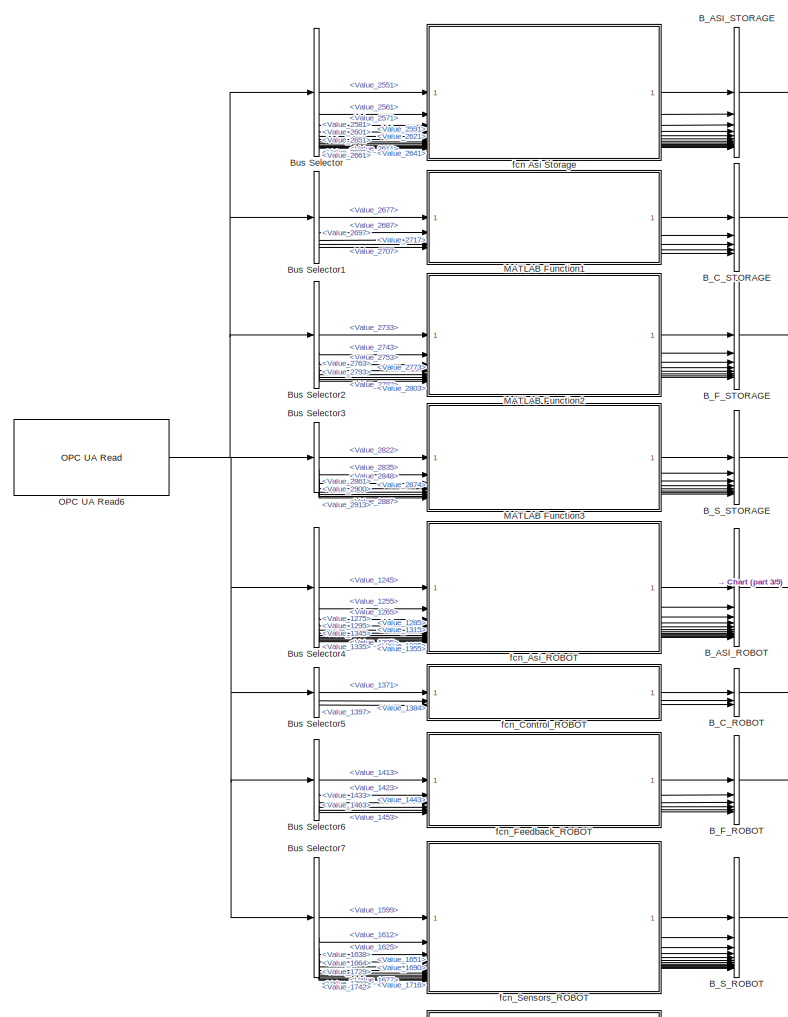
[diagram: root canvas - part 1/5, top left region]
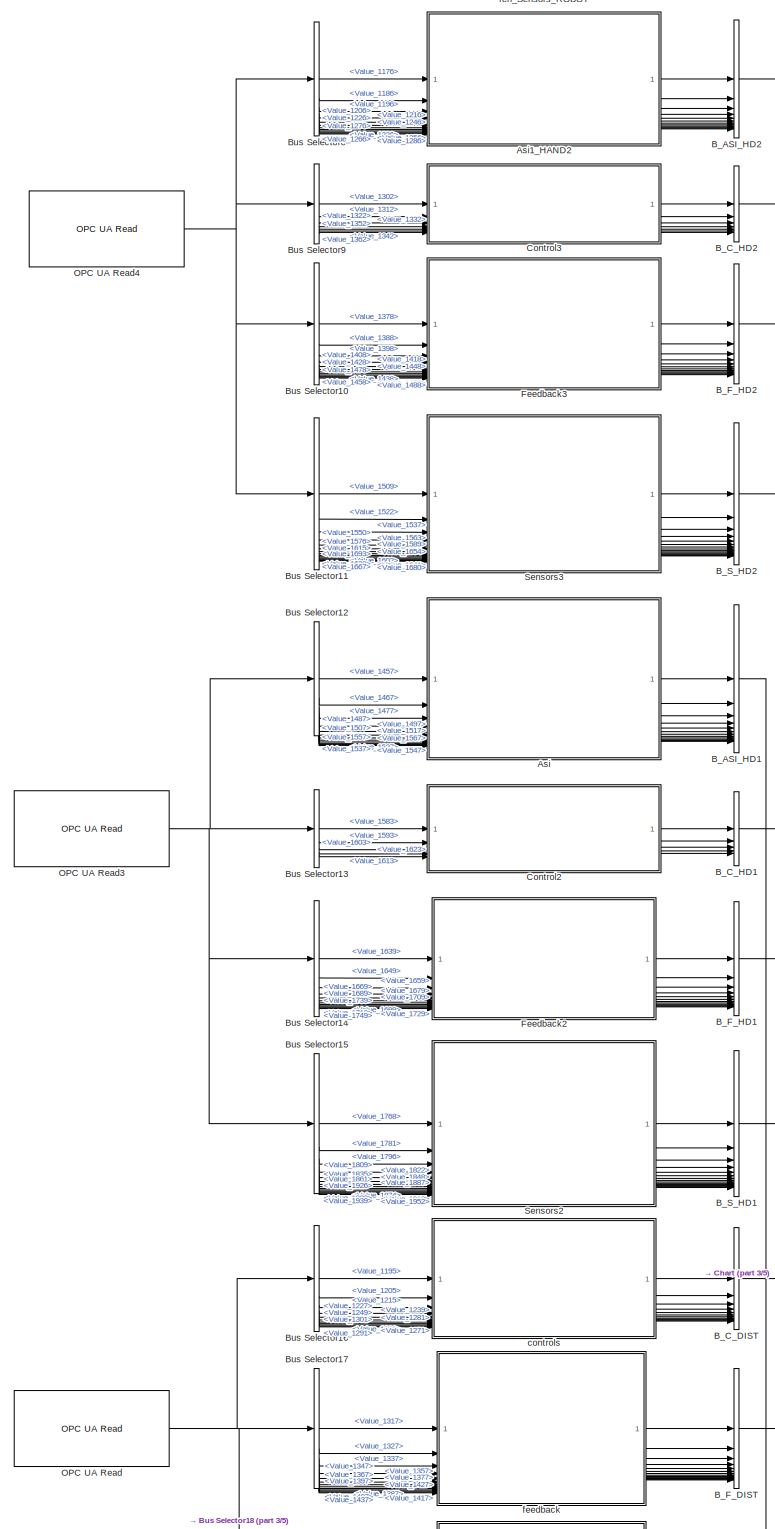
[diagram: root canvas - part 2/5, middle left region]
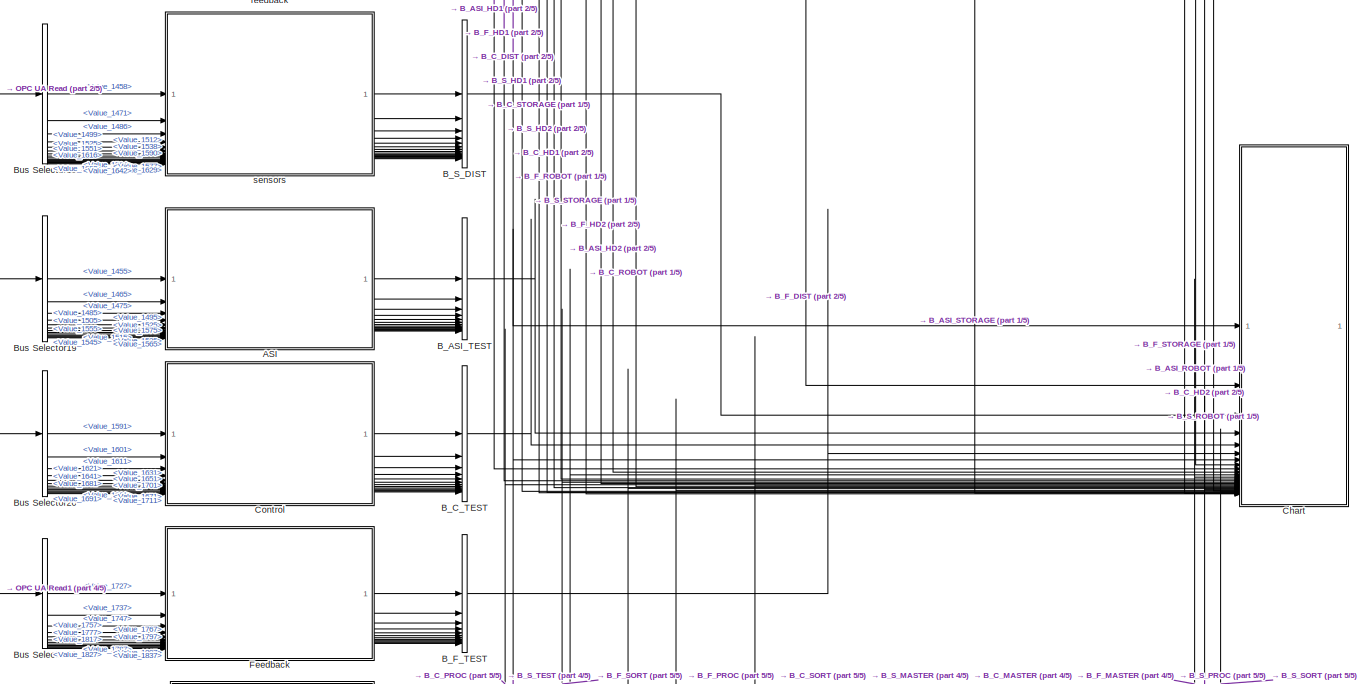
[diagram: root canvas - part 3/5, full width, middle band]
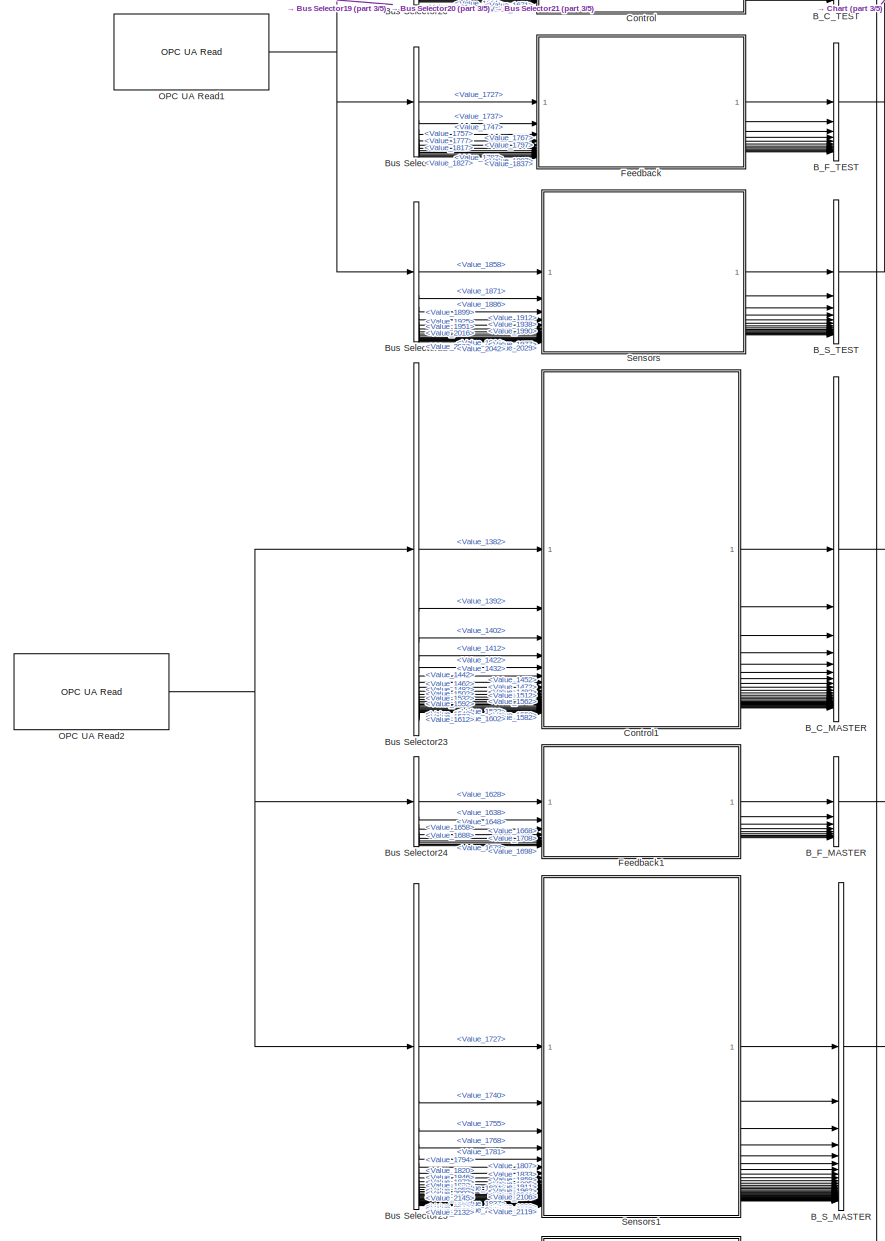
[diagram: root canvas - part 4/5, bottom left region]
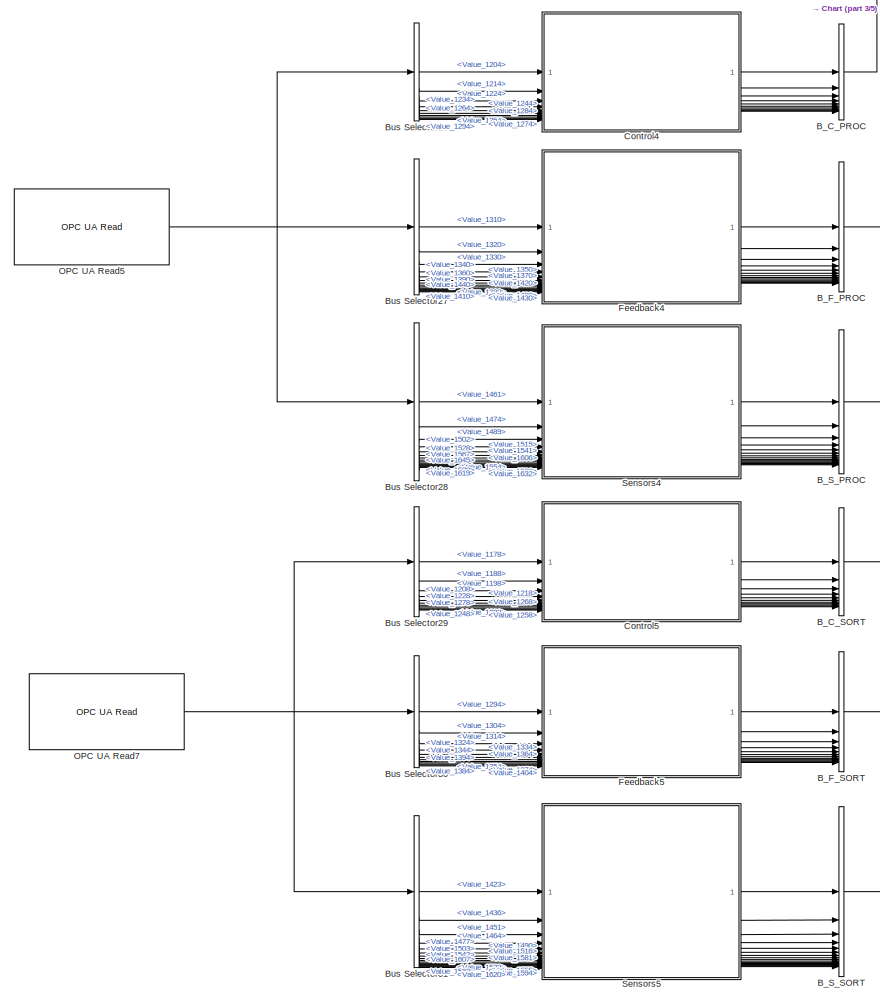
[diagram: root canvas - part 5/5, bottom left region]
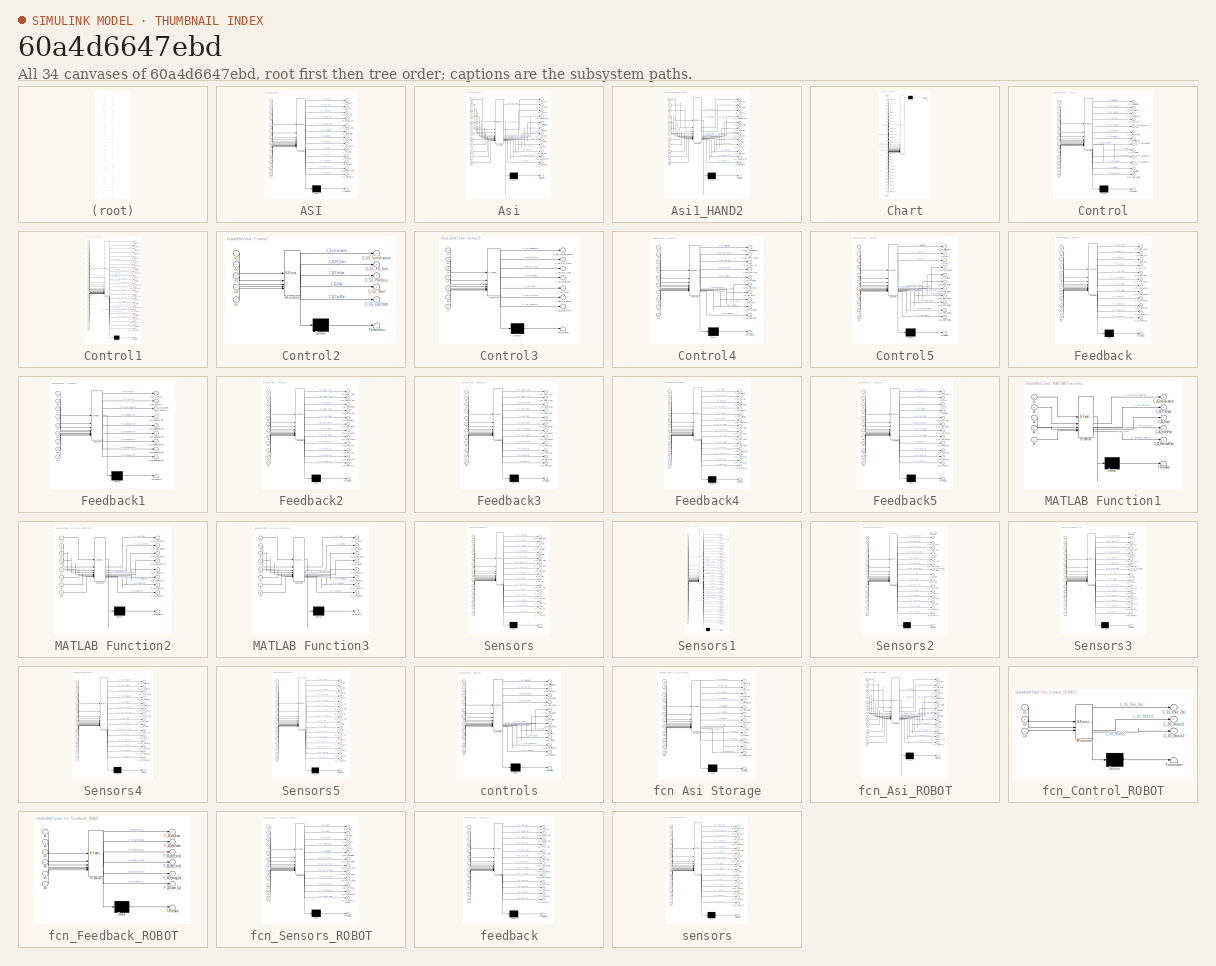
[diagram: thumbnail index - all 34 canvases of the model, root first then tree order]
MODEL slx_60a4d6647ebd
KIND model
CONFIG AbsTol = auto
CONFIG EnableMultiTasking = off
CONFIG FixedStep = auto
CONFIG MaxStep = 0.1
CONFIG MinStep = auto
CONFIG PreLoadFcn = load("BUS_CONFIG.mat")
CONFIG RelTol = 1e-2
CONFIG SampleTimeConstraint = Unconstrained
CONFIG SolverName = ode23tb
CONFIG StartTime = 0.0
CONFIG StopTime = inf
BLOCK [SubSystem] ASI
  ErrorFcn = Stateflow.Translate.translate
  PermitHierarchicalResolution = ExplicitOnly
  SFBlockType = MATLAB Function
  TreatAsAtomicUnit = on
BLOCK [Demux] ASI/ Demux 
  Outputs = 1
BLOCK [S-Function] ASI/ SFunction 
  EnableBusSupport = off
  FunctionName = sf_sfun
  PortCounts = [13 14]
  SFcnIsStateOwnerBlock = off
  SFunctionDeploymentMode = off
  Tag = Stateflow S-Function 3
BLOCK [Terminator] ASI/ Terminator 
BLOCK [Outport] ASI/A_73_TestCartID
  Port = 6
BLOCK [Outport] ASI/A_74_CRoute_In
  Port = 13
BLOCK [Outport] ASI/A_74_CRoute_In80
  Port = 5
BLOCK [Outport] ASI/A_74_CRoute_Out
  Port = 4
BLOCK [Outport] ASI/A_74_Cart_Full
  Port = 3
BLOCK [Outport] ASI/A_74_Cart_Next
  Port = 8
BLOCK [Outport] ASI/A_74_Cart_Stat
  Port = 7
BLOCK [Outport] ASI/A_74_Count
  Port = 10
BLOCK [Outport] ASI/A_74_No_Cart
  Port = 2
BLOCK [Outport] ASI/A_74_Optic
  Port = 9
BLOCK [Outport] ASI/A_74_Pist_Bck
  Port = 11
BLOCK [Outport] ASI/A_74_Release_FB
  Port = 12
BLOCK [Outport] ASI/A_74_Request
BLOCK [Inport] ASI/u1
BLOCK [Inport] ASI/u10
  Port = 10
BLOCK [Inport] ASI/u11
  Port = 11
BLOCK [Inport] ASI/u12
  Port = 12
BLOCK [Inport] ASI/u13
  Port = 13
BLOCK [Inport] ASI/u2
  Port = 2
BLOCK [Inport] ASI/u3
  Port = 3
BLOCK [Inport] ASI/u4
  Port = 4
BLOCK [Inport] ASI/u5
  Port = 5
BLOCK [Inport] ASI/u6
  Port = 6
BLOCK [Inport] ASI/u7
  Port = 7
BLOCK [Inport] ASI/u8
  Port = 8
BLOCK [Inport] ASI/u9
  Port = 9
BLOCK [SubSystem] Asi
  ErrorFcn = Stateflow.Translate.translate
  PermitHierarchicalResolution = ExplicitOnly
  SFBlockType = MATLAB Function
  TreatAsAtomicUnit = on
BLOCK [Demux] Asi/ Demux 
  Outputs = 1
BLOCK [S-Function] Asi/ SFunction 
  EnableBusSupport = off
  FunctionName = sf_sfun
  PortCounts = [12 13]
  SFcnIsStateOwnerBlock = off
  SFunctionDeploymentMode = off
  Tag = Stateflow S-Function 12
BLOCK [Terminator] Asi/ Terminator 
BLOCK [Outport] Asi/A_53_SortCartID
  Port = 5
BLOCK [Outport] Asi/A_54_CRoute_In
  Port = 12
BLOCK [Outport] Asi/A_54_CRoute_Out
  Port = 4
BLOCK [Outport] Asi/A_54_Cart_Full
  Port = 3
BLOCK [Outport] Asi/A_54_Cart_Next
  Port = 7
BLOCK [Outport] Asi/A_54_Cart_Stat
  Port = 6
BLOCK [Outport] Asi/A_54_Count
  Port = 9
BLOCK [Outport] Asi/A_54_No_Cart
  Port = 2
BLOCK [Outport] Asi/A_54_Optic
  Port = 8
BLOCK [Outport] Asi/A_54_Pist_Bck
  Port = 10
BLOCK [Outport] Asi/A_54_Release_FB
  Port = 11
BLOCK [Outport] Asi/A_54_Request
BLOCK [Inport] Asi/u1
BLOCK [Inport] Asi/u10
  Port = 10
BLOCK [Inport] Asi/u11
  Port = 11
BLOCK [Inport] Asi/u12
  Port = 12
BLOCK [Inport] Asi/u2
  Port = 2
BLOCK [Inport] Asi/u3
  Port = 3
BLOCK [Inport] Asi/u4
  Port = 4
BLOCK [Inport] Asi/u5
  Port = 5
BLOCK [Inport] Asi/u6
  Port = 6
BLOCK [Inport] Asi/u7
  Port = 7
BLOCK [Inport] Asi/u8
  Port = 8
BLOCK [Inport] Asi/u9
  Port = 9
BLOCK [SubSystem] Asi1_HAND2
  ErrorFcn = Stateflow.Translate.translate
  PermitHierarchicalResolution = ExplicitOnly
  SFBlockType = MATLAB Function
  TreatAsAtomicUnit = on
BLOCK [Demux] Asi1_HAND2/ Demux 
  Outputs = 1
BLOCK [S-Function] Asi1_HAND2/ SFunction 
  EnableBusSupport = off
  FunctionName = sf_sfun
  PortCounts = [12 13]
  SFcnIsStateOwnerBlock = off
  SFunctionDeploymentMode = off
  Tag = Stateflow S-Function 16
BLOCK [Terminator] Asi1_HAND2/ Terminator 
BLOCK [Outport] Asi1_HAND2/A_93_ProcCartID
  Port = 5
BLOCK [Outport] Asi1_HAND2/A_94_CRoute_In
  Port = 12
BLOCK [Outport] Asi1_HAND2/A_94_CRoute_Out
  Port = 4
BLOCK [Outport] Asi1_HAND2/A_94_Cart_Full
  Port = 3
BLOCK [Outport] Asi1_HAND2/A_94_Cart_Next
  Port = 7
BLOCK [Outport] Asi1_HAND2/A_94_Cart_Stat
  Port = 6
BLOCK [Outport] Asi1_HAND2/A_94_Count
  Port = 9
BLOCK [Outport] Asi1_HAND2/A_94_No_Cart
  Port = 2
BLOCK [Outport] Asi1_HAND2/A_94_Optic
  Port = 8
BLOCK [Outport] Asi1_HAND2/A_94_Pist_Bck
  Port = 10
BLOCK [Outport] Asi1_HAND2/A_94_Release_FB
  Port = 11
BLOCK [Outport] Asi1_HAND2/A_94_Request
BLOCK [Inport] Asi1_HAND2/u1
BLOCK [Inport] Asi1_HAND2/u10
  Port = 10
BLOCK [Inport] Asi1_HAND2/u11
  Port = 11
BLOCK [Inport] Asi1_HAND2/u12
  Port = 12
BLOCK [Inport] Asi1_HAND2/u2
  Port = 2
BLOCK [Inport] Asi1_HAND2/u3
  Port = 3
BLOCK [Inport] Asi1_HAND2/u4
  Port = 4
BLOCK [Inport] Asi1_HAND2/u5
  Port = 5
BLOCK [Inport] Asi1_HAND2/u6
  Port = 6
BLOCK [Inport] Asi1_HAND2/u7
  Port = 7
BLOCK [Inport] Asi1_HAND2/u8
  Port = 8
BLOCK [Inport] Asi1_HAND2/u9
  Port = 9
BLOCK [BusCreator] B_ASI_HD1
  DisplayOption = bar
  InheritFromInputs = on
  Inputs = 12
  NameLocation = right
  NonVirtualBus = on
  OutDataTypeStr = Bus: B_ASI_HD1
BLOCK [BusCreator] B_ASI_HD2
  DisplayOption = bar
  InheritFromInputs = on
  Inputs = 12
  NameLocation = right
  NonVirtualBus = on
  OutDataTypeStr = Bus: B_ASI_HD2
BLOCK [BusCreator] B_ASI_ROBOT
  DisplayOption = bar
  InheritFromInputs = on
  Inputs = 12
  NameLocation = right
  NonVirtualBus = on
  OutDataTypeStr = Bus: B_ASI_ROBOT
BLOCK [BusCreator] B_ASI_STORAGE
  DisplayOption = bar
  InheritFromInputs = on
  Inputs = 12
  NameLocation = right
  NonVirtualBus = on
  OutDataTypeStr = Bus: B_ASI_STORAGE
BLOCK [BusCreator] B_ASI_TEST
  DisplayOption = bar
  InheritFromInputs = on
  Inputs = 13
  NameLocation = right
  NonVirtualBus = on
  OutDataTypeStr = Bus: B_ASI_TEST
BLOCK [BusCreator] B_C_DIST
  DisplayOption = bar
  InheritFromInputs = on
  Inputs = 11
  NameLocation = right
  NonVirtualBus = on
  OutDataTypeStr = Bus: B_C_DIST
BLOCK [BusCreator] B_C_HD1
  DisplayOption = bar
  InheritFromInputs = on
  Inputs = 5
  NameLocation = right
  NonVirtualBus = on
  OutDataTypeStr = Bus: B_C_HD1
BLOCK [BusCreator] B_C_HD2
  DisplayOption = bar
  InheritFromInputs = on
  Inputs = 7
  NameLocation = right
  NonVirtualBus = on
  OutDataTypeStr = Bus: B_C_HD2
BLOCK [BusCreator] B_C_MASTER
  DisplayOption = bar
  InheritFromInputs = on
  Inputs = 24
  NameLocation = right
  NonVirtualBus = on
  OutDataTypeStr = Bus: B_C_MASTER
BLOCK [BusCreator] B_C_PROC
  DisplayOption = bar
  InheritFromInputs = on
  Inputs = 10
  NameLocation = right
  NonVirtualBus = on
  OutDataTypeStr = Bus: B_C_PROC
BLOCK [BusCreator] B_C_ROBOT
  DisplayOption = bar
  InheritFromInputs = on
  Inputs = 3
  NameLocation = right
  NonVirtualBus = on
  OutDataTypeStr = Bus: B_C_ROBOT
BLOCK [BusCreator] B_C_SORT
  DisplayOption = bar
  InheritFromInputs = on
  Inputs = 11
  NameLocation = right
  NonVirtualBus = on
  OutDataTypeStr = Bus: B_C_SORT
BLOCK [BusCreator] B_C_STORAGE
  DisplayOption = bar
  InheritFromInputs = on
  Inputs = 5
  NameLocation = right
  NonVirtualBus = on
  OutDataTypeStr = Bus: B_C_STORAGE
BLOCK [BusCreator] B_C_TEST
  DisplayOption = bar
  InheritFromInputs = on
  Inputs = 13
  NameLocation = right
  NonVirtualBus = on
  OutDataTypeStr = Bus: B_C_TEST
BLOCK [BusCreator] B_F_DIST
  DisplayOption = bar
  InheritFromInputs = on
  Inputs = 13
  NameLocation = right
  NonVirtualBus = on
  OutDataTypeStr = Bus: B_F_DIST
BLOCK [BusCreator] B_F_HD1
  DisplayOption = bar
  InheritFromInputs = on
  Inputs = 12
  NameLocation = right
  NonVirtualBus = on
  OutDataTypeStr = Bus: B_F_HD1
BLOCK [BusCreator] B_F_HD2
  DisplayOption = bar
  InheritFromInputs = on
  Inputs = 12
  NameLocation = right
  NonVirtualBus = on
  OutDataTypeStr = Bus: B_F_HD2
BLOCK [BusCreator] B_F_MASTER
  DisplayOption = bar
  InheritFromInputs = on
  Inputs = 9
  NameLocation = right
  NonVirtualBus = on
  OutDataTypeStr = Bus: B_F_MASTER
BLOCK [BusCreator] B_F_PROC
  DisplayOption = bar
  InheritFromInputs = on
  Inputs = 14
  NameLocation = right
  NonVirtualBus = on
  OutDataTypeStr = Bus: B_F_PROC
BLOCK [BusCreator] B_F_ROBOT
  DisplayOption = bar
  InheritFromInputs = on
  Inputs = 6
  NameLocation = right
  NonVirtualBus = on
  OutDataTypeStr = Bus: B_F_ROBOT
BLOCK [BusCreator] B_F_SORT
  DisplayOption = bar
  InheritFromInputs = on
  Inputs = 12
  NameLocation = right
  NonVirtualBus = on
  OutDataTypeStr = Bus: B_F_SORT
BLOCK [BusCreator] B_F_STORAGE
  DisplayOption = bar
  InheritFromInputs = on
  Inputs = 8
  NameLocation = right
  NonVirtualBus = on
  OutDataTypeStr = Bus: B_F_STORAGE
BLOCK [BusCreator] B_F_TEST
  DisplayOption = bar
  InheritFromInputs = on
  Inputs = 12
  NameLocation = right
  NonVirtualBus = on
  OutDataTypeStr = Bus: B_F_TEST
BLOCK [BusCreator] B_S_DIST
  DisplayOption = bar
  InheritFromInputs = on
  Inputs = 15
  NameLocation = right
  NonVirtualBus = on
  OutDataTypeStr = Bus: B_S_DIST
BLOCK [BusCreator] B_S_HD1
  DisplayOption = bar
  InheritFromInputs = on
  Inputs = 15
  NameLocation = right
  NonVirtualBus = on
  OutDataTypeStr = Bus: B_S_HD1
BLOCK [BusCreator] B_S_HD2
  DisplayOption = bar
  InheritFromInputs = on
  Inputs = 15
  NameLocation = right
  NonVirtualBus = on
  OutDataTypeStr = Bus: B_S_HD2
BLOCK [BusCreator] B_S_MASTER
  DisplayOption = bar
  InheritFromInputs = on
  Inputs = 33
  NameLocation = right
  NonVirtualBus = on
  OutDataTypeStr = Bus: B_S_MASTER
BLOCK [BusCreator] B_S_PROC
  DisplayOption = bar
  InheritFromInputs = on
  Inputs = 15
  NameLocation = right
  NonVirtualBus = on
  OutDataTypeStr = Bus: B_S_PROC
BLOCK [BusCreator] B_S_ROBOT
  DisplayOption = bar
  InheritFromInputs = on
  Inputs = 12
  NameLocation = right
  NonVirtualBus = on
  OutDataTypeStr = Bus: B_S_ROBOT
BLOCK [BusCreator] B_S_SORT
  DisplayOption = bar
  InheritFromInputs = on
  Inputs = 16
  NameLocation = right
  NonVirtualBus = on
  OutDataTypeStr = Bus: B_S_SORT
BLOCK [BusCreator] B_S_STORAGE
  DisplayOption = bar
  InheritFromInputs = on
  Inputs = 8
  NameLocation = right
  NonVirtualBus = on
  OutDataTypeStr = Bus: B_S_STORAGE
BLOCK [BusCreator] B_S_TEST
  DisplayOption = bar
  InheritFromInputs = on
  Inputs = 15
  NameLocation = right
  NonVirtualBus = on
  OutDataTypeStr = Bus: B_S_TEST
BLOCK [BusSelector] Bus Selector
  OutputSignals = Value_2551,Value_2561,Value_2571,Value_2581,Value_2591,Value_2601,Value_2611,Value_2621,Value_2631,Value_2641,Value_2651,Value_2661
BLOCK [BusSelector] Bus Selector1
  OutputSignals = Value_2677,Value_2687,Value_2697,Value_2707,Value_2717
BLOCK [BusSelector] Bus Selector10
  OutputSignals = Value_1378,Value_1388,Value_1398,Value_1408,Value_1418,Value_1428,Value_1438,Value_1448,Value_1458,Value_1468,Value_1478,Value_1488
BLOCK [BusSelector] Bus Selector11
  OutputSignals = Value_1509,Value_1522,Value_1537,Value_1550,Value_1563,Value_1576,Value_1589,Value_1602,Value_1615,Value_1628,Value_1641,Value_1654,Value_1667,Value_1680,Value_1693
BLOCK [BusSelector] Bus Selector12
  OutputSignals = Value_1457,Value_1467,Value_1477,Value_1487,Value_1497,Value_1507,Value_1517,Value_1527,Value_1537,Value_1547,Value_1557,Value_1567
BLOCK [BusSelector] Bus Selector13
  OutputSignals = Value_1583,Value_1593,Value_1603,Value_1613,Value_1623
BLOCK [BusSelector] Bus Selector14
  OutputSignals = Value_1639,Value_1649,Value_1659,Value_1669,Value_1679,Value_1689,Value_1699,Value_1709,Value_1719,Value_1729,Value_1739,Value_1749
BLOCK [BusSelector] Bus Selector15
  OutputSignals = Value_1768,Value_1781,Value_1796,Value_1809,Value_1822,Value_1835,Value_1848,Value_1861,Value_1874,Value_1887,Value_1900,Value_1913,Value_1926,Value_1939,Value_1952
BLOCK [BusSelector] Bus Selector16
  OutputSignals = Value_1195,Value_1205,Value_1215,Value_1227,Value_1239,Value_1249,Value_1261,Value_1271,Value_1281,Value_1291,Value_1301
BLOCK [BusSelector] Bus Selector17
  OutputSignals = Value_1317,Value_1327,Value_1337,Value_1347,Value_1357,Value_1367,Value_1377,Value_1387,Value_1397,Value_1407,Value_1417,Value_1427,Value_1437
BLOCK [BusSelector] Bus Selector18
  OutputSignals = Value_1458,Value_1471,Value_1486,Value_1499,Value_1512,Value_1525,Value_1538,Value_1551,Value_1564,Value_1577,Value_1590,Value_1603,Value_1616,Value_1629,Value_1642
BLOCK [BusSelector] Bus Selector19
  OutputSignals = Value_1455,Value_1465,Value_1475,Value_1485,Value_1495,Value_1505,Value_1515,Value_1525,Value_1535,Value_1545,Value_1555,Value_1565,Value_1575
BLOCK [BusSelector] Bus Selector2
  OutputSignals = Value_2733,Value_2743,Value_2753,Value_2763,Value_2773,Value_2783,Value_2793,Value_2803
BLOCK [BusSelector] Bus Selector20
  OutputSignals = Value_1591,Value_1601,Value_1611,Value_1621,Value_1631,Value_1641,Value_1651,Value_1661,Value_1671,Value_1681,Value_1691,Value_1701,Value_1711
BLOCK [BusSelector] Bus Selector21
  OutputSignals = Value_1727,Value_1737,Value_1747,Value_1757,Value_1767,Value_1777,Value_1787,Value_1797,Value_1807,Value_1817,Value_1827,Value_1837
BLOCK [BusSelector] Bus Selector22
  OutputSignals = Value_1858,Value_1871,Value_1886,Value_1899,Value_1912,Value_1925,Value_1938,Value_1951,Value_1964,Value_1977,Value_1990,Value_2003,Value_2016,Value_2029,Value_2042
BLOCK [BusSelector] Bus Selector23
  OutputSignals = Value_1382,Value_1392,Value_1402,Value_1412,Value_1422,Value_1432,Value_1442,Value_1452,Value_1462,Value_1472,Value_1482,Value_1492,Value_1502,Value_1512,Value_1522,Value_1532,Value_1542,Value_1552,Value_1562,Value_1572,Value_1582,Value_1592,Value_1602,Value_1612
BLOCK [BusSelector] Bus Selector24
  OutputSignals = Value_1628,Value_1638,Value_1648,Value_1658,Value_1668,Value_1678,Value_1688,Value_1698,Value_1708
BLOCK [BusSelector] Bus Selector25
  OutputSignals = Value_1727,Value_1740,Value_1755,Value_1768,Value_1781,Value_1794,Value_1807,Value_1820,Value_1833,Value_1846,Value_1859,Value_1872,Value_1885,Value_1898,Value_1911,Value_1924,Value_1937,Value_1950,Value_1963,Value_1976,Value_1989,Value_2002,Value_2015,Value_2028,Value_2041,Value_2054,Value_2067,Value_2080,Value_2093,Value_2106,Value_2119,Value_2132,Value_2145
BLOCK [BusSelector] Bus Selector26
  OutputSignals = Value_1204,Value_1214,Value_1224,Value_1234,Value_1244,Value_1254,Value_1264,Value_1274,Value_1284,Value_1294
BLOCK [BusSelector] Bus Selector27
  OutputSignals = Value_1310,Value_1320,Value_1330,Value_1340,Value_1350,Value_1360,Value_1370,Value_1380,Value_1390,Value_1400,Value_1410,Value_1420,Value_1430,Value_1440
BLOCK [BusSelector] Bus Selector28
  OutputSignals = Value_1461,Value_1474,Value_1489,Value_1502,Value_1515,Value_1528,Value_1541,Value_1554,Value_1567,Value_1580,Value_1593,Value_1606,Value_1619,Value_1632,Value_1645
BLOCK [BusSelector] Bus Selector29
  OutputSignals = Value_1178,Value_1188,Value_1198,Value_1208,Value_1218,Value_1228,Value_1238,Value_1248,Value_1258,Value_1268,Value_1278
BLOCK [BusSelector] Bus Selector3
  OutputSignals = Value_2822,Value_2835,Value_2848,Value_2861,Value_2874,Value_2887,Value_2900,Value_2913
BLOCK [BusSelector] Bus Selector30
  OutputSignals = Value_1294,Value_1304,Value_1314,Value_1324,Value_1334,Value_1344,Value_1354,Value_1364,Value_1374,Value_1384,Value_1394,Value_1404
BLOCK [BusSelector] Bus Selector31
  OutputSignals = Value_1423,Value_1436,Value_1451,Value_1464,Value_1477,Value_1490,Value_1503,Value_1516,Value_1529,Value_1542,Value_1555,Value_1568,Value_1581,Value_1594,Value_1607,Value_1620
BLOCK [BusSelector] Bus Selector4
  OutputSignals = Value_1245,Value_1255,Value_1265,Value_1275,Value_1285,Value_1295,Value_1305,Value_1315,Value_1325,Value_1335,Value_1345,Value_1355
BLOCK [BusSelector] Bus Selector5
  OutputSignals = Value_1371,Value_1384,Value_1397
BLOCK [BusSelector] Bus Selector6
  OutputSignals = Value_1413,Value_1423,Value_1433,Value_1443,Value_1453,Value_1463
BLOCK [BusSelector] Bus Selector7
  OutputSignals = Value_1599,Value_1612,Value_1625,Value_1638,Value_1651,Value_1664,Value_1677,Value_1690,Value_1703,Value_1716,Value_1729,Value_1742
BLOCK [BusSelector] Bus Selector8
  OutputSignals = Value_1176,Value_1186,Value_1196,Value_1206,Value_1216,Value_1226,Value_1236,Value_1246,Value_1256,Value_1266,Value_1276,Value_1286
BLOCK [BusSelector] Bus Selector9
  OutputSignals = Value_1302,Value_1312,Value_1322,Value_1332,Value_1342,Value_1352,Value_1362
BLOCK [SubSystem] Chart
  ErrorFcn = Stateflow.Translate.translate
  PermitHierarchicalResolution = ExplicitOnly
  PortSchema = {"entries":[{"content":{"sides":[{"content":{"connectorIds":["In2","In1","In3","In4","In6","In5","In7","In8","In9","In10","In11","In12","In13","In14","In15","In16","In17","In18","In19","In20","In21","In22","In23","In24","In25","In26","In27","In28","In29","In30","In31","In32"]},"type":"ConnectorPlacement.EquallySpacedRectSide","uuid":"e54bf7d4-7c7d-41d9-a8b8-f479ac319a99"},{"content":{"side":"RIGHT...<+407ch>
  SFBlockType = Chart
  TreatAsAtomicUnit = on
BLOCK [Demux] Chart/ Demux 
  Outputs = 1
BLOCK [S-Function] Chart/ SFunction 
  EnableBusSupport = off
  FunctionName = sf_sfun
  PortCounts = [32 1]
  SFcnIsStateOwnerBlock = off
  SFunctionDeploymentMode = off
  Tag = Stateflow S-Function 8
BLOCK [Terminator] Chart/ Terminator 
BLOCK [Inport] Chart/AS_i_30
  Port = 8
BLOCK [Inport] Chart/AS_i_40
  Port = 30
BLOCK [Inport] Chart/AS_i_50
  Port = 9
BLOCK [Inport] Chart/AS_i_70
  Port = 4
BLOCK [Inport] Chart/AS_i_90
  Port = 10
BLOCK [Inport] Chart/Actuators_100
  Port = 11
BLOCK [Inport] Chart/Actuators_20
  Port = 12
BLOCK [Inport] Chart/Actuators_30
  Port = 13
BLOCK [Inport] Chart/Actuators_40
  Port = 31
BLOCK [Inport] Chart/Actuators_50
  Port = 14
BLOCK [Inport] Chart/Actuators_60
  Port = 15
BLOCK [Inport] Chart/Actuators_70
  Port = 6
BLOCK [Inport] Chart/Actuators_80
  Port = 2
BLOCK [Inport] Chart/Actuators_90
  Port = 16
BLOCK [Inport] Chart/Control_100
  Port = 17
BLOCK [Inport] Chart/Control_20
  Port = 18
BLOCK [Inport] Chart/Control_30
  Port = 19
BLOCK [Inport] Chart/Control_40
  Port = 29
BLOCK [Inport] Chart/Control_50
  Port = 20
BLOCK [Inport] Chart/Control_60
  Port = 21
BLOCK [Inport] Chart/Control_70
  Port = 5
BLOCK [Inport] Chart/Control_80
BLOCK [Inport] Chart/Control_90
  Port = 22
BLOCK [Inport] Chart/Sensors_100
  Port = 23
BLOCK [Inport] Chart/Sensors_20
  Port = 24
BLOCK [Inport] Chart/Sensors_30
  Port = 25
BLOCK [Inport] Chart/Sensors_40
  Port = 32
BLOCK [Inport] Chart/Sensors_50
  Port = 26
BLOCK [Inport] Chart/Sensors_60
  Port = 27
BLOCK [Inport] Chart/Sensors_70
  Port = 7
BLOCK [Inport] Chart/Sensors_80
  Port = 3
BLOCK [Inport] Chart/Sensors_90
  Port = 28
BLOCK [SubSystem] Control
  ErrorFcn = Stateflow.Translate.translate
  PermitHierarchicalResolution = ExplicitOnly
  SFBlockType = MATLAB Function
  TreatAsAtomicUnit = on
BLOCK [Demux] Control/ Demux 
  Outputs = 1
BLOCK [S-Function] Control/ SFunction 
  EnableBusSupport = off
  FunctionName = sf_sfun
  PortCounts = [13 14]
  SFcnIsStateOwnerBlock = off
  SFunctionDeploymentMode = off
  Tag = Stateflow S-Function 5
BLOCK [Terminator] Control/ Terminator 
BLOCK [Outport] Control/C_72_Profibus
  Port = 9
BLOCK [Outport] Control/C_75_ID_Delivery1
  Port = 2
BLOCK [Outport] Control/C_75_ID_Delivery2
  Port = 3
BLOCK [Outport] Control/C_75_Identified
  Port = 12
BLOCK [Outport] Control/C_75_Identified80
  Port = 7
BLOCK [Outport] Control/C_75_Initialization
BLOCK [Outport] Control/C_75_Part_Del
  Port = 4
BLOCK [Outport] Control/C_75_RQ_Delivery1
  Port = 10
BLOCK [Outport] Control/C_75_RQ_Delivery2
  Port = 11
BLOCK [Outport] Control/C_75_RQ_Part_Del
  Port = 5
BLOCK [Outport] Control/C_75_RQ_Wrong
  Port = 6
BLOCK [Outport] Control/C_75_Requested
  Port = 13
BLOCK [Outport] Control/C_75_Requested80
  Port = 8
BLOCK [Inport] Control/u1
BLOCK [Inport] Control/u10
  Port = 10
BLOCK [Inport] Control/u11
  Port = 11
BLOCK [Inport] Control/u12
  Port = 12
BLOCK [Inport] Control/u13
  Port = 13
BLOCK [Inport] Control/u2
  Port = 2
BLOCK [Inport] Control/u3
  Port = 3
BLOCK [Inport] Control/u4
  Port = 4
BLOCK [Inport] Control/u5
  Port = 5
BLOCK [Inport] Control/u6
  Port = 6
BLOCK [Inport] Control/u7
  Port = 7
BLOCK [Inport] Control/u8
  Port = 8
BLOCK [Inport] Control/u9
  Port = 9
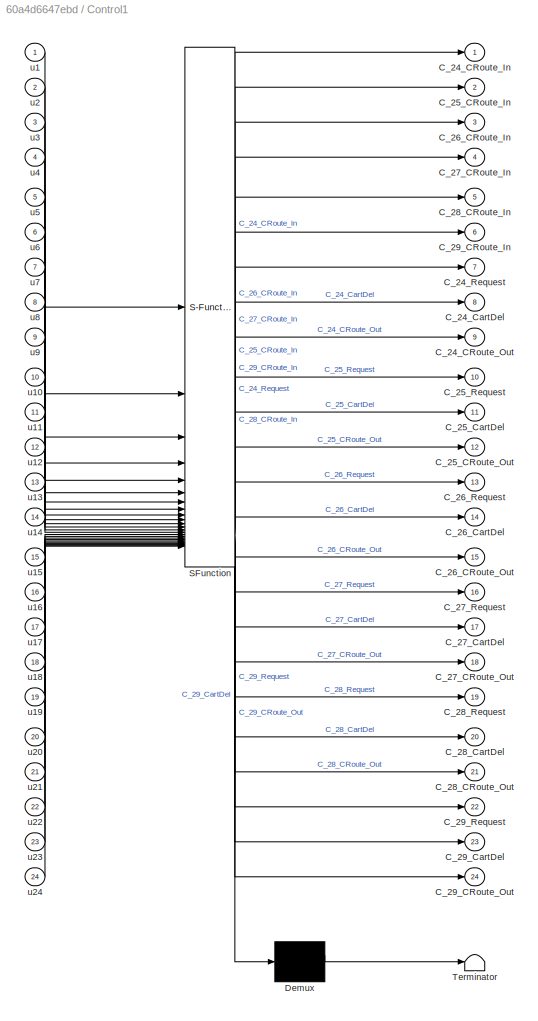
BLOCK [SubSystem] Control1
  ErrorFcn = Stateflow.Translate.translate
  PermitHierarchicalResolution = ExplicitOnly
  SFBlockType = MATLAB Function
  TreatAsAtomicUnit = on
BLOCK [Demux] Control1/ Demux 
  Outputs = 1
BLOCK [S-Function] Control1/ SFunction 
  EnableBusSupport = off
  FunctionName = sf_sfun
  PortCounts = [24 25]
  SFcnIsStateOwnerBlock = off
  SFunctionDeploymentMode = off
  Tag = Stateflow S-Function 9
BLOCK [Terminator] Control1/ Terminator 
BLOCK [Outport] Control1/C_24_CRoute_In
BLOCK [Outport] Control1/C_24_CRoute_Out
  Port = 9
BLOCK [Outport] Control1/C_24_CartDel
  Port = 8
BLOCK [Outport] Control1/C_24_Request
  Port = 7
BLOCK [Outport] Control1/C_25_CRoute_In
  Port = 2
BLOCK [Outport] Control1/C_25_CRoute_Out
  Port = 12
BLOCK [Outport] Control1/C_25_CartDel
  Port = 11
BLOCK [Outport] Control1/C_25_Request
  Port = 10
BLOCK [Outport] Control1/C_26_CRoute_In
  Port = 3
BLOCK [Outport] Control1/C_26_CRoute_Out
  Port = 15
BLOCK [Outport] Control1/C_26_CartDel
  Port = 14
BLOCK [Outport] Control1/C_26_Request
  Port = 13
BLOCK [Outport] Control1/C_27_CRoute_In
  Port = 4
BLOCK [Outport] Control1/C_27_CRoute_Out
  Port = 18
BLOCK [Outport] Control1/C_27_CartDel
  Port = 17
BLOCK [Outport] Control1/C_27_Request
  Port = 16
BLOCK [Outport] Control1/C_28_CRoute_In
  Port = 5
BLOCK [Outport] Control1/C_28_CRoute_Out
  Port = 21
BLOCK [Outport] Control1/C_28_CartDel
  Port = 20
BLOCK [Outport] Control1/C_28_Request
  Port = 19
BLOCK [Outport] Control1/C_29_CRoute_In
  Port = 6
BLOCK [Outport] Control1/C_29_CRoute_Out
  Port = 24
BLOCK [Outport] Control1/C_29_CartDel
  Port = 23
BLOCK [Outport] Control1/C_29_Request
  Port = 22
BLOCK [Inport] Control1/u1
BLOCK [Inport] Control1/u10
  Port = 10
BLOCK [Inport] Control1/u11
  Port = 11
BLOCK [Inport] Control1/u12
  Port = 12
BLOCK [Inport] Control1/u13
  Port = 13
BLOCK [Inport] Control1/u14
  Port = 14
BLOCK [Inport] Control1/u15
  Port = 15
BLOCK [Inport] Control1/u16
  Port = 16
BLOCK [Inport] Control1/u17
  Port = 17
BLOCK [Inport] Control1/u18
  Port = 18
BLOCK [Inport] Control1/u19
  Port = 19
BLOCK [Inport] Control1/u2
  Port = 2
BLOCK [Inport] Control1/u20
  Port = 20
BLOCK [Inport] Control1/u21
  Port = 21
BLOCK [Inport] Control1/u22
  Port = 22
BLOCK [Inport] Control1/u23
  Port = 23
BLOCK [Inport] Control1/u24
  Port = 24
BLOCK [Inport] Control1/u3
  Port = 3
BLOCK [Inport] Control1/u4
  Port = 4
BLOCK [Inport] Control1/u5
  Port = 5
BLOCK [Inport] Control1/u6
  Port = 6
BLOCK [Inport] Control1/u7
  Port = 7
BLOCK [Inport] Control1/u8
  Port = 8
BLOCK [Inport] Control1/u9
  Port = 9
BLOCK [SubSystem] Control2
  ErrorFcn = Stateflow.Translate.translate
  PermitHierarchicalResolution = ExplicitOnly
  SFBlockType = MATLAB Function
  TreatAsAtomicUnit = on
BLOCK [Demux] Control2/ Demux 
  Outputs = 1
BLOCK [S-Function] Control2/ SFunction 
  EnableBusSupport = off
  FunctionName = sf_sfun
  PortCounts = [5 6]
  SFcnIsStateOwnerBlock = off
  SFunctionDeploymentMode = off
  Tag = Stateflow S-Function 13
BLOCK [Terminator] Control2/ Terminator 
BLOCK [Outport] Control2/C_52_Profibus
  Port = 3
BLOCK [Outport] Control2/C_55_Cart2Del
  Port = 5
BLOCK [Outport] Control2/C_55_Initialization
BLOCK [Outport] Control2/C_55_PD_Sort
  Port = 2
BLOCK [Outport] Control2/C_55_Start
  Port = 4
BLOCK [Inport] Control2/u1
BLOCK [Inport] Control2/u2
  Port = 2
BLOCK [Inport] Control2/u3
  Port = 3
BLOCK [Inport] Control2/u4
  Port = 4
BLOCK [Inport] Control2/u5
  Port = 5
BLOCK [SubSystem] Control3
  ErrorFcn = Stateflow.Translate.translate
  PermitHierarchicalResolution = ExplicitOnly
  SFBlockType = MATLAB Function
  TreatAsAtomicUnit = on
BLOCK [Demux] Control3/ Demux 
  Outputs = 1
BLOCK [S-Function] Control3/ SFunction 
  EnableBusSupport = off
  FunctionName = sf_sfun
  PortCounts = [7 8]
  SFcnIsStateOwnerBlock = off
  SFunctionDeploymentMode = off
  Tag = Stateflow S-Function 17
BLOCK [Terminator] Control3/ Terminator 
BLOCK [Outport] Control3/C_92_Profibus
  Port = 4
BLOCK [Outport] Control3/C_95_Cart2Del
  Port = 6
BLOCK [Outport] Control3/C_95_Del2Cart
  Port = 7
BLOCK [Outport] Control3/C_95_Initialization
BLOCK [Outport] Control3/C_95_PD_Cart
  Port = 3
BLOCK [Outport] Control3/C_95_PD_Proc
  Port = 2
BLOCK [Outport] Control3/C_95_Start
  Port = 5
BLOCK [Inport] Control3/u1
BLOCK [Inport] Control3/u2
  Port = 2
BLOCK [Inport] Control3/u3
  Port = 3
BLOCK [Inport] Control3/u4
  Port = 4
BLOCK [Inport] Control3/u5
  Port = 5
BLOCK [Inport] Control3/u6
  Port = 6
BLOCK [Inport] Control3/u7
  Port = 7
BLOCK [SubSystem] Control4
  ErrorFcn = Stateflow.Translate.translate
  PermitHierarchicalResolution = ExplicitOnly
  SFBlockType = MATLAB Function
  TreatAsAtomicUnit = on
BLOCK [Demux] Control4/ Demux 
  Outputs = 1
BLOCK [S-Function] Control4/ SFunction 
  EnableBusSupport = off
  FunctionName = sf_sfun
  PortCounts = [10 11]
  SFcnIsStateOwnerBlock = off
  SFunctionDeploymentMode = off
  Tag = Stateflow S-Function 20
BLOCK [Terminator] Control4/ Terminator 
BLOCK [Outport] Control4/C_102_Profibus
  Port = 5
BLOCK [Outport] Control4/C_103_RQ_Turns
  Port = 6
BLOCK [Outport] Control4/C_105_Initialization
BLOCK [Outport] Control4/C_105_Part_ready
  Port = 2
BLOCK [Outport] Control4/C_105_Rotation
  Port = 10
BLOCK [Outport] Control4/C_105_Start
  Port = 7
BLOCK [Outport] Control4/C_105_Test
  Port = 8
BLOCK [Outport] Control4/C_105_TestDrill
  Port = 9
BLOCK [Outport] Control4/C_105_Test_Fail
  Port = 4
BLOCK [Outport] Control4/C_105_Test_Ok
  Port = 3
BLOCK [Inport] Control4/u1
BLOCK [Inport] Control4/u10
  Port = 10
BLOCK [Inport] Control4/u2
  Port = 2
BLOCK [Inport] Control4/u3
  Port = 3
BLOCK [Inport] Control4/u4
  Port = 4
BLOCK [Inport] Control4/u5
  Port = 5
BLOCK [Inport] Control4/u6
  Port = 6
BLOCK [Inport] Control4/u7
  Port = 7
BLOCK [Inport] Control4/u8
  Port = 8
BLOCK [Inport] Control4/u9
  Port = 9
BLOCK [SubSystem] Control5
  ErrorFcn = Stateflow.Translate.translate
  PermitHierarchicalResolution = ExplicitOnly
  SFBlockType = MATLAB Function
  TreatAsAtomicUnit = on
BLOCK [Demux] Control5/ Demux 
  Outputs = 1
BLOCK [S-Function] Control5/ SFunction 
  EnableBusSupport = off
  FunctionName = sf_sfun
  PortCounts = [11 12]
  SFcnIsStateOwnerBlock = off
  SFunctionDeploymentMode = off
  Tag = Stateflow S-Function 26
BLOCK [Terminator] Control5/ Terminator 
BLOCK [Outport] Control5/C_62_Profibus
  Port = 5
BLOCK [Outport] Control5/C_65_BRS_Output
  Port = 8
BLOCK [Outport] Control5/C_65_BSR_Output
  Port = 9
BLOCK [Outport] Control5/C_65_ID_1
  Port = 2
BLOCK [Outport] Control5/C_65_ID_2
  Port = 3
BLOCK [Outport] Control5/C_65_Initialization
BLOCK [Outport] Control5/C_65_Part_Sorted
  Port = 4
BLOCK [Outport] Control5/C_65_RBS_Output
  Port = 6
BLOCK [Outport] Control5/C_65_RSB_Output
  Port = 7
BLOCK [Outport] Control5/C_65_SBR_Output
  Port = 11
BLOCK [Outport] Control5/C_65_SRB_Output
  Port = 10
BLOCK [Inport] Control5/u1
BLOCK [Inport] Control5/u10
  Port = 10
BLOCK [Inport] Control5/u11
  Port = 11
BLOCK [Inport] Control5/u2
  Port = 2
BLOCK [Inport] Control5/u3
  Port = 3
BLOCK [Inport] Control5/u4
  Port = 4
BLOCK [Inport] Control5/u5
  Port = 5
BLOCK [Inport] Control5/u6
  Port = 6
BLOCK [Inport] Control5/u7
  Port = 7
BLOCK [Inport] Control5/u8
  Port = 8
BLOCK [Inport] Control5/u9
  Port = 9
BLOCK [SubSystem] Feedback
  ErrorFcn = Stateflow.Translate.translate
  PermitHierarchicalResolution = ExplicitOnly
  SFBlockType = MATLAB Function
  TreatAsAtomicUnit = on
BLOCK [Demux] Feedback/ Demux 
  Outputs = 1
BLOCK [S-Function] Feedback/ SFunction 
  EnableBusSupport = off
  FunctionName = sf_sfun
  PortCounts = [12 13]
  SFcnIsStateOwnerBlock = off
  SFunctionDeploymentMode = off
  Tag = Stateflow S-Function 6
BLOCK [Terminator] Feedback/ Terminator 
BLOCK [Outport] Feedback/F_72_Air_On
  Port = 4
BLOCK [Outport] Feedback/F_72_Eject_Part
  Port = 3
BLOCK [Outport] Feedback/F_72_Elev_Down
BLOCK [Outport] Feedback/F_72_Elev_Up
  Port = 2
BLOCK [Outport] Feedback/F_73_Led_Extra1
  Port = 7
BLOCK [Outport] Feedback/F_73_Led_Extra2
  Port = 8
BLOCK [Outport] Feedback/F_73_Led_Reset
  Port = 6
BLOCK [Outport] Feedback/F_73_Led_Start
  Port = 5
BLOCK [Outport] Feedback/F_73_Panel_O4
  Port = 9
BLOCK [Outport] Feedback/F_73_Panel_O5
  Port = 10
BLOCK [Outport] Feedback/F_73_Panel_O6
  Port = 11
BLOCK [Outport] Feedback/F_73_Panel_O7
  Port = 12
BLOCK [Inport] Feedback/u1
BLOCK [Inport] Feedback/u10
  Port = 10
BLOCK [Inport] Feedback/u11
  Port = 11
BLOCK [Inport] Feedback/u12
  Port = 12
BLOCK [Inport] Feedback/u2
  Port = 2
BLOCK [Inport] Feedback/u3
  Port = 3
BLOCK [Inport] Feedback/u4
  Port = 4
BLOCK [Inport] Feedback/u5
  Port = 5
BLOCK [Inport] Feedback/u6
  Port = 6
BLOCK [Inport] Feedback/u7
  Port = 7
BLOCK [Inport] Feedback/u8
  Port = 8
BLOCK [Inport] Feedback/u9
  Port = 9
BLOCK [SubSystem] Feedback1
  ErrorFcn = Stateflow.Translate.translate
  PermitHierarchicalResolution = ExplicitOnly
  SFBlockType = MATLAB Function
  TreatAsAtomicUnit = on
BLOCK [Demux] Feedback1/ Demux 
  Outputs = 1
BLOCK [S-Function] Feedback1/ SFunction 
  EnableBusSupport = off
  FunctionName = sf_sfun
  PortCounts = [9 10]
  SFcnIsStateOwnerBlock = off
  SFunctionDeploymentMode = off
  Tag = Stateflow S-Function 10
BLOCK [Terminator] Feedback1/ Terminator 
BLOCK [Outport] Feedback1/F_22_Led_Conveyor
  Port = 3
BLOCK [Outport] Feedback1/F_22_Led_Off
  Port = 2
BLOCK [Outport] Feedback1/F_22_Led_On
BLOCK [Outport] Feedback1/F_24_Release_FB
  Port = 4
BLOCK [Outport] Feedback1/F_25_Release_FB
  Port = 5
BLOCK [Outport] Feedback1/F_26_Release_FB
  Port = 6
BLOCK [Outport] Feedback1/F_27_Release_FB
  Port = 7
BLOCK [Outport] Feedback1/F_28_Release_FB
  Port = 8
BLOCK [Outport] Feedback1/F_29_Release_FB
  Port = 9
BLOCK [Inport] Feedback1/u1
BLOCK [Inport] Feedback1/u2
  Port = 2
BLOCK [Inport] Feedback1/u3
  Port = 3
BLOCK [Inport] Feedback1/u4
  Port = 4
BLOCK [Inport] Feedback1/u5
  Port = 5
BLOCK [Inport] Feedback1/u6
  Port = 6
BLOCK [Inport] Feedback1/u7
  Port = 7
BLOCK [Inport] Feedback1/u8
  Port = 8
BLOCK [Inport] Feedback1/u9
  Port = 9
BLOCK [SubSystem] Feedback2
  ErrorFcn = Stateflow.Translate.translate
  PermitHierarchicalResolution = ExplicitOnly
  SFBlockType = MATLAB Function
  TreatAsAtomicUnit = on
BLOCK [Demux] Feedback2/ Demux 
  Outputs = 1
BLOCK [S-Function] Feedback2/ SFunction 
  EnableBusSupport = off
  FunctionName = sf_sfun
  PortCounts = [12 13]
  SFcnIsStateOwnerBlock = off
  SFunctionDeploymentMode = off
  Tag = Stateflow S-Function 14
BLOCK [Terminator] Feedback2/ Terminator 
BLOCK [Outport] Feedback2/F_52_Claw_2_Cart
  Port = 2
BLOCK [Outport] Feedback2/F_52_Claw_2_Del
BLOCK [Outport] Feedback2/F_52_Claw_Down
  Port = 3
BLOCK [Outport] Feedback2/F_52_Close_Claw
  Port = 4
BLOCK [Outport] Feedback2/F_53_Led_Extra1
  Port = 7
BLOCK [Outport] Feedback2/F_53_Led_Extra2
  Port = 8
BLOCK [Outport] Feedback2/F_53_Led_Reset
  Port = 6
BLOCK [Outport] Feedback2/F_53_Led_Start
  Port = 5
BLOCK [Outport] Feedback2/F_53_Panel_O4
  Port = 9
BLOCK [Outport] Feedback2/F_53_Panel_O5
  Port = 10
BLOCK [Outport] Feedback2/F_53_Panel_O6
  Port = 11
BLOCK [Outport] Feedback2/F_53_Panel_O7
  Port = 12
BLOCK [Inport] Feedback2/u1
BLOCK [Inport] Feedback2/u10
  Port = 10
BLOCK [Inport] Feedback2/u11
  Port = 11
BLOCK [Inport] Feedback2/u12
  Port = 12
BLOCK [Inport] Feedback2/u2
  Port = 2
BLOCK [Inport] Feedback2/u3
  Port = 3
BLOCK [Inport] Feedback2/u4
  Port = 4
BLOCK [Inport] Feedback2/u5
  Port = 5
BLOCK [Inport] Feedback2/u6
  Port = 6
BLOCK [Inport] Feedback2/u7
  Port = 7
BLOCK [Inport] Feedback2/u8
  Port = 8
BLOCK [Inport] Feedback2/u9
  Port = 9
BLOCK [SubSystem] Feedback3
  ErrorFcn = Stateflow.Translate.translate
  PermitHierarchicalResolution = ExplicitOnly
  SFBlockType = MATLAB Function
  TreatAsAtomicUnit = on
BLOCK [Demux] Feedback3/ Demux 
  Outputs = 1
BLOCK [S-Function] Feedback3/ SFunction 
  EnableBusSupport = off
  FunctionName = sf_sfun
  PortCounts = [12 13]
  SFcnIsStateOwnerBlock = off
  SFunctionDeploymentMode = off
  Tag = Stateflow S-Function 18
BLOCK [Terminator] Feedback3/ Terminator 
BLOCK [Outport] Feedback3/F_92_Claw_2_Cart
BLOCK [Outport] Feedback3/F_92_Claw_2_Del
  Port = 2
BLOCK [Outport] Feedback3/F_92_Claw_Down
  Port = 3
BLOCK [Outport] Feedback3/F_92_Close_Claw
  Port = 4
BLOCK [Outport] Feedback3/F_93_Led_Extra1
  Port = 7
BLOCK [Outport] Feedback3/F_93_Led_Extra2
  Port = 8
BLOCK [Outport] Feedback3/F_93_Led_Reset
  Port = 6
BLOCK [Outport] Feedback3/F_93_Led_Start
  Port = 5
BLOCK [Outport] Feedback3/F_93_Panel_O4
  Port = 9
BLOCK [Outport] Feedback3/F_93_Panel_O5
  Port = 10
BLOCK [Outport] Feedback3/F_93_Panel_O6
  Port = 11
BLOCK [Outport] Feedback3/F_93_Panel_O7
  Port = 12
BLOCK [Inport] Feedback3/u1
BLOCK [Inport] Feedback3/u10
  Port = 10
BLOCK [Inport] Feedback3/u11
  Port = 11
BLOCK [Inport] Feedback3/u12
  Port = 12
BLOCK [Inport] Feedback3/u2
  Port = 2
BLOCK [Inport] Feedback3/u3
  Port = 3
BLOCK [Inport] Feedback3/u4
  Port = 4
BLOCK [Inport] Feedback3/u5
  Port = 5
BLOCK [Inport] Feedback3/u6
  Port = 6
BLOCK [Inport] Feedback3/u7
  Port = 7
BLOCK [Inport] Feedback3/u8
  Port = 8
BLOCK [Inport] Feedback3/u9
  Port = 9
BLOCK [SubSystem] Feedback4
  ErrorFcn = Stateflow.Translate.translate
  PermitHierarchicalResolution = ExplicitOnly
  SFBlockType = MATLAB Function
  TreatAsAtomicUnit = on
BLOCK [Demux] Feedback4/ Demux 
  Outputs = 1
BLOCK [S-Function] Feedback4/ SFunction 
  EnableBusSupport = off
  FunctionName = sf_sfun
  PortCounts = [14 15]
  SFcnIsStateOwnerBlock = off
  SFunctionDeploymentMode = off
  Tag = Stateflow S-Function 21
BLOCK [Terminator] Feedback4/ Terminator 
BLOCK [Outport] Feedback4/F_102_Drill_Down
  Port = 3
BLOCK [Outport] Feedback4/F_102_Drill_On
BLOCK [Outport] Feedback4/F_102_Drill_Pin
  Port = 5
BLOCK [Outport] Feedback4/F_102_Drill_Up
  Port = 4
BLOCK [Outport] Feedback4/F_102_RT_On
  Port = 2
BLOCK [Outport] Feedback4/F_102_Test_Pin
  Port = 6
BLOCK [Outport] Feedback4/F_103_Led_Extra1
  Port = 9
BLOCK [Outport] Feedback4/F_103_Led_Extra2
  Port = 10
BLOCK [Outport] Feedback4/F_103_Led_Reset
  Port = 8
BLOCK [Outport] Feedback4/F_103_Led_Start
  Port = 7
BLOCK [Outport] Feedback4/F_103_Panel_O4
  Port = 11
BLOCK [Outport] Feedback4/F_103_Panel_O5
  Port = 12
BLOCK [Outport] Feedback4/F_103_Panel_O6
  Port = 13
BLOCK [Outport] Feedback4/F_103_Panel_O7
  Port = 14
BLOCK [Inport] Feedback4/u1
BLOCK [Inport] Feedback4/u10
  Port = 10
BLOCK [Inport] Feedback4/u11
  Port = 11
BLOCK [Inport] Feedback4/u12
  Port = 12
BLOCK [Inport] Feedback4/u13
  Port = 13
BLOCK [Inport] Feedback4/u14
  Port = 14
BLOCK [Inport] Feedback4/u2
  Port = 2
BLOCK [Inport] Feedback4/u3
  Port = 3
BLOCK [Inport] Feedback4/u4
  Port = 4
BLOCK [Inport] Feedback4/u5
  Port = 5
BLOCK [Inport] Feedback4/u6
  Port = 6
BLOCK [Inport] Feedback4/u7
  Port = 7
BLOCK [Inport] Feedback4/u8
  Port = 8
BLOCK [Inport] Feedback4/u9
  Port = 9
BLOCK [SubSystem] Feedback5
  ErrorFcn = Stateflow.Translate.translate
  PermitHierarchicalResolution = ExplicitOnly
  SFBlockType = MATLAB Function
  TreatAsAtomicUnit = on
BLOCK [Demux] Feedback5/ Demux 
  Outputs = 1
BLOCK [S-Function] Feedback5/ SFunction 
  EnableBusSupport = off
  FunctionName = sf_sfun
  PortCounts = [12 13]
  SFcnIsStateOwnerBlock = off
  SFunctionDeploymentMode = off
  Tag = Stateflow S-Function 28
BLOCK [Terminator] Feedback5/ Terminator 
BLOCK [Outport] Feedback5/F_62_Conveyor
BLOCK [Outport] Feedback5/F_62_Identify
  Port = 4
BLOCK [Outport] Feedback5/F_62_P1
  Port = 2
BLOCK [Outport] Feedback5/F_62_P2
  Port = 3
BLOCK [Outport] Feedback5/F_63_Led_Extra1
  Port = 7
BLOCK [Outport] Feedback5/F_63_Led_Extra2
  Port = 8
BLOCK [Outport] Feedback5/F_63_Led_Reset
  Port = 6
BLOCK [Outport] Feedback5/F_63_Led_Start
  Port = 5
BLOCK [Outport] Feedback5/F_63_Panel_O4
  Port = 9
BLOCK [Outport] Feedback5/F_63_Panel_O5
  Port = 10
BLOCK [Outport] Feedback5/F_63_Panel_O6
  Port = 11
BLOCK [Outport] Feedback5/F_63_Panel_O7
  Port = 12
BLOCK [Inport] Feedback5/u1
BLOCK [Inport] Feedback5/u10
  Port = 10
BLOCK [Inport] Feedback5/u11
  Port = 11
BLOCK [Inport] Feedback5/u12
  Port = 12
BLOCK [Inport] Feedback5/u2
  Port = 2
BLOCK [Inport] Feedback5/u3
  Port = 3
BLOCK [Inport] Feedback5/u4
  Port = 4
BLOCK [Inport] Feedback5/u5
  Port = 5
BLOCK [Inport] Feedback5/u6
  Port = 6
BLOCK [Inport] Feedback5/u7
  Port = 7
BLOCK [Inport] Feedback5/u8
  Port = 8
BLOCK [Inport] Feedback5/u9
  Port = 9
BLOCK [SubSystem] MATLAB Function1
  ErrorFcn = Stateflow.Translate.translate
  PermitHierarchicalResolution = ExplicitOnly
  SFBlockType = MATLAB Function
  TreatAsAtomicUnit = on
BLOCK [Demux] MATLAB Function1/ Demux 
  Outputs = 1
BLOCK [S-Function] MATLAB Function1/ SFunction 
  EnableBusSupport = off
  FunctionName = sf_sfun
  PortCounts = [5 6]
  SFcnIsStateOwnerBlock = off
  SFunctionDeploymentMode = off
  Tag = Stateflow S-Function 31
BLOCK [Terminator] MATLAB Function1/ Terminator 
BLOCK [Outport] MATLAB Function1/C_42_Profibus
  Port = 2
BLOCK [Outport] MATLAB Function1/C_45_Initialization
BLOCK [Outport] MATLAB Function1/C_45_RetrievePart
  Port = 5
BLOCK [Outport] MATLAB Function1/C_45_Start
  Port = 3
BLOCK [Outport] MATLAB Function1/C_45_StorePart
  Port = 4
BLOCK [Inport] MATLAB Function1/u1
BLOCK [Inport] MATLAB Function1/u2
  Port = 2
BLOCK [Inport] MATLAB Function1/u3
  Port = 3
BLOCK [Inport] MATLAB Function1/u4
  Port = 4
BLOCK [Inport] MATLAB Function1/u5
  Port = 5
BLOCK [SubSystem] MATLAB Function2
  ErrorFcn = Stateflow.Translate.translate
  PermitHierarchicalResolution = ExplicitOnly
  SFBlockType = MATLAB Function
  TreatAsAtomicUnit = on
BLOCK [Demux] MATLAB Function2/ Demux 
  Outputs = 1
BLOCK [S-Function] MATLAB Function2/ SFunction 
  EnableBusSupport = off
  FunctionName = sf_sfun
  PortCounts = [8 9]
  SFcnIsStateOwnerBlock = off
  SFunctionDeploymentMode = off
  Tag = Stateflow S-Function 32
BLOCK [Terminator] MATLAB Function2/ Terminator 
BLOCK [Outport] MATLAB Function2/F_43_Led_Extra1
  Port = 3
BLOCK [Outport] MATLAB Function2/F_43_Led_Extra2
  Port = 4
BLOCK [Outport] MATLAB Function2/F_43_Led_Reset
  Port = 2
BLOCK [Outport] MATLAB Function2/F_43_Led_Start
BLOCK [Outport] MATLAB Function2/F_43_Panel_O4
  Port = 5
BLOCK [Outport] MATLAB Function2/F_43_Panel_O5
  Port = 6
BLOCK [Outport] MATLAB Function2/F_43_Panel_O6
  Port = 7
BLOCK [Outport] MATLAB Function2/F_43_Panel_O7
  Port = 8
BLOCK [Inport] MATLAB Function2/u1
BLOCK [Inport] MATLAB Function2/u2
  Port = 2
BLOCK [Inport] MATLAB Function2/u3
  Port = 3
BLOCK [Inport] MATLAB Function2/u4
  Port = 4
BLOCK [Inport] MATLAB Function2/u5
  Port = 5
BLOCK [Inport] MATLAB Function2/u6
  Port = 6
BLOCK [Inport] MATLAB Function2/u7
  Port = 7
BLOCK [Inport] MATLAB Function2/u8
  Port = 8
BLOCK [SubSystem] MATLAB Function3
  ErrorFcn = Stateflow.Translate.translate
  PermitHierarchicalResolution = ExplicitOnly
  SFBlockType = MATLAB Function
  TreatAsAtomicUnit = on
BLOCK [Demux] MATLAB Function3/ Demux 
  Outputs = 1
BLOCK [S-Function] MATLAB Function3/ SFunction 
  EnableBusSupport = off
  FunctionName = sf_sfun
  PortCounts = [8 9]
  SFcnIsStateOwnerBlock = off
  SFunctionDeploymentMode = off
  Tag = Stateflow S-Function 33
BLOCK [Terminator] MATLAB Function3/ Terminator 
BLOCK [Outport] MATLAB Function3/O_41_Key_Pos
  Port = 3
BLOCK [Outport] MATLAB Function3/O_41_Panel_I4
  Port = 5
BLOCK [Outport] MATLAB Function3/O_41_Panel_I5
  Port = 6
BLOCK [Outport] MATLAB Function3/O_41_Panel_I6
  Port = 7
BLOCK [Outport] MATLAB Function3/O_41_Panel_I7
  Port = 8
BLOCK [Outport] MATLAB Function3/O_41_Reset
  Port = 4
BLOCK [Outport] MATLAB Function3/O_41_Start
BLOCK [Outport] MATLAB Function3/O_41_Stop
  Port = 2
BLOCK [Inport] MATLAB Function3/u1
BLOCK [Inport] MATLAB Function3/u2
  Port = 2
BLOCK [Inport] MATLAB Function3/u3
  Port = 3
BLOCK [Inport] MATLAB Function3/u4
  Port = 4
BLOCK [Inport] MATLAB Function3/u5
  Port = 5
BLOCK [Inport] MATLAB Function3/u6
  Port = 6
BLOCK [Inport] MATLAB Function3/u7
  Port = 7
BLOCK [Inport] MATLAB Function3/u8
  Port = 8
BLOCK [Reference] OPC UA Read  REF=opcualib/OPC UA Read
  SourceBlock = opcualib/OPC UA Read
  SourceType = opcUARead
BLOCK [Reference] OPC UA Read1  REF=opcualib/OPC UA Read
  SourceBlock = opcualib/OPC UA Read
  SourceType = opcUARead
BLOCK [Reference] OPC UA Read2  REF=opcualib/OPC UA Read
  SourceBlock = opcualib/OPC UA Read
  SourceType = opcUARead
BLOCK [Reference] OPC UA Read3  REF=opcualib/OPC UA Read
  SourceBlock = opcualib/OPC UA Read
  SourceType = opcUARead
BLOCK [Reference] OPC UA Read4  REF=opcualib/OPC UA Read
  SourceBlock = opcualib/OPC UA Read
  SourceType = opcUARead
BLOCK [Reference] OPC UA Read5  REF=opcualib/OPC UA Read
  SourceBlock = opcualib/OPC UA Read
  SourceType = opcUARead
BLOCK [Reference] OPC UA Read6  REF=opcualib/OPC UA Read
  SourceBlock = opcualib/OPC UA Read
  SourceType = opcUARead
BLOCK [Reference] OPC UA Read7  REF=opcualib/OPC UA Read
  SourceBlock = opcualib/OPC UA Read
  SourceType = opcUARead
BLOCK [SubSystem] Sensors
  ErrorFcn = Stateflow.Translate.translate
  PermitHierarchicalResolution = ExplicitOnly
  SFBlockType = MATLAB Function
  TreatAsAtomicUnit = on
BLOCK [Demux] Sensors/ Demux 
  Outputs = 1
BLOCK [S-Function] Sensors/ SFunction 
  EnableBusSupport = off
  FunctionName = sf_sfun
  PortCounts = [15 16]
  SFcnIsStateOwnerBlock = off
  SFunctionDeploymentMode = off
  Tag = Stateflow S-Function 7
BLOCK [Terminator] Sensors/ Terminator 
BLOCK [Outport] Sensors/O_70_Elev_High
  Port = 5
BLOCK [Outport] Sensors/O_70_Elev_Low
  Port = 6
BLOCK [Outport] Sensors/O_70_Pist_Back
  Port = 7
BLOCK [Outport] Sensors/O_70_SInductive
BLOCK [Outport] Sensors/O_70_SPart
  Port = 2
BLOCK [Outport] Sensors/O_70_SPart_Height
  Port = 4
BLOCK [Outport] Sensors/O_70_SStation
  Port = 3
BLOCK [Outport] Sensors/O_71_Key_Pos
  Port = 10
BLOCK [Outport] Sensors/O_71_Panel_I4
  Port = 12
BLOCK [Outport] Sensors/O_71_Panel_I5
  Port = 13
BLOCK [Outport] Sensors/O_71_Panel_I6
  Port = 14
BLOCK [Outport] Sensors/O_71_Panel_I7
  Port = 15
BLOCK [Outport] Sensors/O_71_Reset
  Port = 11
BLOCK [Outport] Sensors/O_71_Start
  Port = 8
BLOCK [Outport] Sensors/O_71_Stop
  Port = 9
BLOCK [Inport] Sensors/u1
BLOCK [Inport] Sensors/u10
  Port = 10
BLOCK [Inport] Sensors/u11
  Port = 11
BLOCK [Inport] Sensors/u12
  Port = 12
BLOCK [Inport] Sensors/u13
  Port = 13
BLOCK [Inport] Sensors/u14
  Port = 14
BLOCK [Inport] Sensors/u15
  Port = 15
BLOCK [Inport] Sensors/u2
  Port = 2
BLOCK [Inport] Sensors/u3
  Port = 3
BLOCK [Inport] Sensors/u4
  Port = 4
BLOCK [Inport] Sensors/u5
  Port = 5
BLOCK [Inport] Sensors/u6
  Port = 6
BLOCK [Inport] Sensors/u7
  Port = 7
BLOCK [Inport] Sensors/u8
  Port = 8
BLOCK [Inport] Sensors/u9
  Port = 9
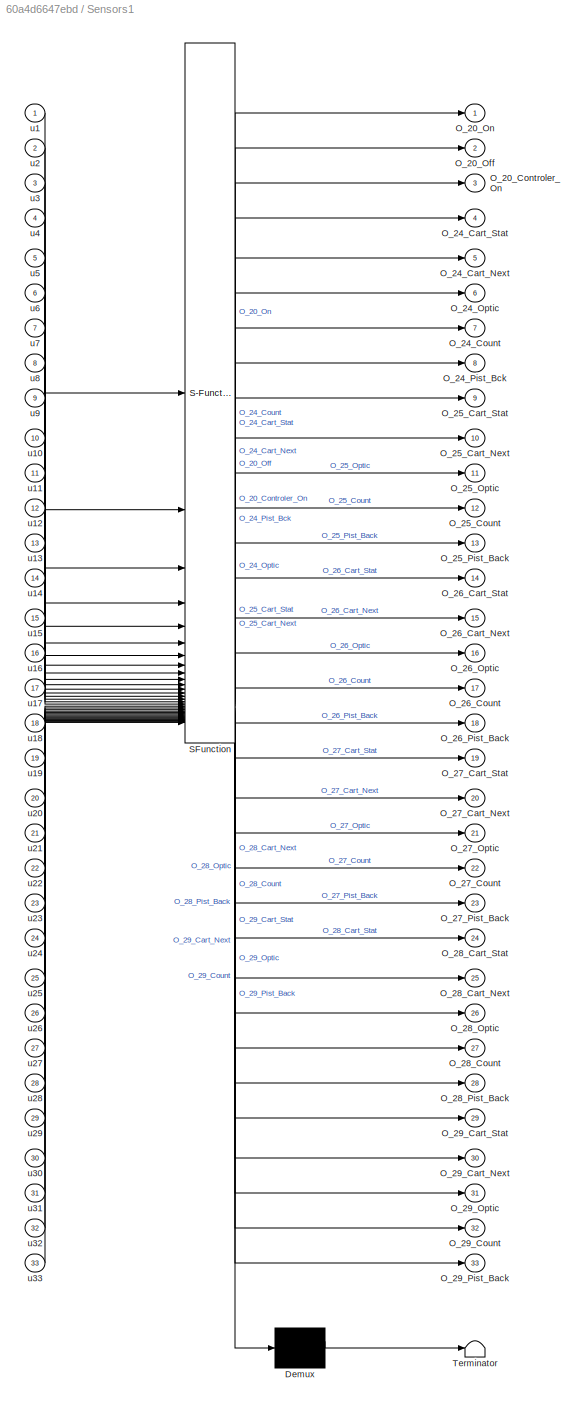
BLOCK [SubSystem] Sensors1
  ErrorFcn = Stateflow.Translate.translate
  PermitHierarchicalResolution = ExplicitOnly
  SFBlockType = MATLAB Function
  TreatAsAtomicUnit = on
BLOCK [Demux] Sensors1/ Demux 
  Outputs = 1
BLOCK [S-Function] Sensors1/ SFunction 
  EnableBusSupport = off
  FunctionName = sf_sfun
  PortCounts = [33 34]
  SFcnIsStateOwnerBlock = off
  SFunctionDeploymentMode = off
  Tag = Stateflow S-Function 11
BLOCK [Terminator] Sensors1/ Terminator 
BLOCK [Outport] Sensors1/O_20_Controler_On
  Port = 3
BLOCK [Outport] Sensors1/O_20_Off
  Port = 2
BLOCK [Outport] Sensors1/O_20_On
BLOCK [Outport] Sensors1/O_24_Cart_Next
  Port = 5
BLOCK [Outport] Sensors1/O_24_Cart_Stat
  Port = 4
BLOCK [Outport] Sensors1/O_24_Count
  Port = 7
BLOCK [Outport] Sensors1/O_24_Optic
  Port = 6
BLOCK [Outport] Sensors1/O_24_Pist_Bck
  Port = 8
BLOCK [Outport] Sensors1/O_25_Cart_Next
  Port = 10
BLOCK [Outport] Sensors1/O_25_Cart_Stat
  Port = 9
BLOCK [Outport] Sensors1/O_25_Count
  Port = 12
BLOCK [Outport] Sensors1/O_25_Optic
  Port = 11
BLOCK [Outport] Sensors1/O_25_Pist_Back
  Port = 13
BLOCK [Outport] Sensors1/O_26_Cart_Next
  Port = 15
BLOCK [Outport] Sensors1/O_26_Cart_Stat
  Port = 14
BLOCK [Outport] Sensors1/O_26_Count
  Port = 17
BLOCK [Outport] Sensors1/O_26_Optic
  Port = 16
BLOCK [Outport] Sensors1/O_26_Pist_Back
  Port = 18
BLOCK [Outport] Sensors1/O_27_Cart_Next
  Port = 20
BLOCK [Outport] Sensors1/O_27_Cart_Stat
  Port = 19
BLOCK [Outport] Sensors1/O_27_Count
  Port = 22
BLOCK [Outport] Sensors1/O_27_Optic
  Port = 21
BLOCK [Outport] Sensors1/O_27_Pist_Back
  Port = 23
BLOCK [Outport] Sensors1/O_28_Cart_Next
  Port = 25
BLOCK [Outport] Sensors1/O_28_Cart_Stat
  Port = 24
BLOCK [Outport] Sensors1/O_28_Count
  Port = 27
BLOCK [Outport] Sensors1/O_28_Optic
  Port = 26
BLOCK [Outport] Sensors1/O_28_Pist_Back
  Port = 28
BLOCK [Outport] Sensors1/O_29_Cart_Next
  Port = 30
BLOCK [Outport] Sensors1/O_29_Cart_Stat
  Port = 29
BLOCK [Outport] Sensors1/O_29_Count
  Port = 32
BLOCK [Outport] Sensors1/O_29_Optic
  Port = 31
BLOCK [Outport] Sensors1/O_29_Pist_Back
  Port = 33
BLOCK [Inport] Sensors1/u1
BLOCK [Inport] Sensors1/u10
  Port = 10
BLOCK [Inport] Sensors1/u11
  Port = 11
BLOCK [Inport] Sensors1/u12
  Port = 12
BLOCK [Inport] Sensors1/u13
  Port = 13
BLOCK [Inport] Sensors1/u14
  Port = 14
BLOCK [Inport] Sensors1/u15
  Port = 15
BLOCK [Inport] Sensors1/u16
  Port = 16
BLOCK [Inport] Sensors1/u17
  Port = 17
BLOCK [Inport] Sensors1/u18
  Port = 18
BLOCK [Inport] Sensors1/u19
  Port = 19
BLOCK [Inport] Sensors1/u2
  Port = 2
BLOCK [Inport] Sensors1/u20
  Port = 20
BLOCK [Inport] Sensors1/u21
  Port = 21
BLOCK [Inport] Sensors1/u22
  Port = 22
BLOCK [Inport] Sensors1/u23
  Port = 23
BLOCK [Inport] Sensors1/u24
  Port = 24
BLOCK [Inport] Sensors1/u25
  Port = 25
BLOCK [Inport] Sensors1/u26
  Port = 26
BLOCK [Inport] Sensors1/u27
  Port = 27
BLOCK [Inport] Sensors1/u28
  Port = 28
BLOCK [Inport] Sensors1/u29
  Port = 29
BLOCK [Inport] Sensors1/u3
  Port = 3
BLOCK [Inport] Sensors1/u30
  Port = 30
BLOCK [Inport] Sensors1/u31
  Port = 31
BLOCK [Inport] Sensors1/u32
  Port = 32
BLOCK [Inport] Sensors1/u33
  Port = 33
BLOCK [Inport] Sensors1/u4
  Port = 4
BLOCK [Inport] Sensors1/u5
  Port = 5
BLOCK [Inport] Sensors1/u6
  Port = 6
BLOCK [Inport] Sensors1/u7
  Port = 7
BLOCK [Inport] Sensors1/u8
  Port = 8
BLOCK [Inport] Sensors1/u9
  Port = 9
BLOCK [SubSystem] Sensors2
  ErrorFcn = Stateflow.Translate.translate
  PermitHierarchicalResolution = ExplicitOnly
  SFBlockType = MATLAB Function
  TreatAsAtomicUnit = on
BLOCK [Demux] Sensors2/ Demux 
  Outputs = 1
BLOCK [S-Function] Sensors2/ SFunction 
  EnableBusSupport = off
  FunctionName = sf_sfun
  PortCounts = [15 16]
  SFcnIsStateOwnerBlock = off
  SFunctionDeploymentMode = off
  Tag = Stateflow S-Function 15
BLOCK [Terminator] Sensors2/ Terminator 
BLOCK [Outport] Sensors2/O_50_Claw_Cart
  Port = 2
BLOCK [Outport] Sensors2/O_50_Claw_Del
  Port = 3
BLOCK [Outport] Sensors2/O_50_Claw_High
  Port = 6
BLOCK [Outport] Sensors2/O_50_Claw_Low
  Port = 5
BLOCK [Outport] Sensors2/O_50_Claw_Reserve
  Port = 4
BLOCK [Outport] Sensors2/O_50_Part_Reserve
BLOCK [Outport] Sensors2/O_50_Part_in_Claw
  Port = 7
BLOCK [Outport] Sensors2/O_51_Key_Pos
  Port = 10
BLOCK [Outport] Sensors2/O_51_Panel_I4
  Port = 12
BLOCK [Outport] Sensors2/O_51_Panel_I5
  Port = 13
BLOCK [Outport] Sensors2/O_51_Panel_I6
  Port = 14
BLOCK [Outport] Sensors2/O_51_Panel_I7
  Port = 15
BLOCK [Outport] Sensors2/O_51_Reset
  Port = 11
BLOCK [Outport] Sensors2/O_51_Start
  Port = 8
BLOCK [Outport] Sensors2/O_51_Stop
  Port = 9
BLOCK [Inport] Sensors2/u1
BLOCK [Inport] Sensors2/u10
  Port = 10
BLOCK [Inport] Sensors2/u11
  Port = 11
BLOCK [Inport] Sensors2/u12
  Port = 12
BLOCK [Inport] Sensors2/u13
  Port = 13
BLOCK [Inport] Sensors2/u14
  Port = 14
BLOCK [Inport] Sensors2/u15
  Port = 15
BLOCK [Inport] Sensors2/u2
  Port = 2
BLOCK [Inport] Sensors2/u3
  Port = 3
BLOCK [Inport] Sensors2/u4
  Port = 4
BLOCK [Inport] Sensors2/u5
  Port = 5
BLOCK [Inport] Sensors2/u6
  Port = 6
BLOCK [Inport] Sensors2/u7
  Port = 7
BLOCK [Inport] Sensors2/u8
  Port = 8
BLOCK [Inport] Sensors2/u9
  Port = 9
BLOCK [SubSystem] Sensors3
  ErrorFcn = Stateflow.Translate.translate
  PermitHierarchicalResolution = ExplicitOnly
  SFBlockType = MATLAB Function
  TreatAsAtomicUnit = on
BLOCK [Demux] Sensors3/ Demux 
  Outputs = 1
BLOCK [S-Function] Sensors3/ SFunction 
  EnableBusSupport = off
  FunctionName = sf_sfun
  PortCounts = [15 16]
  SFcnIsStateOwnerBlock = off
  SFunctionDeploymentMode = off
  Tag = Stateflow S-Function 19
BLOCK [Terminator] Sensors3/ Terminator 
BLOCK [Outport] Sensors3/O_90_Claw_Cart
  Port = 3
BLOCK [Outport] Sensors3/O_90_Claw_Del
  Port = 2
BLOCK [Outport] Sensors3/O_90_Claw_High
  Port = 6
BLOCK [Outport] Sensors3/O_90_Claw_Low
  Port = 5
BLOCK [Outport] Sensors3/O_90_Claw_Reserve
  Port = 4
BLOCK [Outport] Sensors3/O_90_Part_Reserve
BLOCK [Outport] Sensors3/O_90_Part_in_Claw
  Port = 7
BLOCK [Outport] Sensors3/O_91_Key_Pos
  Port = 10
BLOCK [Outport] Sensors3/O_91_Panel_I4
  Port = 12
BLOCK [Outport] Sensors3/O_91_Panel_I5
  Port = 13
BLOCK [Outport] Sensors3/O_91_Panel_I6
  Port = 14
BLOCK [Outport] Sensors3/O_91_Panel_I7
  Port = 15
BLOCK [Outport] Sensors3/O_91_Reset
  Port = 11
BLOCK [Outport] Sensors3/O_91_Start
  Port = 8
BLOCK [Outport] Sensors3/O_91_Stop
  Port = 9
BLOCK [Inport] Sensors3/u1
BLOCK [Inport] Sensors3/u10
  Port = 10
BLOCK [Inport] Sensors3/u11
  Port = 11
BLOCK [Inport] Sensors3/u12
  Port = 12
BLOCK [Inport] Sensors3/u13
  Port = 13
BLOCK [Inport] Sensors3/u14
  Port = 14
BLOCK [Inport] Sensors3/u15
  Port = 15
BLOCK [Inport] Sensors3/u2
  Port = 2
BLOCK [Inport] Sensors3/u3
  Port = 3
BLOCK [Inport] Sensors3/u4
  Port = 4
BLOCK [Inport] Sensors3/u5
  Port = 5
BLOCK [Inport] Sensors3/u6
  Port = 6
BLOCK [Inport] Sensors3/u7
  Port = 7
BLOCK [Inport] Sensors3/u8
  Port = 8
BLOCK [Inport] Sensors3/u9
  Port = 9
BLOCK [SubSystem] Sensors4
  ErrorFcn = Stateflow.Translate.translate
  PermitHierarchicalResolution = ExplicitOnly
  SFBlockType = MATLAB Function
  TreatAsAtomicUnit = on
BLOCK [Demux] Sensors4/ Demux 
  Outputs = 1
BLOCK [S-Function] Sensors4/ SFunction 
  EnableBusSupport = off
  FunctionName = sf_sfun
  PortCounts = [15 16]
  SFcnIsStateOwnerBlock = off
  SFunctionDeploymentMode = off
  Tag = Stateflow S-Function 22
BLOCK [Terminator] Sensors4/ Terminator 
BLOCK [Outport] Sensors4/O_100_PDrill_Pos
  Port = 2
BLOCK [Outport] Sensors4/O_100_PInit_Pos
BLOCK [Outport] Sensors4/O_100_PTest_Ok
  Port = 7
BLOCK [Outport] Sensors4/O_100_PTest_Pos
  Port = 3
BLOCK [Outport] Sensors4/O_100_RT_Sensor
  Port = 6
BLOCK [Outport] Sensors4/O_100_SDrill_High
  Port = 4
BLOCK [Outport] Sensors4/O_100_SDrill_Low
  Port = 5
BLOCK [Outport] Sensors4/O_101_Key_Pos
  Port = 10
BLOCK [Outport] Sensors4/O_101_Panel_I4
  Port = 12
BLOCK [Outport] Sensors4/O_101_Panel_I5
  Port = 13
BLOCK [Outport] Sensors4/O_101_Panel_I6
  Port = 14
BLOCK [Outport] Sensors4/O_101_Panel_I7
  Port = 15
BLOCK [Outport] Sensors4/O_101_Reset
  Port = 11
BLOCK [Outport] Sensors4/O_101_Start
  Port = 8
BLOCK [Outport] Sensors4/O_101_Stop
  Port = 9
BLOCK [Inport] Sensors4/u1
BLOCK [Inport] Sensors4/u10
  Port = 10
BLOCK [Inport] Sensors4/u11
  Port = 11
BLOCK [Inport] Sensors4/u12
  Port = 12
BLOCK [Inport] Sensors4/u13
  Port = 13
BLOCK [Inport] Sensors4/u14
  Port = 14
BLOCK [Inport] Sensors4/u15
  Port = 15
BLOCK [Inport] Sensors4/u2
  Port = 2
BLOCK [Inport] Sensors4/u3
  Port = 3
BLOCK [Inport] Sensors4/u4
  Port = 4
BLOCK [Inport] Sensors4/u5
  Port = 5
BLOCK [Inport] Sensors4/u6
  Port = 6
BLOCK [Inport] Sensors4/u7
  Port = 7
BLOCK [Inport] Sensors4/u8
  Port = 8
BLOCK [Inport] Sensors4/u9
  Port = 9
BLOCK [SubSystem] Sensors5
  ErrorFcn = Stateflow.Translate.translate
  PermitHierarchicalResolution = ExplicitOnly
  SFBlockType = MATLAB Function
  TreatAsAtomicUnit = on
BLOCK [Demux] Sensors5/ Demux 
  Outputs = 1
BLOCK [S-Function] Sensors5/ SFunction 
  EnableBusSupport = off
  FunctionName = sf_sfun
  PortCounts = [16 17]
  SFcnIsStateOwnerBlock = off
  SFunctionDeploymentMode = off
  Tag = Stateflow S-Function 29
BLOCK [Terminator] Sensors5/ Terminator 
BLOCK [Outport] Sensors5/O_60_Part_Pass
  Port = 4
BLOCK [Outport] Sensors5/O_60_SL1_Bck
  Port = 5
BLOCK [Outport] Sensors5/O_60_SL1_Fwd
  Port = 6
BLOCK [Outport] Sensors5/O_60_SL2_Bck
  Port = 7
BLOCK [Outport] Sensors5/O_60_SL2_Fwd
  Port = 8
BLOCK [Outport] Sensors5/O_60_SPart
BLOCK [Outport] Sensors5/O_60_SPhoto
  Port = 3
BLOCK [Outport] Sensors5/O_60_Slnd
  Port = 2
BLOCK [Outport] Sensors5/O_61_Key_Pos
  Port = 11
BLOCK [Outport] Sensors5/O_61_Panel_I4
  Port = 13
BLOCK [Outport] Sensors5/O_61_Panel_I5
  Port = 14
BLOCK [Outport] Sensors5/O_61_Panel_I6
  Port = 15
BLOCK [Outport] Sensors5/O_61_Panel_I7
  Port = 16
BLOCK [Outport] Sensors5/O_61_Reset
  Port = 12
BLOCK [Outport] Sensors5/O_61_Start
  Port = 9
BLOCK [Outport] Sensors5/O_61_Stop
  Port = 10
BLOCK [Inport] Sensors5/u1
BLOCK [Inport] Sensors5/u10
  Port = 10
BLOCK [Inport] Sensors5/u11
  Port = 11
BLOCK [Inport] Sensors5/u12
  Port = 12
BLOCK [Inport] Sensors5/u13
  Port = 13
BLOCK [Inport] Sensors5/u14
  Port = 14
BLOCK [Inport] Sensors5/u15
  Port = 15
BLOCK [Inport] Sensors5/u16
  Port = 16
BLOCK [Inport] Sensors5/u2
  Port = 2
BLOCK [Inport] Sensors5/u3
  Port = 3
BLOCK [Inport] Sensors5/u4
  Port = 4
BLOCK [Inport] Sensors5/u5
  Port = 5
BLOCK [Inport] Sensors5/u6
  Port = 6
BLOCK [Inport] Sensors5/u7
  Port = 7
BLOCK [Inport] Sensors5/u8
  Port = 8
BLOCK [Inport] Sensors5/u9
  Port = 9
BLOCK [SubSystem] controls
  ErrorFcn = Stateflow.Translate.translate
  PermitHierarchicalResolution = ExplicitOnly
  SFBlockType = MATLAB Function
  TreatAsAtomicUnit = on
BLOCK [Demux] controls/ Demux 
  Outputs = 1
BLOCK [S-Function] controls/ SFunction 
  EnableBusSupport = off
  FunctionName = sf_sfun
  PortCounts = [11 12]
  SFcnIsStateOwnerBlock = off
  SFunctionDeploymentMode = off
  Tag = Stateflow S-Function 2
BLOCK [Terminator] controls/ Terminator 
BLOCK [Outport] controls/C_82_Profibus
  Port = 6
BLOCK [Outport] controls/C_83_RQ_Parts
  Port = 7
BLOCK [Outport] controls/C_85_Continuous
  Port = 10
BLOCK [Outport] controls/C_85_Counted
  Port = 11
BLOCK [Outport] controls/C_85_Initialization
BLOCK [Outport] controls/C_85_Part_Del
  Port = 2
BLOCK [Outport] controls/C_85_Part_Mag
  Port = 3
BLOCK [Outport] controls/C_85_Single
  Port = 9
BLOCK [Outport] controls/C_85_Start
  Port = 8
BLOCK [Outport] controls/C_86_Mag_Parts
  Port = 4
BLOCK [Outport] controls/C_87_RQ_MParts
  Port = 5
BLOCK [Inport] controls/u1
BLOCK [Inport] controls/u10
  Port = 10
BLOCK [Inport] controls/u11
  Port = 11
BLOCK [Inport] controls/u2
  Port = 2
BLOCK [Inport] controls/u3
  Port = 3
BLOCK [Inport] controls/u4
  Port = 4
BLOCK [Inport] controls/u5
  Port = 5
BLOCK [Inport] controls/u6
  Port = 6
BLOCK [Inport] controls/u7
  Port = 7
BLOCK [Inport] controls/u8
  Port = 8
BLOCK [Inport] controls/u9
  Port = 9
BLOCK [SubSystem] fcn Asi Storage
  ErrorFcn = Stateflow.Translate.translate
  PermitHierarchicalResolution = ExplicitOnly
  SFBlockType = MATLAB Function
  TreatAsAtomicUnit = on
BLOCK [Demux] fcn Asi Storage/ Demux 
  Outputs = 1
BLOCK [S-Function] fcn Asi Storage/ SFunction 
  EnableBusSupport = off
  FunctionName = sf_sfun
  PortCounts = [12 13]
  SFcnIsStateOwnerBlock = off
  SFunctionDeploymentMode = off
  Tag = Stateflow S-Function 30
BLOCK [Terminator] fcn Asi Storage/ Terminator 
BLOCK [Outport] fcn Asi Storage/A_43_StorCartID
  Port = 5
BLOCK [Outport] fcn Asi Storage/A_44_CRoute_In
  Port = 4
BLOCK [Outport] fcn Asi Storage/A_44_CRoute_Out
  Port = 12
BLOCK [Outport] fcn Asi Storage/A_44_Cart_Full
  Port = 3
BLOCK [Outport] fcn Asi Storage/A_44_Cart_Next
  Port = 7
BLOCK [Outport] fcn Asi Storage/A_44_Cart_Stat
  Port = 6
BLOCK [Outport] fcn Asi Storage/A_44_Count
  Port = 9
BLOCK [Outport] fcn Asi Storage/A_44_No_Cart
  Port = 2
BLOCK [Outport] fcn Asi Storage/A_44_Optic
  Port = 8
BLOCK [Outport] fcn Asi Storage/A_44_Pist_Bck
  Port = 10
BLOCK [Outport] fcn Asi Storage/A_44_Release_FB
  Port = 11
BLOCK [Outport] fcn Asi Storage/A_44_Request
BLOCK [Inport] fcn Asi Storage/u1
BLOCK [Inport] fcn Asi Storage/u10
  Port = 10
BLOCK [Inport] fcn Asi Storage/u11
  Port = 11
BLOCK [Inport] fcn Asi Storage/u12
  Port = 12
BLOCK [Inport] fcn Asi Storage/u2
  Port = 2
BLOCK [Inport] fcn Asi Storage/u3
  Port = 3
BLOCK [Inport] fcn Asi Storage/u4
  Port = 4
BLOCK [Inport] fcn Asi Storage/u5
  Port = 5
BLOCK [Inport] fcn Asi Storage/u6
  Port = 6
BLOCK [Inport] fcn Asi Storage/u7
  Port = 7
BLOCK [Inport] fcn Asi Storage/u8
  Port = 8
BLOCK [Inport] fcn Asi Storage/u9
  Port = 9
BLOCK [SubSystem] fcn_Asi_ROBOT
  ErrorFcn = Stateflow.Translate.translate
  PermitHierarchicalResolution = ExplicitOnly
  SFBlockType = MATLAB Function
  TreatAsAtomicUnit = on
BLOCK [Demux] fcn_Asi_ROBOT/ Demux 
  Outputs = 1
BLOCK [S-Function] fcn_Asi_ROBOT/ SFunction 
  EnableBusSupport = off
  FunctionName = sf_sfun
  PortCounts = [12 13]
  SFcnIsStateOwnerBlock = off
  SFunctionDeploymentMode = off
  Tag = Stateflow S-Function 23
BLOCK [Terminator] fcn_Asi_ROBOT/ Terminator 
BLOCK [Outport] fcn_Asi_ROBOT/A_32_RoboCartID
  Port = 5
BLOCK [Outport] fcn_Asi_ROBOT/A_34_CRoute_In
  Port = 12
BLOCK [Outport] fcn_Asi_ROBOT/A_34_CRoute_Out
  Port = 4
BLOCK [Outport] fcn_Asi_ROBOT/A_34_Cart_Full
  Port = 3
BLOCK [Outport] fcn_Asi_ROBOT/A_34_Cart_Next
  Port = 7
BLOCK [Outport] fcn_Asi_ROBOT/A_34_Cart_Stat
  Port = 6
BLOCK [Outport] fcn_Asi_ROBOT/A_34_Count
  Port = 9
BLOCK [Outport] fcn_Asi_ROBOT/A_34_No_Cart
  Port = 2
BLOCK [Outport] fcn_Asi_ROBOT/A_34_Optic
  Port = 8
BLOCK [Outport] fcn_Asi_ROBOT/A_34_Pist_Bck
  Port = 10
BLOCK [Outport] fcn_Asi_ROBOT/A_34_Release_FB
  Port = 11
BLOCK [Outport] fcn_Asi_ROBOT/A_34_Request
BLOCK [Inport] fcn_Asi_ROBOT/u1
BLOCK [Inport] fcn_Asi_ROBOT/u10
  Port = 10
BLOCK [Inport] fcn_Asi_ROBOT/u11
  Port = 11
BLOCK [Inport] fcn_Asi_ROBOT/u12
  Port = 12
BLOCK [Inport] fcn_Asi_ROBOT/u2
  Port = 2
BLOCK [Inport] fcn_Asi_ROBOT/u3
  Port = 3
BLOCK [Inport] fcn_Asi_ROBOT/u4
  Port = 4
BLOCK [Inport] fcn_Asi_ROBOT/u5
  Port = 5
BLOCK [Inport] fcn_Asi_ROBOT/u6
  Port = 6
BLOCK [Inport] fcn_Asi_ROBOT/u7
  Port = 7
BLOCK [Inport] fcn_Asi_ROBOT/u8
  Port = 8
BLOCK [Inport] fcn_Asi_ROBOT/u9
  Port = 9
BLOCK [SubSystem] fcn_Control_ROBOT
  ErrorFcn = Stateflow.Translate.translate
  PermitHierarchicalResolution = ExplicitOnly
  SFBlockType = MATLAB Function
  TreatAsAtomicUnit = on
BLOCK [Demux] fcn_Control_ROBOT/ Demux 
  Outputs = 1
BLOCK [S-Function] fcn_Control_ROBOT/ SFunction 
  EnableBusSupport = off
  FunctionName = sf_sfun
  PortCounts = [3 4]
  SFcnIsStateOwnerBlock = off
  SFunctionDeploymentMode = off
  Tag = Stateflow S-Function 24
BLOCK [Terminator] fcn_Control_ROBOT/ Terminator 
BLOCK [Outport] fcn_Control_ROBOT/C_30_Robot1
  Port = 2
BLOCK [Outport] fcn_Control_ROBOT/C_30_Robot2
  Port = 3
BLOCK [Outport] fcn_Control_ROBOT/C_35_Part_Del
BLOCK [Inport] fcn_Control_ROBOT/u1
BLOCK [Inport] fcn_Control_ROBOT/u2
  Port = 2
BLOCK [Inport] fcn_Control_ROBOT/u3
  Port = 3
BLOCK [SubSystem] fcn_Feedback_ROBOT
  ErrorFcn = Stateflow.Translate.translate
  PermitHierarchicalResolution = ExplicitOnly
  SFBlockType = MATLAB Function
  TreatAsAtomicUnit = on
BLOCK [Demux] fcn_Feedback_ROBOT/ Demux 
  Outputs = 1
BLOCK [S-Function] fcn_Feedback_ROBOT/ SFunction 
  EnableBusSupport = off
  FunctionName = sf_sfun
  PortCounts = [6 7]
  SFcnIsStateOwnerBlock = off
  SFunctionDeploymentMode = off
  Tag = Stateflow S-Function 25
BLOCK [Terminator] fcn_Feedback_ROBOT/ Terminator 
BLOCK [Outport] fcn_Feedback_ROBOT/F_33_Cover_Cyl
  Port = 6
BLOCK [Outport] fcn_Feedback_ROBOT/F_33_Led_Extra1
  Port = 3
BLOCK [Outport] fcn_Feedback_ROBOT/F_33_Led_Extra2
  Port = 4
BLOCK [Outport] fcn_Feedback_ROBOT/F_33_Led_Reset
  Port = 2
BLOCK [Outport] fcn_Feedback_ROBOT/F_33_Led_Start
BLOCK [Outport] fcn_Feedback_ROBOT/F_33_Spring_Cyl
  Port = 5
BLOCK [Inport] fcn_Feedback_ROBOT/u1
BLOCK [Inport] fcn_Feedback_ROBOT/u2
  Port = 2
BLOCK [Inport] fcn_Feedback_ROBOT/u3
  Port = 3
BLOCK [Inport] fcn_Feedback_ROBOT/u4
  Port = 4
BLOCK [Inport] fcn_Feedback_ROBOT/u5
  Port = 5
BLOCK [Inport] fcn_Feedback_ROBOT/u6
  Port = 6
BLOCK [SubSystem] fcn_Sensors_ROBOT
  ErrorFcn = Stateflow.Translate.translate
  PermitHierarchicalResolution = ExplicitOnly
  SFBlockType = MATLAB Function
  TreatAsAtomicUnit = on
BLOCK [Demux] fcn_Sensors_ROBOT/ Demux 
  Outputs = 1
BLOCK [S-Function] fcn_Sensors_ROBOT/ SFunction 
  EnableBusSupport = off
  FunctionName = sf_sfun
  PortCounts = [12 13]
  SFcnIsStateOwnerBlock = off
  SFunctionDeploymentMode = off
  Tag = Stateflow S-Function 27
BLOCK [Terminator] fcn_Sensors_ROBOT/ Terminator 
BLOCK [Outport] fcn_Sensors_ROBOT/O_31_Orientation
  Port = 5
BLOCK [Outport] fcn_Sensors_ROBOT/O_31_Part_in_Claw
  Port = 4
BLOCK [Outport] fcn_Sensors_ROBOT/O_31_Reset
  Port = 3
BLOCK [Outport] fcn_Sensors_ROBOT/O_31_Start
BLOCK [Outport] fcn_Sensors_ROBOT/O_31_Stop
  Port = 2
BLOCK [Outport] fcn_Sensors_ROBOT/O_32_CoMag_Empty
  Port = 12
BLOCK [Outport] fcn_Sensors_ROBOT/O_32_Co_Cyl_Bck
  Port = 8
BLOCK [Outport] fcn_Sensors_ROBOT/O_32_Co_Cyl_Fwd
  Port = 9
BLOCK [Outport] fcn_Sensors_ROBOT/O_32_Co_PickUp
  Port = 11
BLOCK [Outport] fcn_Sensors_ROBOT/O_32_Sp_Cyl_Bck
  Port = 6
BLOCK [Outport] fcn_Sensors_ROBOT/O_32_Sp_Cyl_Fwd
  Port = 7
BLOCK [Outport] fcn_Sensors_ROBOT/O_32_Sp_PickUp
  Port = 10
BLOCK [Inport] fcn_Sensors_ROBOT/u1
BLOCK [Inport] fcn_Sensors_ROBOT/u10
  Port = 10
BLOCK [Inport] fcn_Sensors_ROBOT/u11
  Port = 11
BLOCK [Inport] fcn_Sensors_ROBOT/u12
  Port = 12
BLOCK [Inport] fcn_Sensors_ROBOT/u2
  Port = 2
BLOCK [Inport] fcn_Sensors_ROBOT/u3
  Port = 3
BLOCK [Inport] fcn_Sensors_ROBOT/u4
  Port = 4
BLOCK [Inport] fcn_Sensors_ROBOT/u5
  Port = 5
BLOCK [Inport] fcn_Sensors_ROBOT/u6
  Port = 6
BLOCK [Inport] fcn_Sensors_ROBOT/u7
  Port = 7
BLOCK [Inport] fcn_Sensors_ROBOT/u8
  Port = 8
BLOCK [Inport] fcn_Sensors_ROBOT/u9
  Port = 9
BLOCK [SubSystem] feedback
  ErrorFcn = Stateflow.Translate.translate
  PermitHierarchicalResolution = ExplicitOnly
  SFBlockType = MATLAB Function
  TreatAsAtomicUnit = on
BLOCK [Demux] feedback/ Demux 
  Outputs = 1
BLOCK [S-Function] feedback/ SFunction 
  EnableBusSupport = off
  FunctionName = sf_sfun
  PortCounts = [13 14]
  SFcnIsStateOwnerBlock = off
  SFunctionDeploymentMode = off
  Tag = Stateflow S-Function 1
BLOCK [Terminator] feedback/ Terminator 
BLOCK [Outport] feedback/F_82_Arm_2_Del
  Port = 4
BLOCK [Outport] feedback/F_82_Arm_2_Mag
  Port = 5
BLOCK [Outport] feedback/F_82_Pist_Adv
BLOCK [Outport] feedback/F_82_Suction_Off
  Port = 3
BLOCK [Outport] feedback/F_82_Suction_On
  Port = 2
BLOCK [Outport] feedback/F_83_Led_Extra1
  Port = 8
BLOCK [Outport] feedback/F_83_Led_Extra2
  Port = 9
BLOCK [Outport] feedback/F_83_Led_Reset
  Port = 7
BLOCK [Outport] feedback/F_83_Led_Start
  Port = 6
BLOCK [Outport] feedback/F_83_Panel_O4
  Port = 10
BLOCK [Outport] feedback/F_83_Panel_O5
  Port = 11
BLOCK [Outport] feedback/F_83_Panel_O6
  Port = 12
BLOCK [Outport] feedback/F_83_Panel_O7
  Port = 13
BLOCK [Inport] feedback/u1
BLOCK [Inport] feedback/u10
  Port = 10
BLOCK [Inport] feedback/u11
  Port = 11
BLOCK [Inport] feedback/u12
  Port = 12
BLOCK [Inport] feedback/u13
  Port = 13
BLOCK [Inport] feedback/u2
  Port = 2
BLOCK [Inport] feedback/u3
  Port = 3
BLOCK [Inport] feedback/u4
  Port = 4
BLOCK [Inport] feedback/u5
  Port = 5
BLOCK [Inport] feedback/u6
  Port = 6
BLOCK [Inport] feedback/u7
  Port = 7
BLOCK [Inport] feedback/u8
  Port = 8
BLOCK [Inport] feedback/u9
  Port = 9
BLOCK [SubSystem] sensors
  ErrorFcn = Stateflow.Translate.translate
  PermitHierarchicalResolution = ExplicitOnly
  SFBlockType = MATLAB Function
  TreatAsAtomicUnit = on
BLOCK [Demux] sensors/ Demux 
  Outputs = 1
BLOCK [S-Function] sensors/ SFunction 
  EnableBusSupport = off
  FunctionName = sf_sfun
  PortCounts = [15 16]
  SFcnIsStateOwnerBlock = off
  SFunctionDeploymentMode = off
  Tag = Stateflow S-Function 4
BLOCK [Terminator] sensors/ Terminator 
BLOCK [Outport] sensors/O_80_Arm_Del
  Port = 6
BLOCK [Outport] sensors/O_80_Arm_Mag
  Port = 5
BLOCK [Outport] sensors/O_80_Mag_Empty
  Port = 7
BLOCK [Outport] sensors/O_80_Mag_Full
BLOCK [Outport] sensors/O_80_Part_Stuck
  Port = 4
BLOCK [Outport] sensors/O_80_Pist_Back
  Port = 2
BLOCK [Outport] sensors/O_80_Pist_Fwd
  Port = 3
BLOCK [Outport] sensors/O_81_Key_Pos
  Port = 10
BLOCK [Outport] sensors/O_81_Panel_I4
  Port = 12
BLOCK [Outport] sensors/O_81_Panel_I5
  Port = 13
BLOCK [Outport] sensors/O_81_Panel_I6
  Port = 14
BLOCK [Outport] sensors/O_81_Panel_I7
  Port = 15
BLOCK [Outport] sensors/O_81_Reset
  Port = 11
BLOCK [Outport] sensors/O_81_Start
  Port = 8
BLOCK [Outport] sensors/O_81_Stop
  Port = 9
BLOCK [Inport] sensors/u1
BLOCK [Inport] sensors/u10
  Port = 10
BLOCK [Inport] sensors/u11
  Port = 11
BLOCK [Inport] sensors/u12
  Port = 12
BLOCK [Inport] sensors/u13
  Port = 13
BLOCK [Inport] sensors/u14
  Port = 14
BLOCK [Inport] sensors/u15
  Port = 15
BLOCK [Inport] sensors/u2
  Port = 2
BLOCK [Inport] sensors/u3
  Port = 3
BLOCK [Inport] sensors/u4
  Port = 4
BLOCK [Inport] sensors/u5
  Port = 5
BLOCK [Inport] sensors/u6
  Port = 6
BLOCK [Inport] sensors/u7
  Port = 7
BLOCK [Inport] sensors/u8
  Port = 8
BLOCK [Inport] sensors/u9
  Port = 9
LINE ASI:1 -> B_ASI_TEST:1
LINE ASI:10 -> B_ASI_TEST:10
LINE ASI:11 -> B_ASI_TEST:11
LINE ASI:12 -> B_ASI_TEST:12
LINE ASI:13 -> B_ASI_TEST:13
LINE ASI:2 -> B_ASI_TEST:2
LINE ASI:3 -> B_ASI_TEST:3
LINE ASI:4 -> B_ASI_TEST:4
LINE ASI:5 -> B_ASI_TEST:5
LINE ASI:6 -> B_ASI_TEST:6
LINE ASI:7 -> B_ASI_TEST:7
LINE ASI:8 -> B_ASI_TEST:8
LINE ASI:9 -> B_ASI_TEST:9
LINE Asi1_HAND2:1 -> B_ASI_HD2:1
LINE Asi1_HAND2:10 -> B_ASI_HD2:10
LINE Asi1_HAND2:11 -> B_ASI_HD2:11
LINE Asi1_HAND2:12 -> B_ASI_HD2:12
LINE Asi1_HAND2:2 -> B_ASI_HD2:2
LINE Asi1_HAND2:3 -> B_ASI_HD2:3
LINE Asi1_HAND2:4 -> B_ASI_HD2:4
LINE Asi1_HAND2:5 -> B_ASI_HD2:5
LINE Asi1_HAND2:6 -> B_ASI_HD2:6
LINE Asi1_HAND2:7 -> B_ASI_HD2:7
LINE Asi1_HAND2:8 -> B_ASI_HD2:8
LINE Asi1_HAND2:9 -> B_ASI_HD2:9
LINE Asi:1 -> B_ASI_HD1:1
LINE Asi:10 -> B_ASI_HD1:10
LINE Asi:11 -> B_ASI_HD1:11
LINE Asi:12 -> B_ASI_HD1:12
LINE Asi:2 -> B_ASI_HD1:2
LINE Asi:3 -> B_ASI_HD1:3
LINE Asi:4 -> B_ASI_HD1:4
LINE Asi:5 -> B_ASI_HD1:5
LINE Asi:6 -> B_ASI_HD1:6
LINE Asi:7 -> B_ASI_HD1:7
LINE Asi:8 -> B_ASI_HD1:8
LINE Asi:9 -> B_ASI_HD1:9
LINE B_ASI_HD1:1 -> Chart:9
LINE B_ASI_HD2:1 -> Chart:10
LINE B_ASI_ROBOT:1 -> Chart:8
LINE B_ASI_STORAGE:1 -> Chart:30
LINE B_ASI_TEST:1 -> Chart:4
LINE B_C_DIST:1 -> Chart:1
LINE B_C_HD1:1 -> Chart:20
LINE B_C_HD2:1 -> Chart:22
LINE B_C_MASTER:1 -> Chart:18
LINE B_C_PROC:1 -> Chart:17
LINE B_C_ROBOT:1 -> Chart:19
LINE B_C_SORT:1 -> Chart:21
LINE B_C_STORAGE:1 -> Chart:29
LINE B_C_TEST:1 -> Chart:5
LINE B_F_DIST:1 -> Chart:2
LINE B_F_HD1:1 -> Chart:14
LINE B_F_HD2:1 -> Chart:16
LINE B_F_MASTER:1 -> Chart:12
LINE B_F_PROC:1 -> Chart:11
LINE B_F_ROBOT:1 -> Chart:13
LINE B_F_SORT:1 -> Chart:15
LINE B_F_STORAGE:1 -> Chart:31
LINE B_F_TEST:1 -> Chart:6
LINE B_S_DIST:1 -> Chart:3
LINE B_S_HD1:1 -> Chart:26
LINE B_S_HD2:1 -> Chart:28
LINE B_S_MASTER:1 -> Chart:24
LINE B_S_PROC:1 -> Chart:23
LINE B_S_ROBOT:1 -> Chart:25
LINE B_S_SORT:1 -> Chart:27
LINE B_S_STORAGE:1 -> Chart:32
LINE B_S_TEST:1 -> Chart:7
LINE Bus Selector10:1 -> Feedback3:1
LINE Bus Selector10:10 -> Feedback3:10
LINE Bus Selector10:11 -> Feedback3:11
LINE Bus Selector10:12 -> Feedback3:12
LINE Bus Selector10:2 -> Feedback3:2
LINE Bus Selector10:3 -> Feedback3:3
LINE Bus Selector10:4 -> Feedback3:4
LINE Bus Selector10:5 -> Feedback3:5
LINE Bus Selector10:6 -> Feedback3:6
LINE Bus Selector10:7 -> Feedback3:7
LINE Bus Selector10:8 -> Feedback3:8
LINE Bus Selector10:9 -> Feedback3:9
LINE Bus Selector11:1 -> Sensors3:1
LINE Bus Selector11:10 -> Sensors3:10
LINE Bus Selector11:11 -> Sensors3:11
LINE Bus Selector11:12 -> Sensors3:12
LINE Bus Selector11:13 -> Sensors3:13
LINE Bus Selector11:14 -> Sensors3:14
LINE Bus Selector11:15 -> Sensors3:15
LINE Bus Selector11:2 -> Sensors3:2
LINE Bus Selector11:3 -> Sensors3:3
LINE Bus Selector11:4 -> Sensors3:4
LINE Bus Selector11:5 -> Sensors3:5
LINE Bus Selector11:6 -> Sensors3:6
LINE Bus Selector11:7 -> Sensors3:7
LINE Bus Selector11:8 -> Sensors3:8
LINE Bus Selector11:9 -> Sensors3:9
LINE Bus Selector12:1 -> Asi:1
LINE Bus Selector12:10 -> Asi:10
LINE Bus Selector12:11 -> Asi:11
LINE Bus Selector12:12 -> Asi:12
LINE Bus Selector12:2 -> Asi:2
LINE Bus Selector12:3 -> Asi:3
LINE Bus Selector12:4 -> Asi:4
LINE Bus Selector12:5 -> Asi:5
LINE Bus Selector12:6 -> Asi:6
LINE Bus Selector12:7 -> Asi:7
LINE Bus Selector12:8 -> Asi:8
LINE Bus Selector12:9 -> Asi:9
LINE Bus Selector13:1 -> Control2:1
LINE Bus Selector13:2 -> Control2:2
LINE Bus Selector13:3 -> Control2:3
LINE Bus Selector13:4 -> Control2:4
LINE Bus Selector13:5 -> Control2:5
LINE Bus Selector14:1 -> Feedback2:1
LINE Bus Selector14:10 -> Feedback2:10
LINE Bus Selector14:11 -> Feedback2:11
LINE Bus Selector14:12 -> Feedback2:12
LINE Bus Selector14:2 -> Feedback2:2
LINE Bus Selector14:3 -> Feedback2:3
LINE Bus Selector14:4 -> Feedback2:4
LINE Bus Selector14:5 -> Feedback2:5
LINE Bus Selector14:6 -> Feedback2:6
LINE Bus Selector14:7 -> Feedback2:7
LINE Bus Selector14:8 -> Feedback2:8
LINE Bus Selector14:9 -> Feedback2:9
LINE Bus Selector15:1 -> Sensors2:1
LINE Bus Selector15:10 -> Sensors2:10
LINE Bus Selector15:11 -> Sensors2:11
LINE Bus Selector15:12 -> Sensors2:12
LINE Bus Selector15:13 -> Sensors2:13
LINE Bus Selector15:14 -> Sensors2:14
LINE Bus Selector15:15 -> Sensors2:15
LINE Bus Selector15:2 -> Sensors2:2
LINE Bus Selector15:3 -> Sensors2:3
LINE Bus Selector15:4 -> Sensors2:4
LINE Bus Selector15:5 -> Sensors2:5
LINE Bus Selector15:6 -> Sensors2:6
LINE Bus Selector15:7 -> Sensors2:7
LINE Bus Selector15:8 -> Sensors2:8
LINE Bus Selector15:9 -> Sensors2:9
LINE Bus Selector16:1 -> controls:1
LINE Bus Selector16:10 -> controls:10
LINE Bus Selector16:11 -> controls:11
LINE Bus Selector16:2 -> controls:2
LINE Bus Selector16:3 -> controls:3
LINE Bus Selector16:4 -> controls:4
LINE Bus Selector16:5 -> controls:5
LINE Bus Selector16:6 -> controls:6
LINE Bus Selector16:7 -> controls:7
LINE Bus Selector16:8 -> controls:8
LINE Bus Selector16:9 -> controls:9
LINE Bus Selector17:1 -> feedback:1
LINE Bus Selector17:10 -> feedback:10
LINE Bus Selector17:11 -> feedback:11
LINE Bus Selector17:12 -> feedback:12
LINE Bus Selector17:13 -> feedback:13
LINE Bus Selector17:2 -> feedback:2
LINE Bus Selector17:3 -> feedback:3
LINE Bus Selector17:4 -> feedback:4
LINE Bus Selector17:5 -> feedback:5
LINE Bus Selector17:6 -> feedback:6
LINE Bus Selector17:7 -> feedback:7
LINE Bus Selector17:8 -> feedback:8
LINE Bus Selector17:9 -> feedback:9
LINE Bus Selector18:1 -> sensors:1
LINE Bus Selector18:10 -> sensors:10
LINE Bus Selector18:11 -> sensors:11
LINE Bus Selector18:12 -> sensors:12
LINE Bus Selector18:13 -> sensors:13
LINE Bus Selector18:14 -> sensors:14
LINE Bus Selector18:15 -> sensors:15
LINE Bus Selector18:2 -> sensors:2
LINE Bus Selector18:3 -> sensors:3
LINE Bus Selector18:4 -> sensors:4
LINE Bus Selector18:5 -> sensors:5
LINE Bus Selector18:6 -> sensors:6
LINE Bus Selector18:7 -> sensors:7
LINE Bus Selector18:8 -> sensors:8
LINE Bus Selector18:9 -> sensors:9
LINE Bus Selector19:1 -> ASI:1
LINE Bus Selector19:10 -> ASI:10
LINE Bus Selector19:11 -> ASI:11
LINE Bus Selector19:12 -> ASI:12
LINE Bus Selector19:13 -> ASI:13
LINE Bus Selector19:2 -> ASI:2
LINE Bus Selector19:3 -> ASI:3
LINE Bus Selector19:4 -> ASI:4
LINE Bus Selector19:5 -> ASI:5
LINE Bus Selector19:6 -> ASI:6
LINE Bus Selector19:7 -> ASI:7
LINE Bus Selector19:8 -> ASI:8
LINE Bus Selector19:9 -> ASI:9
LINE Bus Selector1:1 -> MATLAB Function1:1
LINE Bus Selector1:2 -> MATLAB Function1:2
LINE Bus Selector1:3 -> MATLAB Function1:3
LINE Bus Selector1:4 -> MATLAB Function1:4
LINE Bus Selector1:5 -> MATLAB Function1:5
LINE Bus Selector20:1 -> Control:1
LINE Bus Selector20:10 -> Control:10
LINE Bus Selector20:11 -> Control:11
LINE Bus Selector20:12 -> Control:12
LINE Bus Selector20:13 -> Control:13
LINE Bus Selector20:2 -> Control:2
LINE Bus Selector20:3 -> Control:3
LINE Bus Selector20:4 -> Control:4
LINE Bus Selector20:5 -> Control:5
LINE Bus Selector20:6 -> Control:6
LINE Bus Selector20:7 -> Control:7
LINE Bus Selector20:8 -> Control:8
LINE Bus Selector20:9 -> Control:9
LINE Bus Selector21:1 -> Feedback:1
LINE Bus Selector21:10 -> Feedback:10
LINE Bus Selector21:11 -> Feedback:11
LINE Bus Selector21:12 -> Feedback:12
LINE Bus Selector21:2 -> Feedback:2
LINE Bus Selector21:3 -> Feedback:3
LINE Bus Selector21:4 -> Feedback:4
LINE Bus Selector21:5 -> Feedback:5
LINE Bus Selector21:6 -> Feedback:6
LINE Bus Selector21:7 -> Feedback:7
LINE Bus Selector21:8 -> Feedback:8
LINE Bus Selector21:9 -> Feedback:9
LINE Bus Selector22:1 -> Sensors:1
LINE Bus Selector22:10 -> Sensors:10
LINE Bus Selector22:11 -> Sensors:11
LINE Bus Selector22:12 -> Sensors:12
LINE Bus Selector22:13 -> Sensors:13
LINE Bus Selector22:14 -> Sensors:14
LINE Bus Selector22:15 -> Sensors:15
LINE Bus Selector22:2 -> Sensors:2
LINE Bus Selector22:3 -> Sensors:3
LINE Bus Selector22:4 -> Sensors:4
LINE Bus Selector22:5 -> Sensors:5
LINE Bus Selector22:6 -> Sensors:6
LINE Bus Selector22:7 -> Sensors:7
LINE Bus Selector22:8 -> Sensors:8
LINE Bus Selector22:9 -> Sensors:9
LINE Bus Selector23:1 -> Control1:1
LINE Bus Selector23:10 -> Control1:10
LINE Bus Selector23:11 -> Control1:11
LINE Bus Selector23:12 -> Control1:12
LINE Bus Selector23:13 -> Control1:13
LINE Bus Selector23:14 -> Control1:14
LINE Bus Selector23:15 -> Control1:15
LINE Bus Selector23:16 -> Control1:16
LINE Bus Selector23:17 -> Control1:17
LINE Bus Selector23:18 -> Control1:18
LINE Bus Selector23:19 -> Control1:19
LINE Bus Selector23:2 -> Control1:2
LINE Bus Selector23:20 -> Control1:20
LINE Bus Selector23:21 -> Control1:21
LINE Bus Selector23:22 -> Control1:22
LINE Bus Selector23:23 -> Control1:23
LINE Bus Selector23:24 -> Control1:24
LINE Bus Selector23:3 -> Control1:3
LINE Bus Selector23:4 -> Control1:4
LINE Bus Selector23:5 -> Control1:5
LINE Bus Selector23:6 -> Control1:6
LINE Bus Selector23:7 -> Control1:7
LINE Bus Selector23:8 -> Control1:8
LINE Bus Selector23:9 -> Control1:9
LINE Bus Selector24:1 -> Feedback1:1
LINE Bus Selector24:2 -> Feedback1:2
LINE Bus Selector24:3 -> Feedback1:3
LINE Bus Selector24:4 -> Feedback1:4
LINE Bus Selector24:5 -> Feedback1:5
LINE Bus Selector24:6 -> Feedback1:6
LINE Bus Selector24:7 -> Feedback1:7
LINE Bus Selector24:8 -> Feedback1:8
LINE Bus Selector24:9 -> Feedback1:9
LINE Bus Selector25:1 -> Sensors1:1
LINE Bus Selector25:10 -> Sensors1:10
LINE Bus Selector25:11 -> Sensors1:11
LINE Bus Selector25:12 -> Sensors1:12
LINE Bus Selector25:13 -> Sensors1:13
LINE Bus Selector25:14 -> Sensors1:14
LINE Bus Selector25:15 -> Sensors1:15
LINE Bus Selector25:16 -> Sensors1:16
LINE Bus Selector25:17 -> Sensors1:17
LINE Bus Selector25:18 -> Sensors1:18
LINE Bus Selector25:19 -> Sensors1:19
LINE Bus Selector25:2 -> Sensors1:2
LINE Bus Selector25:20 -> Sensors1:20
LINE Bus Selector25:21 -> Sensors1:21
LINE Bus Selector25:22 -> Sensors1:22
LINE Bus Selector25:23 -> Sensors1:23
LINE Bus Selector25:24 -> Sensors1:24
LINE Bus Selector25:25 -> Sensors1:25
LINE Bus Selector25:26 -> Sensors1:26
LINE Bus Selector25:27 -> Sensors1:27
LINE Bus Selector25:28 -> Sensors1:28
LINE Bus Selector25:29 -> Sensors1:29
LINE Bus Selector25:3 -> Sensors1:3
LINE Bus Selector25:30 -> Sensors1:30
LINE Bus Selector25:31 -> Sensors1:31
LINE Bus Selector25:32 -> Sensors1:32
LINE Bus Selector25:33 -> Sensors1:33
LINE Bus Selector25:4 -> Sensors1:4
LINE Bus Selector25:5 -> Sensors1:5
LINE Bus Selector25:6 -> Sensors1:6
LINE Bus Selector25:7 -> Sensors1:7
LINE Bus Selector25:8 -> Sensors1:8
LINE Bus Selector25:9 -> Sensors1:9
LINE Bus Selector26:1 -> Control4:1
LINE Bus Selector26:10 -> Control4:10
LINE Bus Selector26:2 -> Control4:2
LINE Bus Selector26:3 -> Control4:3
LINE Bus Selector26:4 -> Control4:4
LINE Bus Selector26:5 -> Control4:5
LINE Bus Selector26:6 -> Control4:6
LINE Bus Selector26:7 -> Control4:7
LINE Bus Selector26:8 -> Control4:8
LINE Bus Selector26:9 -> Control4:9
LINE Bus Selector27:1 -> Feedback4:1
LINE Bus Selector27:10 -> Feedback4:10
LINE Bus Selector27:11 -> Feedback4:11
LINE Bus Selector27:12 -> Feedback4:12
LINE Bus Selector27:13 -> Feedback4:13
LINE Bus Selector27:14 -> Feedback4:14
LINE Bus Selector27:2 -> Feedback4:2
LINE Bus Selector27:3 -> Feedback4:3
LINE Bus Selector27:4 -> Feedback4:4
LINE Bus Selector27:5 -> Feedback4:5
LINE Bus Selector27:6 -> Feedback4:6
LINE Bus Selector27:7 -> Feedback4:7
LINE Bus Selector27:8 -> Feedback4:8
LINE Bus Selector27:9 -> Feedback4:9
LINE Bus Selector28:1 -> Sensors4:1
LINE Bus Selector28:10 -> Sensors4:10
LINE Bus Selector28:11 -> Sensors4:11
LINE Bus Selector28:12 -> Sensors4:12
LINE Bus Selector28:13 -> Sensors4:13
LINE Bus Selector28:14 -> Sensors4:14
LINE Bus Selector28:15 -> Sensors4:15
LINE Bus Selector28:2 -> Sensors4:2
LINE Bus Selector28:3 -> Sensors4:3
LINE Bus Selector28:4 -> Sensors4:4
LINE Bus Selector28:5 -> Sensors4:5
LINE Bus Selector28:6 -> Sensors4:6
LINE Bus Selector28:7 -> Sensors4:7
LINE Bus Selector28:8 -> Sensors4:8
LINE Bus Selector28:9 -> Sensors4:9
LINE Bus Selector29:1 -> Control5:1
LINE Bus Selector29:10 -> Control5:10
LINE Bus Selector29:11 -> Control5:11
LINE Bus Selector29:2 -> Control5:2
LINE Bus Selector29:3 -> Control5:3
LINE Bus Selector29:4 -> Control5:4
LINE Bus Selector29:5 -> Control5:5
LINE Bus Selector29:6 -> Control5:6
LINE Bus Selector29:7 -> Control5:7
LINE Bus Selector29:8 -> Control5:8
LINE Bus Selector29:9 -> Control5:9
LINE Bus Selector2:1 -> MATLAB Function2:1
LINE Bus Selector2:2 -> MATLAB Function2:2
LINE Bus Selector2:3 -> MATLAB Function2:3
LINE Bus Selector2:4 -> MATLAB Function2:4
LINE Bus Selector2:5 -> MATLAB Function2:5
LINE Bus Selector2:6 -> MATLAB Function2:6
LINE Bus Selector2:7 -> MATLAB Function2:7
LINE Bus Selector2:8 -> MATLAB Function2:8
LINE Bus Selector30:1 -> Feedback5:1
LINE Bus Selector30:10 -> Feedback5:10
LINE Bus Selector30:11 -> Feedback5:11
LINE Bus Selector30:12 -> Feedback5:12
LINE Bus Selector30:2 -> Feedback5:2
LINE Bus Selector30:3 -> Feedback5:3
LINE Bus Selector30:4 -> Feedback5:4
LINE Bus Selector30:5 -> Feedback5:5
LINE Bus Selector30:6 -> Feedback5:6
LINE Bus Selector30:7 -> Feedback5:7
LINE Bus Selector30:8 -> Feedback5:8
LINE Bus Selector30:9 -> Feedback5:9
LINE Bus Selector31:1 -> Sensors5:1
LINE Bus Selector31:10 -> Sensors5:10
LINE Bus Selector31:11 -> Sensors5:11
LINE Bus Selector31:12 -> Sensors5:12
LINE Bus Selector31:13 -> Sensors5:13
LINE Bus Selector31:14 -> Sensors5:14
LINE Bus Selector31:15 -> Sensors5:15
LINE Bus Selector31:16 -> Sensors5:16
LINE Bus Selector31:2 -> Sensors5:2
LINE Bus Selector31:3 -> Sensors5:3
LINE Bus Selector31:4 -> Sensors5:4
LINE Bus Selector31:5 -> Sensors5:5
LINE Bus Selector31:6 -> Sensors5:6
LINE Bus Selector31:7 -> Sensors5:7
LINE Bus Selector31:8 -> Sensors5:8
LINE Bus Selector31:9 -> Sensors5:9
LINE Bus Selector3:1 -> MATLAB Function3:1
LINE Bus Selector3:2 -> MATLAB Function3:2
LINE Bus Selector3:3 -> MATLAB Function3:3
LINE Bus Selector3:4 -> MATLAB Function3:4
LINE Bus Selector3:5 -> MATLAB Function3:5
LINE Bus Selector3:6 -> MATLAB Function3:6
LINE Bus Selector3:7 -> MATLAB Function3:7
LINE Bus Selector3:8 -> MATLAB Function3:8
LINE Bus Selector4:1 -> fcn_Asi_ROBOT:1
LINE Bus Selector4:10 -> fcn_Asi_ROBOT:10
LINE Bus Selector4:11 -> fcn_Asi_ROBOT:11
LINE Bus Selector4:12 -> fcn_Asi_ROBOT:12
LINE Bus Selector4:2 -> fcn_Asi_ROBOT:2
LINE Bus Selector4:3 -> fcn_Asi_ROBOT:3
LINE Bus Selector4:4 -> fcn_Asi_ROBOT:4
LINE Bus Selector4:5 -> fcn_Asi_ROBOT:5
LINE Bus Selector4:6 -> fcn_Asi_ROBOT:6
LINE Bus Selector4:7 -> fcn_Asi_ROBOT:7
LINE Bus Selector4:8 -> fcn_Asi_ROBOT:8
LINE Bus Selector4:9 -> fcn_Asi_ROBOT:9
LINE Bus Selector5:1 -> fcn_Control_ROBOT:1
LINE Bus Selector5:2 -> fcn_Control_ROBOT:2
LINE Bus Selector5:3 -> fcn_Control_ROBOT:3
LINE Bus Selector6:1 -> fcn_Feedback_ROBOT:1
LINE Bus Selector6:2 -> fcn_Feedback_ROBOT:2
LINE Bus Selector6:3 -> fcn_Feedback_ROBOT:3
LINE Bus Selector6:4 -> fcn_Feedback_ROBOT:4
LINE Bus Selector6:5 -> fcn_Feedback_ROBOT:5
LINE Bus Selector6:6 -> fcn_Feedback_ROBOT:6
LINE Bus Selector7:1 -> fcn_Sensors_ROBOT:1
LINE Bus Selector7:10 -> fcn_Sensors_ROBOT:10
LINE Bus Selector7:11 -> fcn_Sensors_ROBOT:11
LINE Bus Selector7:12 -> fcn_Sensors_ROBOT:12
LINE Bus Selector7:2 -> fcn_Sensors_ROBOT:2
LINE Bus Selector7:3 -> fcn_Sensors_ROBOT:3
LINE Bus Selector7:4 -> fcn_Sensors_ROBOT:4
LINE Bus Selector7:5 -> fcn_Sensors_ROBOT:5
LINE Bus Selector7:6 -> fcn_Sensors_ROBOT:6
LINE Bus Selector7:7 -> fcn_Sensors_ROBOT:7
LINE Bus Selector7:8 -> fcn_Sensors_ROBOT:8
LINE Bus Selector7:9 -> fcn_Sensors_ROBOT:9
LINE Bus Selector8:1 -> Asi1_HAND2:1
LINE Bus Selector8:10 -> Asi1_HAND2:10
LINE Bus Selector8:11 -> Asi1_HAND2:11
LINE Bus Selector8:12 -> Asi1_HAND2:12
LINE Bus Selector8:2 -> Asi1_HAND2:2
LINE Bus Selector8:3 -> Asi1_HAND2:3
LINE Bus Selector8:4 -> Asi1_HAND2:4
LINE Bus Selector8:5 -> Asi1_HAND2:5
LINE Bus Selector8:6 -> Asi1_HAND2:6
LINE Bus Selector8:7 -> Asi1_HAND2:7
LINE Bus Selector8:8 -> Asi1_HAND2:8
LINE Bus Selector8:9 -> Asi1_HAND2:9
LINE Bus Selector9:1 -> Control3:1
LINE Bus Selector9:2 -> Control3:2
LINE Bus Selector9:3 -> Control3:3
LINE Bus Selector9:4 -> Control3:4
LINE Bus Selector9:5 -> Control3:5
LINE Bus Selector9:6 -> Control3:6
LINE Bus Selector9:7 -> Control3:7
LINE Bus Selector:1 -> fcn Asi Storage:1
LINE Bus Selector:10 -> fcn Asi Storage:10
LINE Bus Selector:11 -> fcn Asi Storage:11
LINE Bus Selector:12 -> fcn Asi Storage:12
LINE Bus Selector:2 -> fcn Asi Storage:2
LINE Bus Selector:3 -> fcn Asi Storage:3
LINE Bus Selector:4 -> fcn Asi Storage:4
LINE Bus Selector:5 -> fcn Asi Storage:5
LINE Bus Selector:6 -> fcn Asi Storage:6
LINE Bus Selector:7 -> fcn Asi Storage:7
LINE Bus Selector:8 -> fcn Asi Storage:8
LINE Bus Selector:9 -> fcn Asi Storage:9
LINE Control1:1 -> B_C_MASTER:1
LINE Control1:10 -> B_C_MASTER:10
LINE Control1:11 -> B_C_MASTER:11
LINE Control1:12 -> B_C_MASTER:12
LINE Control1:13 -> B_C_MASTER:13
LINE Control1:14 -> B_C_MASTER:14
LINE Control1:15 -> B_C_MASTER:15
LINE Control1:16 -> B_C_MASTER:16
LINE Control1:17 -> B_C_MASTER:17
LINE Control1:18 -> B_C_MASTER:18
LINE Control1:19 -> B_C_MASTER:19
LINE Control1:2 -> B_C_MASTER:2
LINE Control1:20 -> B_C_MASTER:20
LINE Control1:21 -> B_C_MASTER:21
LINE Control1:22 -> B_C_MASTER:22
LINE Control1:23 -> B_C_MASTER:23
LINE Control1:24 -> B_C_MASTER:24
LINE Control1:3 -> B_C_MASTER:3
LINE Control1:4 -> B_C_MASTER:4
LINE Control1:5 -> B_C_MASTER:5
LINE Control1:6 -> B_C_MASTER:6
LINE Control1:7 -> B_C_MASTER:7
LINE Control1:8 -> B_C_MASTER:8
LINE Control1:9 -> B_C_MASTER:9
LINE Control2:1 -> B_C_HD1:1
LINE Control2:2 -> B_C_HD1:2
LINE Control2:3 -> B_C_HD1:3
LINE Control2:4 -> B_C_HD1:4
LINE Control2:5 -> B_C_HD1:5
LINE Control3:1 -> B_C_HD2:1
LINE Control3:2 -> B_C_HD2:2
LINE Control3:3 -> B_C_HD2:3
LINE Control3:4 -> B_C_HD2:4
LINE Control3:5 -> B_C_HD2:5
LINE Control3:6 -> B_C_HD2:6
LINE Control3:7 -> B_C_HD2:7
LINE Control4:1 -> B_C_PROC:1
LINE Control4:10 -> B_C_PROC:10
LINE Control4:2 -> B_C_PROC:2
LINE Control4:3 -> B_C_PROC:3
LINE Control4:4 -> B_C_PROC:4
LINE Control4:5 -> B_C_PROC:5
LINE Control4:6 -> B_C_PROC:6
LINE Control4:7 -> B_C_PROC:7
LINE Control4:8 -> B_C_PROC:8
LINE Control4:9 -> B_C_PROC:9
LINE Control5:1 -> B_C_SORT:1
LINE Control5:10 -> B_C_SORT:10
LINE Control5:11 -> B_C_SORT:11
LINE Control5:2 -> B_C_SORT:2
LINE Control5:3 -> B_C_SORT:3
LINE Control5:4 -> B_C_SORT:4
LINE Control5:5 -> B_C_SORT:5
LINE Control5:6 -> B_C_SORT:6
LINE Control5:7 -> B_C_SORT:7
LINE Control5:8 -> B_C_SORT:8
LINE Control5:9 -> B_C_SORT:9
LINE Control:1 -> B_C_TEST:1
LINE Control:10 -> B_C_TEST:10
LINE Control:11 -> B_C_TEST:11
LINE Control:12 -> B_C_TEST:12
LINE Control:13 -> B_C_TEST:13
LINE Control:2 -> B_C_TEST:2
LINE Control:3 -> B_C_TEST:3
LINE Control:4 -> B_C_TEST:4
LINE Control:5 -> B_C_TEST:5
LINE Control:6 -> B_C_TEST:6
LINE Control:7 -> B_C_TEST:7
LINE Control:8 -> B_C_TEST:8
LINE Control:9 -> B_C_TEST:9
LINE Feedback1:1 -> B_F_MASTER:1
LINE Feedback1:2 -> B_F_MASTER:2
LINE Feedback1:3 -> B_F_MASTER:3
LINE Feedback1:4 -> B_F_MASTER:4
LINE Feedback1:5 -> B_F_MASTER:5
LINE Feedback1:6 -> B_F_MASTER:6
LINE Feedback1:7 -> B_F_MASTER:7
LINE Feedback1:8 -> B_F_MASTER:8
LINE Feedback1:9 -> B_F_MASTER:9
LINE Feedback2:1 -> B_F_HD1:1
LINE Feedback2:10 -> B_F_HD1:10
LINE Feedback2:11 -> B_F_HD1:11
LINE Feedback2:12 -> B_F_HD1:12
LINE Feedback2:2 -> B_F_HD1:2
LINE Feedback2:3 -> B_F_HD1:3
LINE Feedback2:4 -> B_F_HD1:4
LINE Feedback2:5 -> B_F_HD1:5
LINE Feedback2:6 -> B_F_HD1:6
LINE Feedback2:7 -> B_F_HD1:7
LINE Feedback2:8 -> B_F_HD1:8
LINE Feedback2:9 -> B_F_HD1:9
LINE Feedback3:1 -> B_F_HD2:1
LINE Feedback3:10 -> B_F_HD2:10
LINE Feedback3:11 -> B_F_HD2:11
LINE Feedback3:12 -> B_F_HD2:12
LINE Feedback3:2 -> B_F_HD2:2
LINE Feedback3:3 -> B_F_HD2:3
LINE Feedback3:4 -> B_F_HD2:4
LINE Feedback3:5 -> B_F_HD2:5
LINE Feedback3:6 -> B_F_HD2:6
LINE Feedback3:7 -> B_F_HD2:7
LINE Feedback3:8 -> B_F_HD2:8
LINE Feedback3:9 -> B_F_HD2:9
LINE Feedback4:1 -> B_F_PROC:1
LINE Feedback4:10 -> B_F_PROC:10
LINE Feedback4:11 -> B_F_PROC:11
LINE Feedback4:12 -> B_F_PROC:12
LINE Feedback4:13 -> B_F_PROC:13
LINE Feedback4:14 -> B_F_PROC:14
LINE Feedback4:2 -> B_F_PROC:2
LINE Feedback4:3 -> B_F_PROC:3
LINE Feedback4:4 -> B_F_PROC:4
LINE Feedback4:5 -> B_F_PROC:5
LINE Feedback4:6 -> B_F_PROC:6
LINE Feedback4:7 -> B_F_PROC:7
LINE Feedback4:8 -> B_F_PROC:8
LINE Feedback4:9 -> B_F_PROC:9
LINE Feedback5:1 -> B_F_SORT:1
LINE Feedback5:10 -> B_F_SORT:10
LINE Feedback5:11 -> B_F_SORT:11
LINE Feedback5:12 -> B_F_SORT:12
LINE Feedback5:2 -> B_F_SORT:2
LINE Feedback5:3 -> B_F_SORT:3
LINE Feedback5:4 -> B_F_SORT:4
LINE Feedback5:5 -> B_F_SORT:5
LINE Feedback5:6 -> B_F_SORT:6
LINE Feedback5:7 -> B_F_SORT:7
LINE Feedback5:8 -> B_F_SORT:8
LINE Feedback5:9 -> B_F_SORT:9
LINE Feedback:1 -> B_F_TEST:1
LINE Feedback:10 -> B_F_TEST:10
LINE Feedback:11 -> B_F_TEST:11
LINE Feedback:12 -> B_F_TEST:12
LINE Feedback:2 -> B_F_TEST:2
LINE Feedback:3 -> B_F_TEST:3
LINE Feedback:4 -> B_F_TEST:4
LINE Feedback:5 -> B_F_TEST:5
LINE Feedback:6 -> B_F_TEST:6
LINE Feedback:7 -> B_F_TEST:7
LINE Feedback:8 -> B_F_TEST:8
LINE Feedback:9 -> B_F_TEST:9
LINE MATLAB Function1:1 -> B_C_STORAGE:1
LINE MATLAB Function1:2 -> B_C_STORAGE:2
LINE MATLAB Function1:3 -> B_C_STORAGE:3
LINE MATLAB Function1:4 -> B_C_STORAGE:4
LINE MATLAB Function1:5 -> B_C_STORAGE:5
LINE MATLAB Function2:1 -> B_F_STORAGE:1
LINE MATLAB Function2:2 -> B_F_STORAGE:2
LINE MATLAB Function2:3 -> B_F_STORAGE:3
LINE MATLAB Function2:4 -> B_F_STORAGE:4
LINE MATLAB Function2:5 -> B_F_STORAGE:5
LINE MATLAB Function2:6 -> B_F_STORAGE:6
LINE MATLAB Function2:7 -> B_F_STORAGE:7
LINE MATLAB Function2:8 -> B_F_STORAGE:8
LINE MATLAB Function3:1 -> B_S_STORAGE:1
LINE MATLAB Function3:2 -> B_S_STORAGE:2
LINE MATLAB Function3:3 -> B_S_STORAGE:3
LINE MATLAB Function3:4 -> B_S_STORAGE:4
LINE MATLAB Function3:5 -> B_S_STORAGE:5
LINE MATLAB Function3:6 -> B_S_STORAGE:6
LINE MATLAB Function3:7 -> B_S_STORAGE:7
LINE MATLAB Function3:8 -> B_S_STORAGE:8
NET OPC UA Read1:1 -> Bus Selector19:1, Bus Selector20:1, Bus Selector21:1, Bus Selector22:1
NET OPC UA Read2:1 -> Bus Selector23:1, Bus Selector24:1, Bus Selector25:1
NET OPC UA Read3:1 -> Bus Selector12:1, Bus Selector13:1, Bus Selector14:1, Bus Selector15:1
NET OPC UA Read4:1 -> Bus Selector10:1, Bus Selector11:1, Bus Selector8:1, Bus Selector9:1
NET OPC UA Read5:1 -> Bus Selector26:1, Bus Selector27:1, Bus Selector28:1
NET OPC UA Read6:1 -> Bus Selector1:1, Bus Selector2:1, Bus Selector3:1, Bus Selector4:1, Bus Selector5:1, Bus Selector6:1, Bus Selector7:1, Bus Selector:1
NET OPC UA Read7:1 -> Bus Selector29:1, Bus Selector30:1, Bus Selector31:1
NET OPC UA Read:1 -> Bus Selector16:1, Bus Selector17:1, Bus Selector18:1
LINE Sensors1:1 -> B_S_MASTER:1
LINE Sensors1:10 -> B_S_MASTER:10
LINE Sensors1:11 -> B_S_MASTER:11
LINE Sensors1:12 -> B_S_MASTER:12
LINE Sensors1:13 -> B_S_MASTER:13
LINE Sensors1:14 -> B_S_MASTER:14
LINE Sensors1:15 -> B_S_MASTER:15
LINE Sensors1:16 -> B_S_MASTER:16
LINE Sensors1:17 -> B_S_MASTER:17
LINE Sensors1:18 -> B_S_MASTER:18
LINE Sensors1:19 -> B_S_MASTER:19
LINE Sensors1:2 -> B_S_MASTER:2
LINE Sensors1:20 -> B_S_MASTER:20
LINE Sensors1:21 -> B_S_MASTER:21
LINE Sensors1:22 -> B_S_MASTER:22
LINE Sensors1:23 -> B_S_MASTER:23
LINE Sensors1:24 -> B_S_MASTER:24
LINE Sensors1:25 -> B_S_MASTER:25
LINE Sensors1:26 -> B_S_MASTER:26
LINE Sensors1:27 -> B_S_MASTER:27
LINE Sensors1:28 -> B_S_MASTER:28
LINE Sensors1:29 -> B_S_MASTER:29
LINE Sensors1:3 -> B_S_MASTER:3
LINE Sensors1:30 -> B_S_MASTER:30
LINE Sensors1:31 -> B_S_MASTER:31
LINE Sensors1:32 -> B_S_MASTER:32
LINE Sensors1:33 -> B_S_MASTER:33
LINE Sensors1:4 -> B_S_MASTER:4
LINE Sensors1:5 -> B_S_MASTER:5
LINE Sensors1:6 -> B_S_MASTER:6
LINE Sensors1:7 -> B_S_MASTER:7
LINE Sensors1:8 -> B_S_MASTER:8
LINE Sensors1:9 -> B_S_MASTER:9
LINE Sensors2:1 -> B_S_HD1:1
LINE Sensors2:10 -> B_S_HD1:10
LINE Sensors2:11 -> B_S_HD1:11
LINE Sensors2:12 -> B_S_HD1:12
LINE Sensors2:13 -> B_S_HD1:13
LINE Sensors2:14 -> B_S_HD1:14
LINE Sensors2:15 -> B_S_HD1:15
LINE Sensors2:2 -> B_S_HD1:2
LINE Sensors2:3 -> B_S_HD1:3
LINE Sensors2:4 -> B_S_HD1:4
LINE Sensors2:5 -> B_S_HD1:5
LINE Sensors2:6 -> B_S_HD1:6
LINE Sensors2:7 -> B_S_HD1:7
LINE Sensors2:8 -> B_S_HD1:8
LINE Sensors2:9 -> B_S_HD1:9
LINE Sensors3:1 -> B_S_HD2:1
LINE Sensors3:10 -> B_S_HD2:10
LINE Sensors3:11 -> B_S_HD2:11
LINE Sensors3:12 -> B_S_HD2:12
LINE Sensors3:13 -> B_S_HD2:13
LINE Sensors3:14 -> B_S_HD2:14
LINE Sensors3:15 -> B_S_HD2:15
LINE Sensors3:2 -> B_S_HD2:2
LINE Sensors3:3 -> B_S_HD2:3
LINE Sensors3:4 -> B_S_HD2:4
LINE Sensors3:5 -> B_S_HD2:5
LINE Sensors3:6 -> B_S_HD2:6
LINE Sensors3:7 -> B_S_HD2:7
LINE Sensors3:8 -> B_S_HD2:8
LINE Sensors3:9 -> B_S_HD2:9
LINE Sensors4:1 -> B_S_PROC:1
LINE Sensors4:10 -> B_S_PROC:10
LINE Sensors4:11 -> B_S_PROC:11
LINE Sensors4:12 -> B_S_PROC:12
LINE Sensors4:13 -> B_S_PROC:13
LINE Sensors4:14 -> B_S_PROC:14
LINE Sensors4:15 -> B_S_PROC:15
LINE Sensors4:2 -> B_S_PROC:2
LINE Sensors4:3 -> B_S_PROC:3
LINE Sensors4:4 -> B_S_PROC:4
LINE Sensors4:5 -> B_S_PROC:5
LINE Sensors4:6 -> B_S_PROC:6
LINE Sensors4:7 -> B_S_PROC:7
LINE Sensors4:8 -> B_S_PROC:8
LINE Sensors4:9 -> B_S_PROC:9
LINE Sensors5:1 -> B_S_SORT:1
LINE Sensors5:10 -> B_S_SORT:10
LINE Sensors5:11 -> B_S_SORT:11
LINE Sensors5:12 -> B_S_SORT:12
LINE Sensors5:13 -> B_S_SORT:13
LINE Sensors5:14 -> B_S_SORT:14
LINE Sensors5:15 -> B_S_SORT:15
LINE Sensors5:16 -> B_S_SORT:16
LINE Sensors5:2 -> B_S_SORT:2
LINE Sensors5:3 -> B_S_SORT:3
LINE Sensors5:4 -> B_S_SORT:4
LINE Sensors5:5 -> B_S_SORT:5
LINE Sensors5:6 -> B_S_SORT:6
LINE Sensors5:7 -> B_S_SORT:7
LINE Sensors5:8 -> B_S_SORT:8
LINE Sensors5:9 -> B_S_SORT:9
LINE Sensors:1 -> B_S_TEST:1
LINE Sensors:10 -> B_S_TEST:10
LINE Sensors:11 -> B_S_TEST:11
LINE Sensors:12 -> B_S_TEST:12
LINE Sensors:13 -> B_S_TEST:13
LINE Sensors:14 -> B_S_TEST:14
LINE Sensors:15 -> B_S_TEST:15
LINE Sensors:2 -> B_S_TEST:2
LINE Sensors:3 -> B_S_TEST:3
LINE Sensors:4 -> B_S_TEST:4
LINE Sensors:5 -> B_S_TEST:5
LINE Sensors:6 -> B_S_TEST:6
LINE Sensors:7 -> B_S_TEST:7
LINE Sensors:8 -> B_S_TEST:8
LINE Sensors:9 -> B_S_TEST:9
LINE controls:1 -> B_C_DIST:1
LINE controls:10 -> B_C_DIST:10
LINE controls:11 -> B_C_DIST:11
LINE controls:2 -> B_C_DIST:2
LINE controls:3 -> B_C_DIST:3
LINE controls:4 -> B_C_DIST:4
LINE controls:5 -> B_C_DIST:5
LINE controls:6 -> B_C_DIST:6
LINE controls:7 -> B_C_DIST:7
LINE controls:8 -> B_C_DIST:8
LINE controls:9 -> B_C_DIST:9
LINE fcn Asi Storage:1 -> B_ASI_STORAGE:1
LINE fcn Asi Storage:10 -> B_ASI_STORAGE:10
LINE fcn Asi Storage:11 -> B_ASI_STORAGE:11
LINE fcn Asi Storage:12 -> B_ASI_STORAGE:12
LINE fcn Asi Storage:2 -> B_ASI_STORAGE:2
LINE fcn Asi Storage:3 -> B_ASI_STORAGE:3
LINE fcn Asi Storage:4 -> B_ASI_STORAGE:4
LINE fcn Asi Storage:5 -> B_ASI_STORAGE:5
LINE fcn Asi Storage:6 -> B_ASI_STORAGE:6
LINE fcn Asi Storage:7 -> B_ASI_STORAGE:7
LINE fcn Asi Storage:8 -> B_ASI_STORAGE:8
LINE fcn Asi Storage:9 -> B_ASI_STORAGE:9
LINE fcn_Asi_ROBOT:1 -> B_ASI_ROBOT:1
LINE fcn_Asi_ROBOT:10 -> B_ASI_ROBOT:10
LINE fcn_Asi_ROBOT:11 -> B_ASI_ROBOT:11
LINE fcn_Asi_ROBOT:12 -> B_ASI_ROBOT:12
LINE fcn_Asi_ROBOT:2 -> B_ASI_ROBOT:2
LINE fcn_Asi_ROBOT:3 -> B_ASI_ROBOT:3
LINE fcn_Asi_ROBOT:4 -> B_ASI_ROBOT:4
LINE fcn_Asi_ROBOT:5 -> B_ASI_ROBOT:5
LINE fcn_Asi_ROBOT:6 -> B_ASI_ROBOT:6
LINE fcn_Asi_ROBOT:7 -> B_ASI_ROBOT:7
LINE fcn_Asi_ROBOT:8 -> B_ASI_ROBOT:8
LINE fcn_Asi_ROBOT:9 -> B_ASI_ROBOT:9
LINE fcn_Control_ROBOT:1 -> B_C_ROBOT:1
LINE fcn_Control_ROBOT:2 -> B_C_ROBOT:2
LINE fcn_Control_ROBOT:3 -> B_C_ROBOT:3
LINE fcn_Feedback_ROBOT:1 -> B_F_ROBOT:1
LINE fcn_Feedback_ROBOT:2 -> B_F_ROBOT:2
LINE fcn_Feedback_ROBOT:3 -> B_F_ROBOT:3
LINE fcn_Feedback_ROBOT:4 -> B_F_ROBOT:4
LINE fcn_Feedback_ROBOT:5 -> B_F_ROBOT:5
LINE fcn_Feedback_ROBOT:6 -> B_F_ROBOT:6
LINE fcn_Sensors_ROBOT:1 -> B_S_ROBOT:1
LINE fcn_Sensors_ROBOT:10 -> B_S_ROBOT:10
LINE fcn_Sensors_ROBOT:11 -> B_S_ROBOT:11
LINE fcn_Sensors_ROBOT:12 -> B_S_ROBOT:12
LINE fcn_Sensors_ROBOT:2 -> B_S_ROBOT:2
LINE fcn_Sensors_ROBOT:3 -> B_S_ROBOT:3
LINE fcn_Sensors_ROBOT:4 -> B_S_ROBOT:4
LINE fcn_Sensors_ROBOT:5 -> B_S_ROBOT:5
LINE fcn_Sensors_ROBOT:6 -> B_S_ROBOT:6
LINE fcn_Sensors_ROBOT:7 -> B_S_ROBOT:7
LINE fcn_Sensors_ROBOT:8 -> B_S_ROBOT:8
LINE fcn_Sensors_ROBOT:9 -> B_S_ROBOT:9
LINE feedback:1 -> B_F_DIST:1
LINE feedback:10 -> B_F_DIST:10
LINE feedback:11 -> B_F_DIST:11
LINE feedback:12 -> B_F_DIST:12
LINE feedback:13 -> B_F_DIST:13
LINE feedback:2 -> B_F_DIST:2
LINE feedback:3 -> B_F_DIST:3
LINE feedback:4 -> B_F_DIST:4
LINE feedback:5 -> B_F_DIST:5
LINE feedback:6 -> B_F_DIST:6
LINE feedback:7 -> B_F_DIST:7
LINE feedback:8 -> B_F_DIST:8
LINE feedback:9 -> B_F_DIST:9
LINE sensors:1 -> B_S_DIST:1
LINE sensors:10 -> B_S_DIST:10
LINE sensors:11 -> B_S_DIST:11
LINE sensors:12 -> B_S_DIST:12
LINE sensors:13 -> B_S_DIST:13
LINE sensors:14 -> B_S_DIST:14
LINE sensors:15 -> B_S_DIST:15
LINE sensors:2 -> B_S_DIST:2
LINE sensors:3 -> B_S_DIST:3
LINE sensors:4 -> B_S_DIST:4
LINE sensors:5 -> B_S_DIST:5
LINE sensors:6 -> B_S_DIST:6
LINE sensors:7 -> B_S_DIST:7
LINE sensors:8 -> B_S_DIST:8
LINE sensors:9 -> B_S_DIST:9
note: NET lines group one-source signal fan-out (src -> all destinations, sorted); 1:1 wires keep LINE
CHART feedback states=1 transitions=1
  STATE_LABEL 'eML_blk_kernel()'
  STATE_LABEL 'SCRIPT:\nfunction [F_82_Pist_Adv,F_82_Suction_On,F_82_Suction_Off,F_82_Arm_2_Del, ...\n    F_82_Arm_2_Mag,F_83_Led_Start,F_83_Led_Reset,F_83_Led_Extra1,...\n    F_83_Led_Extra2,F_83_Panel_O4,F_83_Panel_O5,F_83_Panel_O6,...\n    F_83_Panel_O7] = fcn_feedbacks(u1,u2,u3,u4,u5,u6,u7,u8,u9,...\n    u10,u11,u12,u13)\n\nF_82_Pist_Adv = u1;\nF_82_Suction_On = u2;\nF_82_Suction_Off = u3;\nF_82_Arm_2_Del = u4;\nF_82_A...<+186ch>'
CHART controls states=1 transitions=1
  STATE_LABEL 'eML_blk_kernel()'
  STATE_LABEL 'SCRIPT:\nfunction [C_85_Initialization, C_85_Part_Del, C_85_Part_Mag, C_86_Mag_Parts,...\nC_87_RQ_MParts, C_82_Profibus, C_83_RQ_Parts, C_85_Start, C_85_Single,...\nC_85_Continuous, C_85_Counted]...\n= fcn_controls(u1,u2,u3,u4,u5,u6,u7,u8,u9,u10,u11)\n\nC_85_Initialization = u1;\nC_85_Part_Del = u2;\nC_85_Part_Mag = u3;\nC_86_Mag_Parts = u4;\nC_87_RQ_MParts = u5;\nC_82_Profibus = u6;\nC_83_RQ_Parts = u7;\nC_85...<+73ch>'
CHART ASI states=1 transitions=1
  STATE_LABEL 'eML_blk_kernel()'
  STATE_LABEL 'SCRIPT:\nfunction [A_74_Request, A_74_No_Cart, A_74_Cart_Full, A_74_CRoute_Out,...\n    A_74_CRoute_In80, A_73_TestCartID, A_74_Cart_Stat, ...\n          A_74_Cart_Next, A_74_Optic, A_74_Count, A_74_Pist_Bck, ...\n          A_74_Release_FB,...\n          A_74_CRoute_In] = fcn_Asi(u1, u2, u3, u4, u5, u6, u7, u8, u9,...\n          u10, u11, u12, u13)\n\nA_74_Request = u1;\nA_74_No_Cart = u2;\nA_74_Cart_Full =...<+216ch>'
CHART sensors states=1 transitions=1
  STATE_LABEL 'eML_blk_kernel()'
  STATE_LABEL 'SCRIPT:\nfunction [O_80_Mag_Full,O_80_Pist_Back,O_80_Pist_Fwd,O_80_Part_Stuck,...\n    O_80_Arm_Mag,O_80_Arm_Del,O_80_Mag_Empty,O_81_Start,O_81_Stop,...\n    O_81_Key_Pos,O_81_Reset,O_81_Panel_I4,O_81_Panel_I5,O_81_Panel_I6,...\n    O_81_Panel_I7] = fcn_sensors(u1,u2,u3,u4,u5,u6,u7,u8,u9,...\n    u10,u11,u12,u13,u14,u15)\n\nO_80_Mag_Full = u1;\nO_80_Pist_Back = u2;\nO_80_Pist_Fwd = u3;\nO_80_Part_Stuck = u4...<+215ch>'
CHART Control states=1 transitions=1
  STATE_LABEL 'eML_blk_kernel()'
  STATE_LABEL 'SCRIPT:\nfunction [C_75_Initialization, C_75_ID_Delivery1, C_75_ID_Delivery2, ...\n          C_75_Part_Del, C_75_RQ_Part_Del, C_75_RQ_Wrong, C_75_Identified80, ...\n          C_75_Requested80, C_72_Profibus, C_75_RQ_Delivery1, C_75_RQ_Delivery2, C_75_Identified, ...\n          C_75_Requested] = fcn_Control(u1, u2, u3, u4, u5, u6, u7, u8, u9, u10, u11, u12, u13)\n\nC_75_Initialization = u1;\nC_75_ID_Deliv...<+260ch>'
CHART Feedback states=1 transitions=1
  STATE_LABEL 'eML_blk_kernel()'
  STATE_LABEL 'SCRIPT:\nfunction [F_72_Elev_Down, F_72_Elev_Up, F_72_Eject_Part, F_72_Air_On, ...\n          F_73_Led_Start, F_73_Led_Reset, F_73_Led_Extra1, F_73_Led_Extra2, ...\n          F_73_Panel_O4, F_73_Panel_O5, F_73_Panel_O6, F_73_Panel_O7] = ...\n          fcn_Feedback(u1, u2, u3, u4, u5, u6, u7, u8, u9, u10, u11, u12)\n\nF_72_Elev_Down = u1;\nF_72_Elev_Up = u2;\nF_72_Eject_Part = u3;\nF_72_Air_On = u4;\nF_73_Le...<+161ch>'
CHART Sensors states=1 transitions=1
  STATE_LABEL 'eML_blk_kernel()'
  STATE_LABEL 'SCRIPT:\nfunction [O_70_SInductive, O_70_SPart, O_70_SStation, O_70_SPart_Height, ...\n          O_70_Elev_High, O_70_Elev_Low, O_70_Pist_Back, O_71_Start, ...\n          O_71_Stop, O_71_Key_Pos, O_71_Reset, O_71_Panel_I4, O_71_Panel_I5, ...\n          O_71_Panel_I6, O_71_Panel_I7] = ...\n          fcn_Sensors(u1, u2, u3, u4, u5, u6, u7, u8, u9, u10, ...\n          u11, u12, u13, u14, u15)\n\nO_70_SInduct...<+289ch>'
CHART Chart states=122 transitions=161
  STATE_LABEL 'VarDeclaration_20\nentry:\n%Control_20\nC_24_CRoute_In  = Control_20.C_24_CRoute_In;\nC_25_CRoute_In  = Control_20.C_25_CRoute_In;\nC_26_CRoute_In  = Control_20.C_26_CRoute_In;\nC_27_CRoute_In  = Control_20.C_27_CRoute_In;\nC_28_CRoute_In  = Control_20.C_28_CRoute_In;\nC_29_CRoute_In  = Control_20.C_29_CRoute_In;\nC_24_Request    = Control_20.C_24_Request;\nC_24_CartDel    = Control_20.C_24_CartDel;\nC_24_CR...<+2679ch>'
  STATE_LABEL 'VarDeclaration_30\nentry:\n%AS_i_30\nA_34_Request    = AS_i_30.A_34_Request;\nA_34_No_Cart    = AS_i_30.A_34_No_Cart;\nA_34_Cart_Full  = AS_i_30.A_34_Cart_Full;\nA_34_CRoute_Out = AS_i_30.A_34_CRoute_Out;\nA_32_RoboCartID = AS_i_30.A_32_RoboCartID;\nA_34_Cart_Stat  = AS_i_30.A_34_Cart_Stat;\nA_34_Cart_Next  = AS_i_30.A_34_Cart_Next;\nA_34_Optic      = AS_i_30.A_34_Optic;\nA_34_Count      = AS_i_30.A_34_Count...<+1134ch>'
  STATE_LABEL 'VarDeclaration_40\nentry:\n%AS_i_40\nA_44_Request = AS_i_40.A_44_Request;\nA_44_No_Cart = AS_i_40.A_44_No_Cart;\nA_44_Cart_Full = AS_i_40.A_44_Cart_Full;\nA_44_CRoute_In= AS_i_40.A_44_CRoute_In;\nA_43_StorCartID = AS_i_40.A_43_StorCartID;\nA_44_Cart_Stat = AS_i_40.A_44_Cart_Stat;\nA_44_Cart_Next = AS_i_40.A_44_Cart_Next;\nA_44_Optic = AS_i_40.A_44_Optic;\nA_44_Count =  AS_i_40.A_44_Count;\nA_44_Pist_Bck = AS_...<+1047ch>'
  STATE_LABEL 'VarDeclaration_50\nentry:\n%AS_i_50\nA_54_Request = AS_i_50.A_54_Request;\nA_54_No_Cart = AS_i_50.A_54_No_Cart;\nA_54_Cart_Full = AS_i_50.A_54_Cart_Full;\nA_54_CRoute_Out = AS_i_50.A_54_CRoute_Out;\nA_53_SortCartID = AS_i_50.A_53_SortCartID;\nA_54_Cart_Stat = AS_i_50.A_54_Cart_Stat;\nA_54_Cart_Next = AS_i_50.A_54_Cart_Next;\nA_54_Optic = AS_i_50.A_54_Optic;\nA_54_Count = AS_i_50.A_54_Count;\nA_54_Pist_Bck = A...<+1656ch>'
  STATE_LABEL 'VarDeclaration_60\nentry:\n%Control_60\nC_65_Initialization = Control_60.C_65_Initialization;\nC_65_ID_1    = Control_60.C_65_ID_1;\nC_65_ID_2    = Control_60.C_65_ID_2;\nC_62_Profibus    = Control_60.C_62_Profibus;\nC_65_RBS_Output    = Control_60.C_65_RBS_Output;\nC_65_RSB_Output    = Control_60.C_65_RSB_Output;\nC_65_BRS_Output    = Control_60.C_65_BRS_Output;\nC_65_BSR_Output    = Control_60.C_65_BSR_Ou...<+1324ch>'
  STATE_LABEL 'VarDeclaration_70\nentry:\n%AS_i_70\nA_74_Request = AS_i_70.A_74_Request;\nA_74_No_Cart = AS_i_70.A_74_No_Cart;\nA_74_Cart_Full = AS_i_70.A_74_Cart_Full;\nA_74_CRoute_Out = AS_i_70.A_74_CRoute_Out;\nA_74_CRoute_In80 = AS_i_70.A_74_CRoute_In80;\nA_73_TestCartID = AS_i_70.A_73_TestCartID;\nA_74_Cart_Stat = AS_i_70.A_74_Cart_Stat;\nA_74_Cart_Next = AS_i_70.A_74_Cart_Next;\nA_74_Optic = AS_i_70.A_74_Optic;\nA_74_...<+1963ch>'
  STATE_LABEL 'VarDeclaration_80\nentry:\n%Control_80\nC_85_Initialization = Control_80.C_85_Initialization;\nC_85_Part_Del = Control_80.C_85_Part_Del;\nC_85_Part_Mag = Control_80.C_85_Part_Mag;\nC_86_Mag_Parts = Control_80.C_86_Mag_Parts;\nC_87_RQ_MParts = Control_80.C_87_RQ_MParts;\nC_82_Profibus = Control_80.C_82_Profibus;\nC_83_RQ_Parts = Control_80.C_83_RQ_Parts;\nC_85_Start = Control_80.C_85_Start;\nC_85_Single = Con...<+1342ch>'
  STATE_LABEL 'VarDeclaration_90\nentry:\n%AS_i_90\nA_94_Request    = AS_i_90.A_94_Request;\nA_94_No_Cart    = AS_i_90.A_94_No_Cart;\nA_94_Cart_Full  = AS_i_90.A_94_Cart_Full;\nA_94_CRoute_Out = AS_i_90.A_94_CRoute_Out;\nA_93_ProcCartID = AS_i_90.A_93_ProcCartID;\nA_94_Cart_Stat  = AS_i_90.A_94_Cart_Stat;\nA_94_Cart_Next  = AS_i_90.A_94_Cart_Next;\nA_94_Optic      = AS_i_90.A_94_Optic;\nA_94_Count      = AS_i_90.A_94_Count...<+1693ch>'
  STATE_LABEL 'VarDeclaration_100\nentry:\n%Control_100\nC_105_Initialization = Control_100.C_105_Initialization;\nC_105_Part_ready     = Control_100.C_105_Part_ready;\nC_105_Test_Ok        = Control_100.C_105_Test_Ok;\nC_105_Test_Fail      = Control_100.C_105_Test_Fail;\nC_102_Profibus       = Control_100.C_102_Profibus;\nC_103_RQ_Turns       = Control_100.C_103_RQ_Turns;\nC_105_Start          = Control_100.C_105_Start;...<+1588ch>'
  STATE_LABEL 'Distribution_Single '
  STATE_LABEL 'InitialCondition\nentry:\nstatus = false;\nduring:\nSensors_70.O_70_SStation\nControl_70.C_75_RQ_Wrong\nAS_i_70.A_74_CRoute_In80\nControl_80.C_85_Single\nControl_80.C_85_Start\nControl_80.C_85_Part_Del\nControl_80.C_86_Mag_Parts\nActuators_80.F_82_Pist_Adv\nActuators_80.F_82_Arm_2_Del\nActuators_80.F_82_Arm_2_Mag\nActuators_80.F_82_Suction_On\nActuators_80.F_82_Suction_Off\nActuators_80.F_83_Led_Extra1\nSensors_80...<+1031ch>'
  STATE_LABEL 'ArmToDelivery\nentry:\nstatus1 = false;\nduring:\nActuators_80.F_82_Arm_2_Del\nif Actuators_80.F_82_Arm_2_Del\n    status1 = true;\nelse\n    status1 = false;\nend'
  STATE_LABEL 'ArmArrives_FeedsPart\nentry:\nstatus3 = false;\nduring:\nActuators_80.F_82_Pist_Adv\nActuators_80.F_82_Arm_2_Del\nSensors_80.O_80_Arm_Del\nif Actuators_80.F_82_Pist_Adv && ...\n        ~Actuators_80.F_82_Arm_2_Del && ...\n        Sensors_80.O_80_Arm_Del\n    status3 = true;\nelse\n    status3 = false;\nend'
  STATE_LABEL 'PartFed\nentry:\nstatus5 = false;\nduring:\nControl_80.C_86_Mag_Parts\nActuators_80.F_82_Pist_Adv\nSensors_80.O_80_Pist_Fwd\nif Control_80.C_86_Mag_Parts ~= 0 && ...\n        ~Actuators_80.F_82_Pist_Adv && ...\n        Sensors_80.O_80_Pist_Fwd\n    status5 = true;\nelse\n    status5 = false;\nend'
  STATE_LABEL 'ArmToMagazine\nentry:\nstatus7 = false;\nduring:\nActuators_80.F_82_Arm_2_Mag\nif Actuators_80.F_82_Arm_2_Mag\n    status7 = true;\nelse\n    status7 = false;\nend'
  STATE_LABEL 'ArmArrives_PicksPart\nentry:\nstatus9 = false;\nduring:\nActuators_80.F_82_Arm_2_Mag\nActuators_80.F_82_Suction_On\nif ~Actuators_80.F_82_Arm_2_Mag && ...\n        Actuators_80.F_82_Suction_On\n    status9 = true;\nelse\n    status9 = false;\nend'
  STATE_LABEL 'ArmToDelivery1\nentry:\nstatus10 = false;\nduring:\nActuators_80.F_82_Arm_2_Del\nif Actuators_80.F_82_Arm_2_Del\n    status10 = true;\nelse\n    status10 = false;\nend'
  STATE_LABEL 'ArmArrives_DeliversPart\nentry:\nstatus12 = false;\nduring:\nActuators_80.F_82_Arm_2_Del\nActuators_80.F_82_Suction_On\nActuators_80.F_82_Suction_Off\nif ~Actuators_80.F_82_Arm_2_Del && ...\n        ~Actuators_80.F_82_Suction_On && ...\n        Actuators_80.F_82_Suction_Off\n    status12 = true;\nelse\n    status12 = false;\nend'
  STATE_LABEL 'ArmToMagazine1\nentry:\nstatus13 = false;\nduring:\nControl_80.C_85_Part_Del\nActuators_80.F_82_Arm_2_Mag\nActuators_80.F_82_Suction_Off\nActuators_80.F_83_Led_Extra1\nif Control_80.C_85_Part_Del && ...\n        ~Actuators_80.F_82_Arm_2_Mag && ...\n        ~Actuators_80.F_82_Suction_Off && ...\n        Actuators_80.F_83_Led_Extra1\n    status13 = true;\nelse\n    status13 = false;\nend'
  STATE_LABEL 'ArmArrives_Finish\nduring:\nActuators_80.F_82_Arm_2_Mag'
  STATE_LABEL 'ArmCloseDelivery\nentry:\nstatus2 = false;\nduring:\nSensors_70.O_70_SStation\nif Sensors_70.O_70_SStation\n    status2 = true;\nelse\n    status2 = false;\nend'
  STATE_LABEL 'PistonStartsMoveForward\nentry:\nstatus4 = false;\nduring:\nSensors_80.O_80_Pist_Back\nif ~Sensors_80.O_80_Pist_Back\n    status4 = true;\nelse\n    status4 = false;\nend'
  STATE_LABEL 'PistonStartsMoveBackward\nentry:\nstatus6 = false;\nduring:\nSensors_80.O_80_Pist_Fwd\nif ~Sensors_80.O_80_Pist_Fwd\n    status6 = true;\nelse\n    status6 = false;\nend'
  STATE_LABEL 'ArmCloseDeliver1\nentry:\nstatus8 = false;\nduring:\nSensors_70.O_70_SStation\nif ~Sensors_70.O_70_SStation\n    status8 = true;\nelse\n    status8 = false;\nend'
  STATE_LABEL 'ArmCloseDelivery2\nentry:\nstatus11 = false;\nduring:\nSensors_70.O_70_SStation\nif Sensors_70.O_70_SStation\n    status11 = true;\nelse\n    status11 = false;\nend'
  STATE_LABEL 'ArmCloseDeliver3\nentry:\nstatus14 = false;\nduring:\nSensors_70.O_70_SStation\nif ~Sensors_70.O_70_SStation\n    status14 = true;\nelse\n    status14 = false;\nend'
  STATE_LABEL 'T1\nduring:\nControl_80.C_85_Part_Del\nActuators_80.F_83_Led_Extra1'
  STATE_LABEL '[Sensors_80.O_80_Part_Stuck == false && ...\nstatus12 == true]'
  STATE_LABEL '[Sensors_80.O_80_Arm_Mag == true && ...\nstatus8 == true]'
  STATE_LABEL '[Sensors_80.O_80_Arm_Del == true && ...\nstatus11 == true]'
  STATE_LABEL '[Sensors_80.O_80_Arm_Del == true && ...\nstatus2 == true]'
  STATE_LABEL '[Sensors_80.O_80_Part_Stuck == true && ...\nstatus9 == true]'
  STATE_LABEL '[Sensors_80.O_80_Arm_Mag == true && ...\nstatus14 == true]'
  STATE_LABEL '[Sensors_80.O_80_Pist_Fwd == true && ...\nstatus4 == true]'
  STATE_LABEL '[Sensors_80.O_80_Pist_Back == true && ...\nstatus6 == true]'
  STATE_LABEL '[Sensors_80.O_81_Start == true | ...\nControl_80.C_85_Start == true | ...\nControl_70.C_75_RQ_Wrong == true | ...\n(AS_i_70.A_74_CRoute_In80 == true && Sensors_80.O_81_Key_Pos == true) ]'
  STATE_LABEL '[Sensors_80.O_80_Arm_Mag == false &&...\n status1 == true]'
  STATE_LABEL '[Sensors_80.O_80_Arm_Mag == false &&...\n status10 == true]'
  STATE_LABEL '[Sensors_80.O_80_Arm_Del == false &&...\n status7 == true]'
  STATE_LABEL '[status3 == true]'
CHART Control1 states=1 transitions=1
  STATE_LABEL 'eML_blk_kernel()'
  STATE_LABEL 'SCRIPT:\nfunction [C_24_CRoute_In,C_25_CRoute_In,C_26_CRoute_In,C_27_CRoute_In,...\nC_28_CRoute_In,C_29_CRoute_In,C_24_Request,C_24_CartDel,C_24_CRoute_Out,...\nC_25_Request,C_25_CartDel,C_25_CRoute_Out,C_26_Request,C_26_CartDel,...\nC_26_CRoute_Out,C_27_Request,C_27_CartDel,C_27_CRoute_Out,C_28_Request,...\nC_28_CartDel,C_28_CRoute_Out,C_29_Request,C_29_CartDel,C_29_CRoute_Out]...\n= fcn_Control(u1,u2,...<+588ch>'
CHART Feedback1 states=1 transitions=1
  STATE_LABEL 'eML_blk_kernel()'
  STATE_LABEL 'SCRIPT:\nfunction [F_22_Led_On,F_22_Led_Off,F_22_Led_Conveyor,F_24_Release_FB,...\n    F_25_Release_FB,F_26_Release_FB,F_27_Release_FB,F_28_Release_FB,...\n    F_29_Release_FB] = fcn_Feedback(u1,u2,u3,u4,u5,u6,u7,u8,u9)\n\nF_22_Led_On = u1;\nF_22_Led_Off = u2;\nF_22_Led_Conveyor = u3;\nF_24_Release_FB = u4;\nF_25_Release_FB = u5;\nF_26_Release_FB = u6;\nF_27_Release_FB = u7;\nF_28_Release_FB = u8;\nF_29_Releas...<+10ch>'
CHART Sensors1 states=1 transitions=1
  STATE_LABEL 'eML_blk_kernel()'
  STATE_LABEL 'SCRIPT:\nfunction [O_20_On,O_20_Off,O_20_Controler_On,...\n    O_24_Cart_Stat,O_24_Cart_Next,O_24_Optic,O_24_Count,O_24_Pist_Bck,...\n    O_25_Cart_Stat,O_25_Cart_Next,O_25_Optic,O_25_Count,O_25_Pist_Back,...\n    O_26_Cart_Stat,O_26_Cart_Next,O_26_Optic,O_26_Count,O_26_Pist_Back,...\n    O_27_Cart_Stat,O_27_Cart_Next,O_27_Optic,O_27_Count,O_27_Pist_Back,...\n    O_28_Cart_Stat,O_28_Cart_Next,O_28_Optic...<+1121ch>'
CHART Asi states=1 transitions=1
  STATE_LABEL 'eML_blk_kernel()'
  STATE_LABEL 'SCRIPT:\nfunction [A_54_Request, A_54_No_Cart, A_54_Cart_Full, A_54_CRoute_Out,...\nA_53_SortCartID, A_54_Cart_Stat, A_54_Cart_Next, A_54_Optic, A_54_Count,...\nA_54_Pist_Bck, A_54_Release_FB, A_54_CRoute_In]...\n= fcn_Asi(u1,u2,u3,u4,u5,u6,u7,u8,u9,u10,u11,u12)\n\nA_54_Request = u1;\nA_54_No_Cart = u2;\nA_54_Cart_Full = u3;\nA_54_CRoute_Out = u4;\nA_53_SortCartID = u5;\nA_54_Cart_Stat = u6;\nA_54_Cart_Next =...<+104ch>'
CHART Control2 states=1 transitions=1
  STATE_LABEL 'eML_blk_kernel()'
  STATE_LABEL 'SCRIPT:\nfunction [C_55_Initialization,C_55_PD_Sort,C_52_Profibus,...\n    C_55_Start,C_55_Cart2Del] = fcn_Control(u1,u2,u3,u4,u5)\n\nC_55_Initialization = u1;\nC_55_PD_Sort = u2;\nC_52_Profibus = u3;\nC_55_Start = u4;\nC_55_Cart2Del = u5;\n'
CHART Feedback2 states=1 transitions=1
  STATE_LABEL 'eML_blk_kernel()'
  STATE_LABEL 'SCRIPT:\nfunction [F_52_Claw_2_Del,F_52_Claw_2_Cart,F_52_Claw_Down,...\n    F_52_Close_Claw,F_53_Led_Start,F_53_Led_Reset,F_53_Led_Extra1,...\n    F_53_Led_Extra2,F_53_Panel_O4,F_53_Panel_O5,F_53_Panel_O6,...\n    F_53_Panel_O7] = fcn_Feedback(u1,u2,u3,u4,u5,u6,u7,u8,u9,u10,u11,u12)\n\nF_52_Claw_2_Del = u1;\nF_52_Claw_2_Cart = u2;\nF_52_Claw_Down = u3;\nF_52_Close_Claw = u4;\nF_53_Led_Start = u5;\nF_53_Led_R...<+138ch>'
CHART Sensors2 states=1 transitions=1
  STATE_LABEL 'eML_blk_kernel()'
  STATE_LABEL 'SCRIPT:\nfunction [O_50_Part_Reserve,O_50_Claw_Cart,O_50_Claw_Del,...\n    O_50_Claw_Reserve,O_50_Claw_Low,O_50_Claw_High,O_50_Part_in_Claw,...\n    O_51_Start,O_51_Stop,O_51_Key_Pos,O_51_Reset,O_51_Panel_I4,...\n    O_51_Panel_I5,O_51_Panel_I6,O_51_Panel_I7] = fcn_Sensors(u1,u2,u3,u4,...\n    u5,u6,u7,u8,u9,u10,u11,u12,u13,u14,u15)\n\nO_50_Part_Reserve = u1;\nO_50_Claw_Cart = u2;\nO_50_Claw_Del = u3;\nO_50...<+239ch>'
CHART Asi1_HAND2 states=1 transitions=1
  STATE_LABEL 'eML_blk_kernel()'
  STATE_LABEL 'SCRIPT:\nfunction [A_94_Request,A_94_No_Cart,A_94_Cart_Full,A_94_CRoute_Out,...\nA_93_ProcCartID,A_94_Cart_Stat,A_94_Cart_Next,A_94_Optic,A_94_Count,...\nA_94_Pist_Bck,A_94_Release_FB,A_94_CRoute_In]...\n= fcn_Asi(u1,u2,u3,u4,u5,u6,u7,u8,u9,u10,u11,u12)\n\nA_94_Request = u1;\nA_94_No_Cart = u2;\nA_94_Cart_Full = u3;\nA_94_CRoute_Out = u4;\nA_93_ProcCartID = u5;\nA_94_Cart_Stat = u6;\nA_94_Cart_Next = u7;\nA_94...<+98ch>'
CHART Control3 states=1 transitions=1
  STATE_LABEL 'eML_blk_kernel()'
  STATE_LABEL 'SCRIPT:\nfunction [C_95_Initialization,C_95_PD_Proc,C_95_PD_Cart,C_92_Profibus,...\nC_95_Start,C_95_Cart2Del,C_95_Del2Cart]...\n= fcn_Control(u1,u2,u3,u4,u5,u6,u7)\n\nC_95_Initialization = u1;\nC_95_PD_Proc = u2;\nC_95_PD_Cart = u3;\nC_92_Profibus = u4;\nC_95_Start = u5;\nC_95_Cart2Del = u6;\nC_95_Del2Cart = u7;\n\n'
CHART Feedback3 states=1 transitions=1
  STATE_LABEL 'eML_blk_kernel()'
  STATE_LABEL 'SCRIPT:\nfunction [F_92_Claw_2_Cart,F_92_Claw_2_Del,F_92_Claw_Down,...\n    F_92_Close_Claw,F_93_Led_Start,F_93_Led_Reset,F_93_Led_Extra1,...\n    F_93_Led_Extra2,F_93_Panel_O4,F_93_Panel_O5,F_93_Panel_O6,...\n    F_93_Panel_O7] = fcn_Feedback(u1,u2,u3,u4,u5,u6,u7,u8,u9,u10,u11,u12)\n\nF_92_Claw_2_Cart = u1;\nF_92_Claw_2_Del = u2;\nF_92_Claw_Down = u3;\nF_92_Close_Claw = u4;\nF_93_Led_Start = u5;\nF_93_Led_R...<+138ch>'
CHART Sensors3 states=1 transitions=1
  STATE_LABEL 'eML_blk_kernel()'
  STATE_LABEL 'SCRIPT:\nfunction [O_90_Part_Reserve,O_90_Claw_Del,O_90_Claw_Cart,...\n    O_90_Claw_Reserve,O_90_Claw_Low,O_90_Claw_High,O_90_Part_in_Claw,...\n    O_91_Start,O_91_Stop,O_91_Key_Pos,O_91_Reset,O_91_Panel_I4,...\n    O_91_Panel_I5,O_91_Panel_I6,O_91_Panel_I7] = fcn_Sensors(u1,u2,u3,u4,...\n    u5,u6,u7,u8,u9,u10,u11,u12,u13,u14,u15)\n\nO_90_Part_Reserve = u1;\nO_90_Claw_Del = u2;\nO_90_Claw_Cart = u3;\nO_90...<+239ch>'
CHART Control4 states=1 transitions=1
  STATE_LABEL 'eML_blk_kernel()'
  STATE_LABEL 'SCRIPT:\nfunction [C_105_Initialization, C_105_Part_ready, C_105_Test_Ok,...\nC_105_Test_Fail, C_102_Profibus, C_103_RQ_Turns, C_105_Start,...\nC_105_Test, C_105_TestDrill, C_105_Rotation] = fcn_Control(u1,u2,u3,u4,...\nu5,u6,u7,u8,u9,u10)\n\nC_105_Initialization = u1;\nC_105_Part_ready = u2;\nC_105_Test_Ok = u3;\nC_105_Test_Fail = u4;\nC_102_Profibus = u5;\nC_103_RQ_Turns = u6;\nC_105_Start = u7;\nC_105_Test ...<+49ch>'
CHART Feedback4 states=1 transitions=1
  STATE_LABEL 'eML_blk_kernel()'
  STATE_LABEL 'SCRIPT:\nfunction [F_102_Drill_On, F_102_RT_On, F_102_Drill_Down, F_102_Drill_Up,...\n          F_102_Drill_Pin, F_102_Test_Pin,F_103_Led_Start,...\n          F_103_Led_Reset, F_103_Led_Extra1, F_103_Led_Extra2,...\n          F_103_Panel_O4, F_103_Panel_O5, F_103_Panel_O6, F_103_Panel_O7] = ...\n          fcn_Feedback(u1,u2,u3,u4,u5,u6,u7,u8,u9,u10,u11,u12,u13,u14)\n\nF_102_Drill_On   = u1;\nF_102_RT_On  ...<+293ch>'
CHART Sensors4 states=1 transitions=1
  STATE_LABEL 'eML_blk_kernel()'
  STATE_LABEL 'SCRIPT:\nfunction [O_100_PInit_Pos, O_100_PDrill_Pos, O_100_PTest_Pos, ...\n          O_100_SDrill_High, O_100_SDrill_Low, O_100_RT_Sensor,...\n          O_100_PTest_Ok,O_101_Start, O_101_Stop, O_101_Key_Pos,...\n          O_101_Reset,O_101_Panel_I4, O_101_Panel_I5, O_101_Panel_I6,...\n          O_101_Panel_I7] = fcn_Sensors(u1,u2,u3,u4,u5,u6,u7,u8,u9,u10,...\n          u11,u12,u13,u14,u15)\n\n    O_100_P...<+417ch>'
CHART fcn_Asi_ROBOT states=1 transitions=1
  STATE_LABEL 'eML_blk_kernel()'
  STATE_LABEL 'SCRIPT:\nfunction [A_34_Request,A_34_No_Cart,A_34_Cart_Full,A_34_CRoute_Out,...\nA_32_RoboCartID,A_34_Cart_Stat,A_34_Cart_Next,A_34_Optic,A_34_Count,...\nA_34_Pist_Bck,A_34_Release_FB,A_34_CRoute_In]... \n= fcn_Asi(u1,u2,u3,u4,u5,u6,u7,u8,u9,u10,u11,u12)\n\nA_34_Request = u1;\nA_34_No_Cart = u2;\nA_34_Cart_Full = u3;\nA_34_CRoute_Out = u4;\nA_32_RoboCartID = u5;\nA_34_Cart_Stat = u6;\nA_34_Cart_Next = u7;\nA_3...<+96ch>'
CHART fcn_Control_ROBOT states=1 transitions=1
  STATE_LABEL 'eML_blk_kernel()'
  STATE_LABEL 'SCRIPT:\nfunction [C_35_Part_Del,C_30_Robot1,C_30_Robot2] = fcn_Control(u1,u2,u3)\n\nC_35_Part_Del = u1;\nC_30_Robot1 = u2;\nC_30_Robot2 = u3;\n'
CHART fcn_Feedback_ROBOT states=1 transitions=1
  STATE_LABEL 'eML_blk_kernel()'
  STATE_LABEL 'SCRIPT:\nfunction [F_33_Led_Start,F_33_Led_Reset,...\n    F_33_Led_Extra1,F_33_Led_Extra2,...\n    F_33_Spring_Cyl,F_33_Cover_Cyl] = fcn_Feedback(u1,u2,u3,u4,u5,u6)\n\nF_33_Led_Start = u1\nF_33_Led_Reset = u2\nF_33_Led_Extra1 = u3\nF_33_Led_Extra2 = u4\nF_33_Spring_Cyl = u5\nF_33_Cover_Cyl = u6'
CHART Control5 states=1 transitions=1
  STATE_LABEL 'eML_blk_kernel()'
  STATE_LABEL 'SCRIPT:\nfunction [C_65_Initialization, C_65_ID_1, C_65_ID_2, C_65_Part_Sorted, ...\n          C_62_Profibus,C_65_RBS_Output, C_65_RSB_Output, ...\n          C_65_BRS_Output, C_65_BSR_Output,C_65_SRB_Output,... \n          C_65_SBR_Output] = ...\n          fcn_Control(u1,u2,u3,u4,u5,u6,u7,u8,u9,u10,u11)\n\n    C_65_Initialization = u1;\n    C_65_ID_1           = u2;\n    C_65_ID_2           = u3;\n    C_65_...<+234ch>'
CHART fcn_Sensors_ROBOT states=1 transitions=1
  STATE_LABEL 'eML_blk_kernel()'
  STATE_LABEL 'SCRIPT:\nfunction [O_31_Start,...\n    O_31_Stop,O_31_Reset,...\n    O_31_Part_in_Claw,O_31_Orientation,...\n    O_32_Sp_Cyl_Bck,O_32_Sp_Cyl_Fwd,...\n    O_32_Co_Cyl_Bck,O_32_Co_Cyl_Fwd,...\n    O_32_Sp_PickUp,O_32_Co_PickUp,...\n    O_32_CoMag_Empty] = fcn_Sensors(u1,u2,u3,u4,u5,u6,u7,u8,u9,u10,u11,u12)\n\nO_31_Start = u1\nO_31_Stop = u2\nO_31_Reset = u3\nO_31_Part_in_Claw = u4\nO_31_Orientation = u5\nO_32_Sp_...<+140ch>'
CHART Feedback5 states=1 transitions=1
  STATE_LABEL 'eML_blk_kernel()'
  STATE_LABEL 'SCRIPT:\nfunction [F_62_Conveyor, F_62_P1, F_62_P2, F_62_Identify, ...\n          F_63_Led_Start, F_63_Led_Reset, F_63_Led_Extra1, F_63_Led_Extra2, ...\n          F_63_Panel_O4, F_63_Panel_O5, F_63_Panel_O6, F_63_Panel_O7] = ...\n          fcn_Feedback(u1,u2,u3,u4,u5,u6,u7,u8,u9,u10,u11,u12)\n\n    F_62_Conveyor   = u1;\n    F_62_P1         = u2;\n    F_62_P2         = u3;\n    F_62_Identify   = u4;\n\n    F...<+207ch>'
CHART Sensors5 states=1 transitions=1
  STATE_LABEL 'eML_blk_kernel()'
  STATE_LABEL 'SCRIPT:\nfunction [ ...\n    O_60_SPart, O_60_Slnd, O_60_SPhoto, O_60_Part_Pass, ...\n    O_60_SL1_Bck, O_60_SL1_Fwd, O_60_SL2_Bck, O_60_SL2_Fwd, ...\n    O_61_Start, O_61_Stop, O_61_Key_Pos, O_61_Reset, ...\n    O_61_Panel_I4, O_61_Panel_I5, O_61_Panel_I6, O_61_Panel_I7] = ...\n    fcn_Sensors(u1,u2,u3,u4,u5,u6,u7,u8,u9,u10,u11,u12,u13,u14,u15,u16)\n\nO_60_SPart      = u1;\nO_60_Slnd       = u2;\nO_60_SPho...<+311ch>'
CHART fcn Asi Storage states=1 transitions=1
  STATE_LABEL 'eML_blk_kernel()'
  STATE_LABEL 'SCRIPT:\nfunction [A_44_Request,A_44_No_Cart, A_44_Cart_Full, A_44_CRoute_In,...\nA_43_StorCartID, A_44_Cart_Stat, A_44_Cart_Next, A_44_Optic, A_44_Count,...\nA_44_Pist_Bck,A_44_Release_FB, A_44_CRoute_Out] = ...\nfcn_Asi_store(u1,u2,u3,u4,u5,u6,u7,u8,u9,u10,u11,u12)\n\nA_44_Request = u1;\nA_44_No_Cart = u2;\nA_44_Cart_Full = u3;\nA_44_CRoute_In = u4;\nA_43_StorCartID = u5;\nA_44_Cart_Stat = u6;\nA_44_Cart_Ne...<+110ch>'
CHART MATLAB Function1 states=1 transitions=1
  STATE_LABEL 'eML_blk_kernel()'
  STATE_LABEL 'SCRIPT:\nfunction [C_45_Initialization, C_42_Profibus, C_45_Start, C_45_StorePart,...\nC_45_RetrievePart] = fcn_Control_Storage(u1,u2,u3,u4,u5)\n\nC_45_Initialization = u1;\nC_42_Profibus = u2;\nC_45_Start = u3;\nC_45_StorePart = u4;\nC_45_RetrievePart = u5;'
CHART MATLAB Function2 states=1 transitions=1
  STATE_LABEL 'eML_blk_kernel()'
  STATE_LABEL 'SCRIPT:\nfunction [F_43_Led_Start, F_43_Led_Reset, F_43_Led_Extra1, F_43_Led_Extra2,...\nF_43_Panel_O4, F_43_Panel_O5, F_43_Panel_O6, F_43_Panel_O7] = ...\nfcn_feedback_storage(u1,u2,u3,u4,u5,u6,u7,u8)\n\nF_43_Led_Start = u1;\nF_43_Led_Reset = u2;\nF_43_Led_Extra1 = u3;\nF_43_Led_Extra2 = u4;\nF_43_Panel_O4 = u5;\nF_43_Panel_O5 = u6;\nF_43_Panel_O6 = u7;\nF_43_Panel_O7 = u8;'
CHART MATLAB Function3 states=1 transitions=1
  STATE_LABEL 'eML_blk_kernel()'
  STATE_LABEL 'SCRIPT:\nfunction [O_41_Start, O_41_Stop, O_41_Key_Pos, O_41_Reset, O_41_Panel_I4,...\nO_41_Panel_I5, O_41_Panel_I6, O_41_Panel_I7] = fcn_sensors_40(u1,u2,u3,u4,u5,u6,u7,u8)\n\nO_41_Start = u1;\nO_41_Stop = u2;\nO_41_Key_Pos = u3;\nO_41_Reset = u4;\nO_41_Panel_I4 = u5;\nO_41_Panel_I5 = u6;\nO_41_Panel_I6 = u7;\nO_41_Panel_I7 = u8;'
CHART  states=0 transitions=0
CHART  states=0 transitions=0
CHART  states=0 transitions=0
CHART  states=0 transitions=0
CHART  states=0 transitions=0
CHART  states=0 transitions=0
CHART  states=0 transitions=0
CHART  states=0 transitions=0
CHART  states=0 transitions=0
CHART  states=0 transitions=0
CHART  states=0 transitions=0
CHART  states=0 transitions=0
CHART  states=0 transitions=0
CHART  states=0 transitions=0
CHART  states=0 transitions=0
CHART  states=0 transitions=0
CHART  states=0 transitions=0
CHART  states=0 transitions=0
CHART  states=0 transitions=0
CHART  states=0 transitions=0
CHART  states=0 transitions=0
CHART  states=0 transitions=0
CHART  states=0 transitions=0
CHART  states=0 transitions=0
CHART  states=0 transitions=0
CHART  states=0 transitions=0
CHART  states=0 transitions=0
CHART  states=0 transitions=0
CHART  states=0 transitions=0
CHART  states=0 transitions=0
CHART  states=0 transitions=0
CHART  states=0 transitions=0
CHART  states=0 transitions=0
